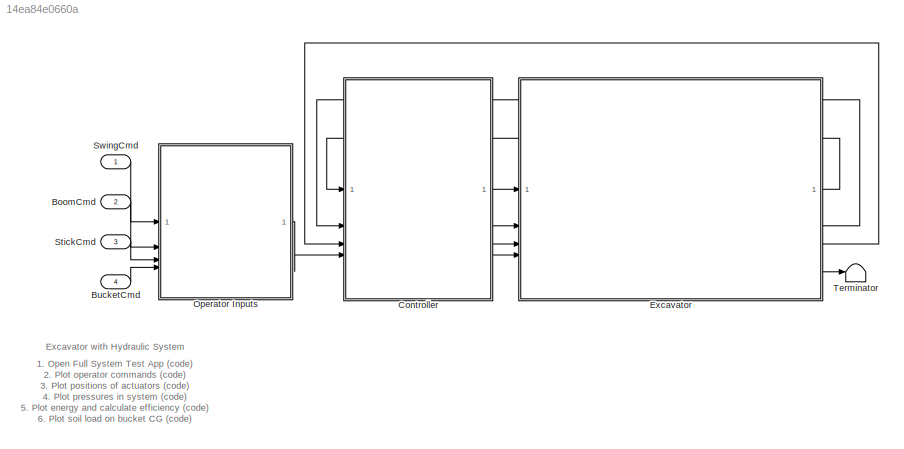
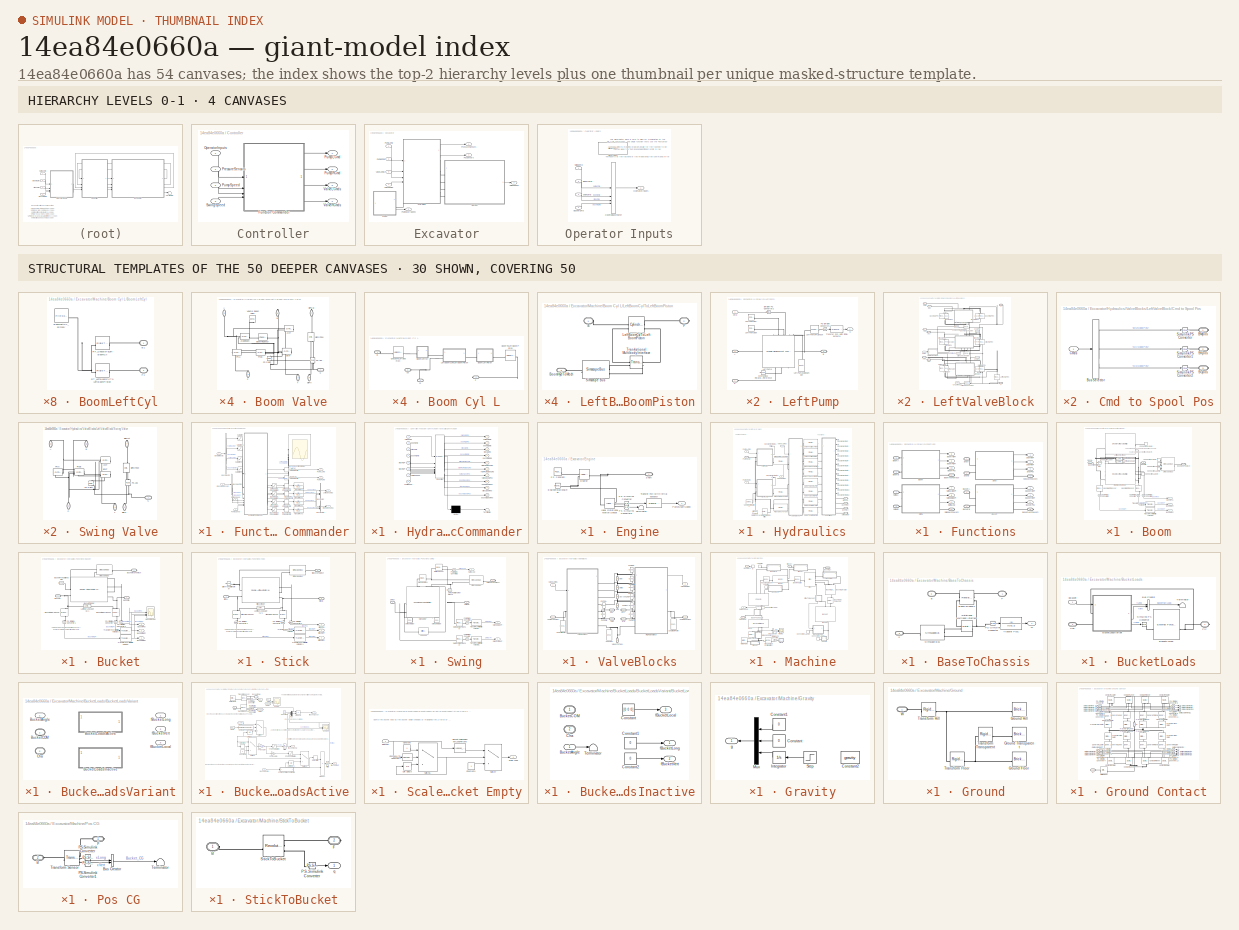
[diagram: thumbnail index - top-2 hierarchy levels (4 canvases) + 30 structural-template representatives of the remaining 50 canvases]
MODEL slx_14ea84e0660a
KIND model
CONFIG AbsTol = 1e-3
CONFIG MaxStep = Ts
CONFIG PostLoadFcn = set_param(bdroot,'IgnoredZcDiagnostic','none');\nExcavator_Test_Scenario_Select('loadedBucketDigCycle');
CONFIG SolverName = ode23t
CONFIG StopTime = stopTime
WORKSPACE source: external: MAT-File  (data not in archive)
BLOCK [Inport] BoomCmd
  Port = 2
BLOCK [Inport] BucketCmd
  Port = 4
BLOCK [SubSystem] Controller
BLOCK [SubSystem] Controller/Function Commander
BLOCK [RateLimiter] Controller/Function Commander/BoomValve CmdRateLimit
  FallingSlewLimit = valveCmdNegRateLimit
  RisingSlewLimit = valveCmdPosRateLimit
  SampleTimeMode = inherited
BLOCK [Saturate] Controller/Function Commander/BoomValve CmdSaturation
  LowerLimit = -5
  UpperLimit = 5
  ZeroCross = off
BLOCK [RateLimiter] Controller/Function Commander/BucketValve CmdRateLimit
  FallingSlewLimit = valveCmdNegRateLimit
  RisingSlewLimit = valveCmdPosRateLimit
  SampleTimeMode = inherited
BLOCK [Saturate] Controller/Function Commander/BucketValve CmdSaturation
  LowerLimit = -5
  UpperLimit = 5
  ZeroCross = off
BLOCK [BusCreator] Controller/Function Commander/Bus Creator
  DisplayOption = bar
  InheritFromInputs = on
  Inputs = 3
BLOCK [BusCreator] Controller/Function Commander/Bus Creator1
  DisplayOption = bar
  InheritFromInputs = on
  Inputs = 3
BLOCK [BusSelector] Controller/Function Commander/Bus Selector
  OutputSignals = swingCmd,boomCmd,stickCmd,bucketCmd
BLOCK [BusSelector] Controller/Function Commander/Bus Selector1
  OutputSignals = StickHEPr,StickREPr
BLOCK [Scope] Controller/Function Commander/FunctionQDmds
  ActiveDisplayYMaximum = 787.5
  ActiveDisplayYMinimum = -87.5
  DataLoggingVariableName = ScopeData1
  Floating = off
  GraphicalSettings = {"GraphicalSettings":{"LegacySettings":true,"Style":{"AxesScalingProperties":{"ScaleAxesLimitsAtStop":false},"Cursors":{"CursorChannels":"[1 1]","Enabled":"true","Horizontal":"false","LinkToWaveform":"true","LockSpacing":"false","SnapToData":"false","XLocation":"[2.495 4.51942013129104]","YLocation":"[NaN NaN]"},"Style":{"AxesColor":"[0 0 0]","ChannelNames":[""],"ColorOrder":"[1 0.909803921568627 ...<+922ch>
  MultipleDisplayCache = [{"MaxYLimMag":787.5,"MaxYLimReal":787.5,"MinYLimMag":0,"MinYLimReal":-87.5,"PlotAsMagnitudePhase":false,"ShowGrid":true,"ShowLegend":true,"Title":"%<SignalLabel>","YLabel":""}]
  NumInputPorts = 4
  ShowLegend = on
  WasSavedAsWebScope = on
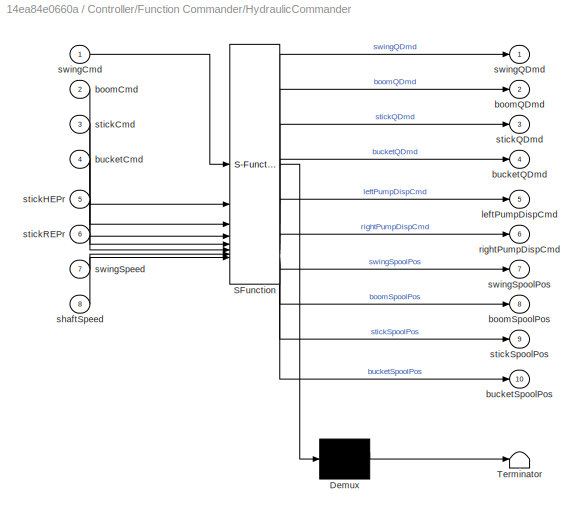
BLOCK [SubSystem] Controller/Function Commander/HydraulicCommander
  ErrorFcn = Stateflow.Translate.translate
  PermitHierarchicalResolution = ExplicitOnly
  SFBlockType = MATLAB Function
  TreatAsAtomicUnit = on
BLOCK [Demux] Controller/Function Commander/HydraulicCommander/ Demux 
  Outputs = 1
BLOCK [S-Function] Controller/Function Commander/HydraulicCommander/ SFunction 
  EnableBusSupport = off
  FunctionName = sf_sfun
  Parameters = boomUpMaxQ,bucketCloseMaxQ,bucketOpenMaxQ,maxPumpDisp,minPumpDisp,nominalShaftSpeed,stickInMaxQ,stickOutMaxQ,swingHighSpeedThreshold,swingMaxQ,swingSpeedQGain
  PortCounts = [8 11]
  SFcnIsStateOwnerBlock = off
  SFunctionDeploymentMode = off
  Tag = Stateflow S-Function 3
BLOCK [Terminator] Controller/Function Commander/HydraulicCommander/ Terminator 
BLOCK [Inport] Controller/Function Commander/HydraulicCommander/boomCmd
  Port = 2
BLOCK [Outport] Controller/Function Commander/HydraulicCommander/boomQDmd
  Port = 2
BLOCK [Outport] Controller/Function Commander/HydraulicCommander/boomSpoolPos
  Port = 8
BLOCK [Inport] Controller/Function Commander/HydraulicCommander/bucketCmd
  Port = 4
BLOCK [Outport] Controller/Function Commander/HydraulicCommander/bucketQDmd
  Port = 4
BLOCK [Outport] Controller/Function Commander/HydraulicCommander/bucketSpoolPos
  Port = 10
BLOCK [Outport] Controller/Function Commander/HydraulicCommander/leftPumpDispCmd
  Port = 5
BLOCK [Outport] Controller/Function Commander/HydraulicCommander/rightPumpDispCmd
  Port = 6
BLOCK [Inport] Controller/Function Commander/HydraulicCommander/shaftSpeed
  Port = 8
BLOCK [Inport] Controller/Function Commander/HydraulicCommander/stickCmd
  Port = 3
BLOCK [Inport] Controller/Function Commander/HydraulicCommander/stickHEPr
  Port = 5
BLOCK [Outport] Controller/Function Commander/HydraulicCommander/stickQDmd
  Port = 3
BLOCK [Inport] Controller/Function Commander/HydraulicCommander/stickREPr
  Port = 6
BLOCK [Outport] Controller/Function Commander/HydraulicCommander/stickSpoolPos
  Port = 9
BLOCK [Inport] Controller/Function Commander/HydraulicCommander/swingCmd
BLOCK [Outport] Controller/Function Commander/HydraulicCommander/swingQDmd
BLOCK [Inport] Controller/Function Commander/HydraulicCommander/swingSpeed
  Port = 7
BLOCK [Outport] Controller/Function Commander/HydraulicCommander/swingSpoolPos
  Port = 7
BLOCK [RateLimiter] Controller/Function Commander/LeftPump CmdRateLimit
  FallingSlewLimit = pumpCmdNegRateLimit
  RisingSlewLimit = pumpCmdPosRateLimit
  SampleTimeMode = inherited
BLOCK [Outport] Controller/Function Commander/LeftValveCmds
  Port = 3
BLOCK [Inport] Controller/Function Commander/OperatorInputs
BLOCK [Inport] Controller/Function Commander/PressureSensors
  Port = 2
BLOCK [Outport] Controller/Function Commander/PumpLCmd
BLOCK [Outport] Controller/Function Commander/PumpRCmd
  Port = 2
BLOCK [Inport] Controller/Function Commander/PumpSpeed
  Port = 3
BLOCK [RateLimiter] Controller/Function Commander/RightPump CmdRateLimit
  FallingSlewLimit = pumpCmdNegRateLimit
  RisingSlewLimit = pumpCmdPosRateLimit
  SampleTimeMode = inherited
BLOCK [Outport] Controller/Function Commander/RightValveCmds
  Port = 4
BLOCK [Saturate] Controller/Function Commander/Saturation
  LowerLimit = -1
  UpperLimit = 1
  ZeroCross = off
BLOCK [Saturate] Controller/Function Commander/Saturation1
  LowerLimit = -1
  UpperLimit = 1
  ZeroCross = off
BLOCK [Saturate] Controller/Function Commander/Saturation2
  LowerLimit = -1
  UpperLimit = 1
  ZeroCross = off
BLOCK [Saturate] Controller/Function Commander/Saturation3
  LowerLimit = -1
  UpperLimit = 1
  ZeroCross = off
BLOCK [RateLimiter] Controller/Function Commander/StickValve CmdRateLimit
  FallingSlewLimit = valveCmdNegRateLimit
  RisingSlewLimit = valveCmdPosRateLimit
  SampleTimeMode = inherited
BLOCK [Saturate] Controller/Function Commander/StickValve CmdSaturation
  LowerLimit = -5
  UpperLimit = 5
  ZeroCross = off
BLOCK [Inport] Controller/Function Commander/SwingSpeed
  Port = 4
BLOCK [RateLimiter] Controller/Function Commander/SwingValve CmdRateLimit
  FallingSlewLimit = valveCmdNegRateLimit
  RisingSlewLimit = valveCmdPosRateLimit
  SampleTimeMode = inherited
BLOCK [Saturate] Controller/Function Commander/SwingValve CmdSaturation
  LowerLimit = -5
  UpperLimit = 5
  ZeroCross = off
BLOCK [TransferFcn] Controller/Function Commander/Transfer Fcn
  Denominator = [0.1 1]
BLOCK [TransferFcn] Controller/Function Commander/Transfer Fcn1
  Denominator = [0.1 1]
BLOCK [TransferFcn] Controller/Function Commander/Transfer Fcn2
  Denominator = [0.1 1]
BLOCK [TransferFcn] Controller/Function Commander/Transfer Fcn3
  Denominator = [0.1 1]
BLOCK [Inport] Controller/OperatorInputs
  Port = 4
BLOCK [Inport] Controller/PressureSensors
BLOCK [Outport] Controller/PumpLCmd
BLOCK [Outport] Controller/PumpRCmd
  Port = 2
BLOCK [Inport] Controller/PumpSpeed
  Port = 2
BLOCK [Inport] Controller/SwingSpeed
  Port = 3
BLOCK [Outport] Controller/ValveLCmds
  Port = 3
BLOCK [Outport] Controller/ValveRCmds
  Port = 4
BLOCK [SubSystem] Excavator
BLOCK [SubSystem] Excavator/Engine
  PortSchema = {"entries":[{"content":{"sides":[{"content":{"connectorIds":[]},"type":"ConnectorPlacement.EquallySpacedRectSide","uuid":"32d181a9-9647-459e-8a6e-f34844cbb584"},{"content":{"connectorIds":["RConn1","Out1"],"side":"RIGHT"},"type":"ConnectorPlacement.EquallySpacedRectSide","uuid":"3f25e2ea-f411-44b7-ab9d-c86c977187b2"},{"content":{"connectorIds":[],"side":"TOP"},"type":"ConnectorPlacement.EquallySpa...<+244ch>
BLOCK [Reference] Excavator/Engine/Engine  REF=fl_lib/Mechanical/Mechanical Sources/Ideal Angular
Velocity Source
  SourceBlock = fl_lib/Mechanical/Mechanical Sources/Ideal Angular\nVelocity Source
  SourceType = Ideal Angular\nVelocity Source
BLOCK [Reference] Excavator/Engine/EngineRotationalRef  REF=fl_lib/Mechanical/Rotational Elements/Mechanical
Rotational Reference
  NameLocation = left
  SourceBlock = fl_lib/Mechanical/Rotational Elements/Mechanical\nRotational Reference
  SourceType = Mechanical\nRotational Reference
BLOCK [Reference] Excavator/Engine/Ideal Rotational Motion Sensor  REF=fl_lib/Mechanical/Mechanical Sensors/Ideal Rotational
Motion Sensor
  SourceBlock = fl_lib/Mechanical/Mechanical Sensors/Ideal Rotational\nMotion Sensor
  SourceType = Ideal Rotational\nMotion Sensor
BLOCK [Reference] Excavator/Engine/PS Constant  REF=fl_lib/Physical Signals/Sources/PS Constant
  SourceBlock = fl_lib/Physical Signals/Sources/PS Constant
  SourceType = PS Constant
BLOCK [Reference] Excavator/Engine/PS-Simulink Converter  REF=nesl_utility/PS-Simulink
Converter
  SourceBlock = nesl_utility/PS-Simulink\nConverter
  SourceType = PS-Simulink\nConverter
BLOCK [Reference] Excavator/Engine/PS-Simulink Converter3  REF=nesl_utility/PS-Simulink
Converter
  SourceBlock = nesl_utility/PS-Simulink\nConverter
  SourceType = PS-Simulink\nConverter
BLOCK [Outport] Excavator/Engine/PumpShaftSpeed
BLOCK [PMIOPort] Excavator/Engine/Shaft
  Side = Right
BLOCK [Terminator] Excavator/Engine/Terminator
BLOCK [Reference] Excavator/Engine/Transfer Fcn (with initial outputs)  REF=simulink_extras/Additional
Linear/Transfer Fcn
(with initial outputs)
  SourceBlock = simulink_extras/Additional\nLinear/Transfer Fcn\n(with initial outputs)
  SourceType = Transfer Function with Initial Outputs
BLOCK [SubSystem] Excavator/Hydraulics
BLOCK [PMIOPort] Excavator/Hydraulics/BoomCyl
  Port = 3
  Side = Right
BLOCK [PMIOPort] Excavator/Hydraulics/BucketCyl
  Port = 2
  Side = Right
BLOCK [Outport] Excavator/Hydraulics/Bus Element Out
BLOCK [Outport] Excavator/Hydraulics/Bus Element Out1
BLOCK [Outport] Excavator/Hydraulics/Bus Element Out10
  Port = 2
BLOCK [Outport] Excavator/Hydraulics/Bus Element Out11
BLOCK [Outport] Excavator/Hydraulics/Bus Element Out12
  Port = 2
BLOCK [Outport] Excavator/Hydraulics/Bus Element Out13
BLOCK [Outport] Excavator/Hydraulics/Bus Element Out2
BLOCK [Outport] Excavator/Hydraulics/Bus Element Out3
BLOCK [Outport] Excavator/Hydraulics/Bus Element Out4
BLOCK [Outport] Excavator/Hydraulics/Bus Element Out5
BLOCK [Outport] Excavator/Hydraulics/Bus Element Out6
BLOCK [Outport] Excavator/Hydraulics/Bus Element Out7
BLOCK [Outport] Excavator/Hydraulics/Bus Element Out8
  Port = 2
BLOCK [Outport] Excavator/Hydraulics/Bus Element Out9
  Port = 2
BLOCK [SubSystem] Excavator/Hydraulics/Functions
BLOCK [SubSystem] Excavator/Hydraulics/Functions/Boom
BLOCK [PMIOPort] Excavator/Hydraulics/Functions/Boom/BoomA
  Side = Left
BLOCK [PMIOPort] Excavator/Hydraulics/Functions/Boom/BoomB
  Port = 2
  Side = Left
BLOCK [Outport] Excavator/Hydraulics/Functions/Boom/BoomHEPr
BLOCK [Reference] Excavator/Hydraulics/Functions/Boom/BoomHEPrSensor  REF=fl_lib/Isothermal Liquid/Sensors/Pressure Sensor (IL)
  NameLocation = right
  SourceBlock = fl_lib/Isothermal Liquid/Sensors/Pressure Sensor (IL)
  SourceType = Pressure Sensor (IL)
BLOCK [PMIOPort] Excavator/Hydraulics/Functions/Boom/BoomHydToMech
  Port = 3
  Side = Right
BLOCK [Outport] Excavator/Hydraulics/Functions/Boom/BoomPos
  Port = 3
BLOCK [Outport] Excavator/Hydraulics/Functions/Boom/BoomREPr
  Port = 2
BLOCK [Reference] Excavator/Hydraulics/Functions/Boom/BoomREPrSensor  REF=fl_lib/Isothermal Liquid/Sensors/Pressure Sensor (IL)
  NameLocation = left
  SourceBlock = fl_lib/Isothermal Liquid/Sensors/Pressure Sensor (IL)
  SourceType = Pressure Sensor (IL)
BLOCK [Reference] Excavator/Hydraulics/Functions/Boom/BoomTranslationalRef  REF=fl_lib/Mechanical/Translational
Elements/Mechanical
Translational
Reference
  SourceBlock = fl_lib/Mechanical/Translational\nElements/Mechanical\nTranslational\nReference
  SourceType = Mechanical\nTranslational\nReference
BLOCK [ConnectionLabel] Excavator/Hydraulics/Functions/Boom/Connection Label
  Label = C
  NameLocation = top
BLOCK [ConnectionLabel] Excavator/Hydraulics/Functions/Boom/Connection Label1
  Label = C
  NameLocation = top
BLOCK [ConnectionLabel] Excavator/Hydraulics/Functions/Boom/Connection Label2
  Label = RLeft
BLOCK [ConnectionLabel] Excavator/Hydraulics/Functions/Boom/Connection Label3
  Label = RLeft
BLOCK [ConnectionLabel] Excavator/Hydraulics/Functions/Boom/Connection Label4
  Label = RRight
BLOCK [ConnectionLabel] Excavator/Hydraulics/Functions/Boom/Connection Label5
  Label = RRight
BLOCK [Reference] Excavator/Hydraulics/Functions/Boom/Laminar Leakage (IL)  REF=fl_lib/Isothermal Liquid/Elements/Laminar Leakage (IL)
  Commented = on
  SourceBlock = fl_lib/Isothermal Liquid/Elements/Laminar Leakage (IL)
  SourceType = Laminar Leakage (IL)
BLOCK [Reference] Excavator/Hydraulics/Functions/Boom/Laminar Leakage (IL)1  REF=fl_lib/Isothermal Liquid/Elements/Laminar Leakage (IL)
  Commented = on
  SourceBlock = fl_lib/Isothermal Liquid/Elements/Laminar Leakage (IL)
  SourceType = Laminar Leakage (IL)
BLOCK [Reference] Excavator/Hydraulics/Functions/Boom/LeftBoomCylinder  REF=SimscapeFluids_lib/Isothermal Liquid/Actuators/Double-Acting
Actuator (IL)
  SourceBlock = SimscapeFluids_lib/Isothermal Liquid/Actuators/Double-Acting\nActuator (IL)
  SourceType = Double-Acting\nActuator (IL)
BLOCK [Reference] Excavator/Hydraulics/Functions/Boom/PS-Simulink Converter  REF=nesl_utility/PS-Simulink
Converter
  NameLocation = left
  SourceBlock = nesl_utility/PS-Simulink\nConverter
  SourceType = PS-Simulink\nConverter
BLOCK [Reference] Excavator/Hydraulics/Functions/Boom/PS-Simulink Converter1  REF=nesl_utility/PS-Simulink
Converter
  NameLocation = left
  SourceBlock = nesl_utility/PS-Simulink\nConverter
  SourceType = PS-Simulink\nConverter
BLOCK [Reference] Excavator/Hydraulics/Functions/Boom/PS-Simulink Converter2  REF=nesl_utility/PS-Simulink
Converter
  NameLocation = left
  SourceBlock = nesl_utility/PS-Simulink\nConverter
  SourceType = PS-Simulink\nConverter
BLOCK [Reference] Excavator/Hydraulics/Functions/Boom/RightBoomCylinder  REF=SimscapeFluids_lib/Isothermal Liquid/Actuators/Double-Acting
Actuator (IL)
  SourceBlock = SimscapeFluids_lib/Isothermal Liquid/Actuators/Double-Acting\nActuator (IL)
  SourceType = Double-Acting\nActuator (IL)
BLOCK [SimscapeBus] Excavator/Hydraulics/Functions/Boom/Simscape Bus
  HierarchyStrings = BoomC;LeftBoomR;RightBoomR
BLOCK [Reference] Excavator/Hydraulics/Functions/Boom/Transfer Fcn (with initial outputs)  REF=simulink_extras/Additional
Linear/Transfer Fcn
(with initial outputs)
  SourceBlock = simulink_extras/Additional\nLinear/Transfer Fcn\n(with initial outputs)
  SourceType = Transfer Function with Initial Outputs
BLOCK [Reference] Excavator/Hydraulics/Functions/Boom/Transfer Fcn (with initial outputs)1  REF=simulink_extras/Additional
Linear/Transfer Fcn
(with initial outputs)
  SourceBlock = simulink_extras/Additional\nLinear/Transfer Fcn\n(with initial outputs)
  SourceType = Transfer Function with Initial Outputs
BLOCK [PMIOPort] Excavator/Hydraulics/Functions/BoomA
  Port = 5
  Side = Left
BLOCK [PMIOPort] Excavator/Hydraulics/Functions/BoomB
  Port = 6
  Side = Left
BLOCK [Outport] Excavator/Hydraulics/Functions/BoomHEPr
  Port = 5
BLOCK [PMIOPort] Excavator/Hydraulics/Functions/BoomHydToMech
  Port = 11
  Side = Right
BLOCK [Outport] Excavator/Hydraulics/Functions/BoomPos
  Port = 10
BLOCK [Outport] Excavator/Hydraulics/Functions/BoomREPr
  Port = 6
BLOCK [SubSystem] Excavator/Hydraulics/Functions/Bucket
BLOCK [PMIOPort] Excavator/Hydraulics/Functions/Bucket/BucketA
  Side = Left
BLOCK [PMIOPort] Excavator/Hydraulics/Functions/Bucket/BucketB
  Port = 2
  Side = Left
BLOCK [Reference] Excavator/Hydraulics/Functions/Bucket/BucketCylinder  REF=SimscapeFluids_lib/Isothermal Liquid/Actuators/Double-Acting
Actuator (IL)
  SourceBlock = SimscapeFluids_lib/Isothermal Liquid/Actuators/Double-Acting\nActuator (IL)
  SourceType = Double-Acting\nActuator (IL)
BLOCK [Outport] Excavator/Hydraulics/Functions/Bucket/BucketHEPr
BLOCK [Reference] Excavator/Hydraulics/Functions/Bucket/BucketHEPrSensor  REF=fl_lib/Isothermal Liquid/Sensors/Pressure Sensor (IL)
  NameLocation = right
  SourceBlock = fl_lib/Isothermal Liquid/Sensors/Pressure Sensor (IL)
  SourceType = Pressure Sensor (IL)
BLOCK [PMIOPort] Excavator/Hydraulics/Functions/Bucket/BucketHydToMech
  NameLocation = top
  Port = 3
  Side = Right
BLOCK [Outport] Excavator/Hydraulics/Functions/Bucket/BucketPos
  Port = 3
BLOCK [Outport] Excavator/Hydraulics/Functions/Bucket/BucketREPr
  Port = 2
BLOCK [Reference] Excavator/Hydraulics/Functions/Bucket/BucketREPrSensor  REF=fl_lib/Isothermal Liquid/Sensors/Pressure Sensor (IL)
  NameLocation = left
  SourceBlock = fl_lib/Isothermal Liquid/Sensors/Pressure Sensor (IL)
  SourceType = Pressure Sensor (IL)
BLOCK [Scope] Excavator/Hydraulics/Functions/Bucket/BucketScope
  ActiveDisplayYMaximum = 1124.28313
  ActiveDisplayYMinimum = -87.77863
  DataLoggingVariableName = ScopeData2
  Floating = off
  GraphicalSettings = {"AxesScalingProperties":{"AlignXAxis":"Center","AlignYAxis":"Center","AutoScaleXAxisLimits":false,"AxesScaling":"Manual","AxesScalingNumUpdates":10,"ExpandOnly":true,"ScaleAxesLimitsAtStop":false,"XAxisDataRange":100,"YAxisDataRange":80},"DisplayProperties":{"ColorOrder":["auto","auto","auto","auto","auto","auto","auto","auto","auto","auto","auto","auto","auto","auto","auto","auto","auto","auto",...<+2475ch>
  LayoutDimensionsString = [2 1]
  MultipleDisplayCache = [{"MaxYLimMag":1124.28313,"MaxYLimReal":1124.28313,"MinYLimMag":0,"MinYLimReal":-87.77863,"PlotAsMagnitudePhase":false,"ShowGrid":true,"ShowLegend":true,"Title":"%<SignalLabel>","YLabel":""},{"MaxYLimMag":10,"MaxYLimReal":224.69711,"MinYLimMag":0,"MinYLimReal":-26.02158,"PlotAsMagnitudePhase":false,"ShowGrid":true,"ShowLegend":true,"Title":"%<SignalLabel>","YLabel":""}]
  NumInputPorts = 3
  ScopeFrameLocation = window
  ShowLegend = on
  WasSavedAsWebScope = on
  WindowPosition = [680.000000,330.000000,560.000000,420.000000,]
BLOCK [Reference] Excavator/Hydraulics/Functions/Bucket/BucketTranslationalRef  REF=fl_lib/Mechanical/Translational
Elements/Mechanical
Translational
Reference
  SourceBlock = fl_lib/Mechanical/Translational\nElements/Mechanical\nTranslational\nReference
  SourceType = Mechanical\nTranslational\nReference
BLOCK [Reference] Excavator/Hydraulics/Functions/Bucket/Laminar Leakage (IL)1  REF=fl_lib/Isothermal Liquid/Elements/Laminar Leakage (IL)
  Commented = on
  SourceBlock = fl_lib/Isothermal Liquid/Elements/Laminar Leakage (IL)
  SourceType = Laminar Leakage (IL)
BLOCK [Reference] Excavator/Hydraulics/Functions/Bucket/PS-Simulink Converter  REF=nesl_utility/PS-Simulink
Converter
  NameLocation = left
  SourceBlock = nesl_utility/PS-Simulink\nConverter
  SourceType = PS-Simulink\nConverter
BLOCK [Reference] Excavator/Hydraulics/Functions/Bucket/PS-Simulink Converter1  REF=nesl_utility/PS-Simulink
Converter
  NameLocation = left
  SourceBlock = nesl_utility/PS-Simulink\nConverter
  SourceType = PS-Simulink\nConverter
BLOCK [Reference] Excavator/Hydraulics/Functions/Bucket/PS-Simulink Converter2  REF=nesl_utility/PS-Simulink
Converter
  NameLocation = left
  SourceBlock = nesl_utility/PS-Simulink\nConverter
  SourceType = PS-Simulink\nConverter
BLOCK [SimscapeBus] Excavator/Hydraulics/Functions/Bucket/Simscape Bus
  HierarchyStrings = BucketC;BucketR
BLOCK [Reference] Excavator/Hydraulics/Functions/Bucket/Transfer Fcn (with initial outputs)  REF=simulink_extras/Additional
Linear/Transfer Fcn
(with initial outputs)
  SourceBlock = simulink_extras/Additional\nLinear/Transfer Fcn\n(with initial outputs)
  SourceType = Transfer Function with Initial Outputs
BLOCK [Reference] Excavator/Hydraulics/Functions/Bucket/Transfer Fcn (with initial outputs)1  REF=simulink_extras/Additional
Linear/Transfer Fcn
(with initial outputs)
  SourceBlock = simulink_extras/Additional\nLinear/Transfer Fcn\n(with initial outputs)
  SourceType = Transfer Function with Initial Outputs
BLOCK [PMIOPort] Excavator/Hydraulics/Functions/BucketA
  Port = 3
  Side = Left
BLOCK [PMIOPort] Excavator/Hydraulics/Functions/BucketB
  Port = 4
  Side = Left
BLOCK [Outport] Excavator/Hydraulics/Functions/BucketHEPr
  Port = 3
BLOCK [PMIOPort] Excavator/Hydraulics/Functions/BucketHydToMech
  Port = 10
  Side = Right
BLOCK [Outport] Excavator/Hydraulics/Functions/BucketPos
  Port = 11
BLOCK [Outport] Excavator/Hydraulics/Functions/BucketREPr
  Port = 4
BLOCK [SubSystem] Excavator/Hydraulics/Functions/Stick
BLOCK [Reference] Excavator/Hydraulics/Functions/Stick/Laminar Leakage (IL)1  REF=fl_lib/Isothermal Liquid/Elements/Laminar Leakage (IL)
  Commented = on
  SourceBlock = fl_lib/Isothermal Liquid/Elements/Laminar Leakage (IL)
  SourceType = Laminar Leakage (IL)
BLOCK [Reference] Excavator/Hydraulics/Functions/Stick/PS-Simulink Converter  REF=nesl_utility/PS-Simulink
Converter
  NameLocation = left
  SourceBlock = nesl_utility/PS-Simulink\nConverter
  SourceType = PS-Simulink\nConverter
BLOCK [Reference] Excavator/Hydraulics/Functions/Stick/PS-Simulink Converter1  REF=nesl_utility/PS-Simulink
Converter
  NameLocation = left
  SourceBlock = nesl_utility/PS-Simulink\nConverter
  SourceType = PS-Simulink\nConverter
BLOCK [Reference] Excavator/Hydraulics/Functions/Stick/PS-Simulink Converter2  REF=nesl_utility/PS-Simulink
Converter
  NameLocation = left
  SourceBlock = nesl_utility/PS-Simulink\nConverter
  SourceType = PS-Simulink\nConverter
BLOCK [SimscapeBus] Excavator/Hydraulics/Functions/Stick/Simscape Bus
  HierarchyStrings = StickC;StickR
BLOCK [PMIOPort] Excavator/Hydraulics/Functions/Stick/StickA
  Side = Left
BLOCK [PMIOPort] Excavator/Hydraulics/Functions/Stick/StickB
  Port = 2
  Side = Left
BLOCK [Reference] Excavator/Hydraulics/Functions/Stick/StickCylinder  REF=SimscapeFluids_lib/Isothermal Liquid/Actuators/Double-Acting
Actuator (IL)
  SourceBlock = SimscapeFluids_lib/Isothermal Liquid/Actuators/Double-Acting\nActuator (IL)
  SourceType = Double-Acting\nActuator (IL)
BLOCK [Outport] Excavator/Hydraulics/Functions/Stick/StickHEPr
BLOCK [Reference] Excavator/Hydraulics/Functions/Stick/StickHEPrSensor  REF=fl_lib/Isothermal Liquid/Sensors/Pressure Sensor (IL)
  NameLocation = right
  SourceBlock = fl_lib/Isothermal Liquid/Sensors/Pressure Sensor (IL)
  SourceType = Pressure Sensor (IL)
BLOCK [PMIOPort] Excavator/Hydraulics/Functions/Stick/StickHydToMech
  Port = 3
  Side = Right
BLOCK [Outport] Excavator/Hydraulics/Functions/Stick/StickPos
  Port = 3
BLOCK [Outport] Excavator/Hydraulics/Functions/Stick/StickREPr
  Port = 2
BLOCK [Reference] Excavator/Hydraulics/Functions/Stick/StickREPrSensor  REF=fl_lib/Isothermal Liquid/Sensors/Pressure Sensor (IL)
  NameLocation = left
  SourceBlock = fl_lib/Isothermal Liquid/Sensors/Pressure Sensor (IL)
  SourceType = Pressure Sensor (IL)
BLOCK [Reference] Excavator/Hydraulics/Functions/Stick/StickTranslationalRef  REF=fl_lib/Mechanical/Translational
Elements/Mechanical
Translational
Reference
  SourceBlock = fl_lib/Mechanical/Translational\nElements/Mechanical\nTranslational\nReference
  SourceType = Mechanical\nTranslational\nReference
BLOCK [Reference] Excavator/Hydraulics/Functions/Stick/Transfer Fcn (with initial outputs)  REF=simulink_extras/Additional
Linear/Transfer Fcn
(with initial outputs)
  SourceBlock = simulink_extras/Additional\nLinear/Transfer Fcn\n(with initial outputs)
  SourceType = Transfer Function with Initial Outputs
BLOCK [Reference] Excavator/Hydraulics/Functions/Stick/Transfer Fcn (with initial outputs)1  REF=simulink_extras/Additional
Linear/Transfer Fcn
(with initial outputs)
  SourceBlock = simulink_extras/Additional\nLinear/Transfer Fcn\n(with initial outputs)
  SourceType = Transfer Function with Initial Outputs
BLOCK [PMIOPort] Excavator/Hydraulics/Functions/StickA
  Side = Left
BLOCK [PMIOPort] Excavator/Hydraulics/Functions/StickB
  Port = 2
  Side = Left
BLOCK [Outport] Excavator/Hydraulics/Functions/StickHEPr
BLOCK [PMIOPort] Excavator/Hydraulics/Functions/StickHydToMech
  Port = 9
  Side = Right
BLOCK [Outport] Excavator/Hydraulics/Functions/StickPos
  Port = 9
BLOCK [Outport] Excavator/Hydraulics/Functions/StickREPr
  Port = 2
BLOCK [SubSystem] Excavator/Hydraulics/Functions/Swing
BLOCK [Reference] Excavator/Hydraulics/Functions/Swing/Leakage  REF=SimscapeFluids_lib/Isothermal Liquid/Valves & Orifices/Orifices/Orifice (IL)
  SourceBlock = SimscapeFluids_lib/Isothermal Liquid/Valves & Orifices/Orifices/Orifice (IL)
  SourceType = Orifice (IL)
BLOCK [Reference] Excavator/Hydraulics/Functions/Swing/Motion Sensor  REF=fl_lib/Mechanical/Mechanical Sensors/Ideal Rotational
Motion Sensor
  SourceBlock = fl_lib/Mechanical/Mechanical Sensors/Ideal Rotational\nMotion Sensor
  SourceType = Ideal Rotational\nMotion Sensor
BLOCK [Reference] Excavator/Hydraulics/Functions/Swing/PS-Simulink Converter  REF=nesl_utility/PS-Simulink
Converter
  SourceBlock = nesl_utility/PS-Simulink\nConverter
  SourceType = PS-Simulink\nConverter
BLOCK [Reference] Excavator/Hydraulics/Functions/Swing/PS-Simulink Converter1  REF=nesl_utility/PS-Simulink
Converter
  SourceBlock = nesl_utility/PS-Simulink\nConverter
  SourceType = PS-Simulink\nConverter
BLOCK [Reference] Excavator/Hydraulics/Functions/Swing/PS-Simulink Converter2  REF=nesl_utility/PS-Simulink
Converter
  SourceBlock = nesl_utility/PS-Simulink\nConverter
  SourceType = PS-Simulink\nConverter
BLOCK [SimscapeBus] Excavator/Hydraulics/Functions/Swing/Simscape Bus
  HierarchyStrings = SwingR;SwingC
BLOCK [PMIOPort] Excavator/Hydraulics/Functions/Swing/SwingA
  Side = Left
BLOCK [Outport] Excavator/Hydraulics/Functions/Swing/SwingASidePr
BLOCK [Reference] Excavator/Hydraulics/Functions/Swing/SwingASidePrSensor  REF=fl_lib/Isothermal Liquid/Sensors/Pressure Sensor (IL)
  SourceBlock = fl_lib/Isothermal Liquid/Sensors/Pressure Sensor (IL)
  SourceType = Pressure Sensor (IL)
BLOCK [Outport] Excavator/Hydraulics/Functions/Swing/SwingAng
  Port = 3
BLOCK [PMIOPort] Excavator/Hydraulics/Functions/Swing/SwingB
  NameLocation = top
  Port = 2
  Side = Left
BLOCK [Outport] Excavator/Hydraulics/Functions/Swing/SwingBSidePr
  Port = 2
BLOCK [Reference] Excavator/Hydraulics/Functions/Swing/SwingBSidePrSensor  REF=fl_lib/Isothermal Liquid/Sensors/Pressure Sensor (IL)
  SourceBlock = fl_lib/Isothermal Liquid/Sensors/Pressure Sensor (IL)
  SourceType = Pressure Sensor (IL)
BLOCK [Reference] Excavator/Hydraulics/Functions/Swing/SwingGearBox  REF=fl_lib/Mechanical/Mechanisms/Gear Box
  SourceBlock = fl_lib/Mechanical/Mechanisms/Gear Box
  SourceType = Gear Box
BLOCK [PMIOPort] Excavator/Hydraulics/Functions/Swing/SwingHydToMech
  Port = 3
  Side = Right
BLOCK [Reference] Excavator/Hydraulics/Functions/Swing/SwingMotor  REF=SimscapeFluids_lib/Isothermal Liquid/Pumps & Motors/Fixed-Displacement
Motor (IL)
  SourceBlock = SimscapeFluids_lib/Isothermal Liquid/Pumps & Motors/Fixed-Displacement\nMotor (IL)
  SourceType = Fixed-Displacement\nMotor (IL)
BLOCK [Reference] Excavator/Hydraulics/Functions/Swing/SwingMotorEM  REF=fl_lib/Physical Signals/Sources/PS Constant
  SourceBlock = fl_lib/Physical Signals/Sources/PS Constant
  SourceType = PS Constant
BLOCK [Reference] Excavator/Hydraulics/Functions/Swing/SwingMotorEV  REF=fl_lib/Physical Signals/Sources/PS Constant
  SourceBlock = fl_lib/Physical Signals/Sources/PS Constant
  SourceType = PS Constant
BLOCK [Reference] Excavator/Hydraulics/Functions/Swing/SwingRotationalReference  REF=fl_lib/Mechanical/Rotational Elements/Mechanical
Rotational Reference
  NameLocation = right
  SourceBlock = fl_lib/Mechanical/Rotational Elements/Mechanical\nRotational Reference
  SourceType = Mechanical\nRotational Reference
BLOCK [Reference] Excavator/Hydraulics/Functions/Swing/Transfer Fcn (with initial outputs)  REF=simulink_extras/Additional
Linear/Transfer Fcn
(with initial outputs)
  SourceBlock = simulink_extras/Additional\nLinear/Transfer Fcn\n(with initial outputs)
  SourceType = Transfer Function with Initial Outputs
BLOCK [Reference] Excavator/Hydraulics/Functions/Swing/Transfer Fcn (with initial outputs)1  REF=simulink_extras/Additional
Linear/Transfer Fcn
(with initial outputs)
  SourceBlock = simulink_extras/Additional\nLinear/Transfer Fcn\n(with initial outputs)
  SourceType = Transfer Function with Initial Outputs
BLOCK [PMIOPort] Excavator/Hydraulics/Functions/SwingA
  Port = 7
  Side = Left
BLOCK [Outport] Excavator/Hydraulics/Functions/SwingASidePr
  Port = 7
BLOCK [Outport] Excavator/Hydraulics/Functions/SwingAng
  Port = 12
BLOCK [PMIOPort] Excavator/Hydraulics/Functions/SwingB
  Port = 8
  Side = Left
BLOCK [Outport] Excavator/Hydraulics/Functions/SwingBSidePr
  Port = 8
BLOCK [PMIOPort] Excavator/Hydraulics/Functions/SwingHydToMech
  Port = 12
  Side = Right
BLOCK [Reference] Excavator/Hydraulics/Hydraulic Reference  REF=fl_lib/Isothermal Liquid/Elements/Reservoir (IL)
  NameLocation = left
  SourceBlock = fl_lib/Isothermal Liquid/Elements/Reservoir (IL)
  SourceType = Reservoir (IL)
BLOCK [Reference] Excavator/Hydraulics/HydraulicFluidProperties  REF=fl_lib/Isothermal Liquid/Utilities/Isothermal Liquid
Properties (IL)
  SourceBlock = fl_lib/Isothermal Liquid/Utilities/Isothermal Liquid\nProperties (IL)
  SourceType = Isothermal Liquid\nProperties (IL)
BLOCK [SubSystem] Excavator/Hydraulics/LeftPump
BLOCK [PMIOPort] Excavator/Hydraulics/LeftPump/A
  Port = 2
  Side = Left
BLOCK [PMIOPort] Excavator/Hydraulics/LeftPump/B
  Port = 3
  Side = Right
BLOCK [Inport] Excavator/Hydraulics/LeftPump/Cmd
BLOCK [Reference] Excavator/Hydraulics/LeftPump/LeftPump  REF=SimscapeFluids_lib/Isothermal Liquid/Pumps & Motors/Variable-Displacement
Pump (IL)
  SourceBlock = SimscapeFluids_lib/Isothermal Liquid/Pumps & Motors/Variable-Displacement\nPump (IL)
  SourceType = Variable-Displacement\nPump (IL)
BLOCK [Reference] Excavator/Hydraulics/LeftPump/LeftPumpEM  REF=fl_lib/Physical Signals/Sources/PS Constant
  SourceBlock = fl_lib/Physical Signals/Sources/PS Constant
  SourceType = PS Constant
BLOCK [Reference] Excavator/Hydraulics/LeftPump/LeftPumpEV  REF=fl_lib/Physical Signals/Sources/PS Constant
  SourceBlock = fl_lib/Physical Signals/Sources/PS Constant
  SourceType = PS Constant
BLOCK [Reference] Excavator/Hydraulics/LeftPump/LeftPumpPrSensor  REF=fl_lib/Isothermal Liquid/Sensors/Pressure Sensor (IL)
  SourceBlock = fl_lib/Isothermal Liquid/Sensors/Pressure Sensor (IL)
  SourceType = Pressure Sensor (IL)
BLOCK [Reference] Excavator/Hydraulics/LeftPump/LeftPumpVolChamber  REF=fl_lib/Isothermal Liquid/Elements/Constant Volume
Chamber (IL)
  NameLocation = right
  SourceBlock = fl_lib/Isothermal Liquid/Elements/Constant Volume\nChamber (IL)
  SourceType = Constant Volume\nChamber (IL)
BLOCK [Reference] Excavator/Hydraulics/LeftPump/Mechanical Rotational Reference  REF=fl_lib/Mechanical/Rotational Elements/Mechanical
Rotational Reference
  SourceBlock = fl_lib/Mechanical/Rotational Elements/Mechanical\nRotational Reference
  SourceType = Mechanical\nRotational Reference
BLOCK [Reference] Excavator/Hydraulics/LeftPump/PS-Simulink Converter1  REF=nesl_utility/PS-Simulink
Converter
  SourceBlock = nesl_utility/PS-Simulink\nConverter
  SourceType = PS-Simulink\nConverter
BLOCK [PMIOPort] Excavator/Hydraulics/LeftPump/R
  Side = Left
BLOCK [Reference] Excavator/Hydraulics/LeftPump/Simulink-PS Converter2  REF=nesl_utility/Simulink-PS
Converter
  SourceBlock = nesl_utility/Simulink-PS\nConverter
  SourceType = Simulink-PS\nConverter
BLOCK [Reference] Excavator/Hydraulics/LeftPump/Transfer Fcn (with initial outputs)  REF=simulink_extras/Additional
Linear/Transfer Fcn
(with initial outputs)
  SourceBlock = simulink_extras/Additional\nLinear/Transfer Fcn\n(with initial outputs)
  SourceType = Transfer Function with Initial Outputs
BLOCK [Outport] Excavator/Hydraulics/LeftPump/p
BLOCK [Reference] Excavator/Hydraulics/PipePumpLToValve  REF=fl_lib/Isothermal Liquid/Elements/Pipe (IL)
  NameLocation = top
  SourceBlock = fl_lib/Isothermal Liquid/Elements/Pipe (IL)
  SourceType = Pipe (IL)
BLOCK [Reference] Excavator/Hydraulics/PipePumpRToValve  REF=fl_lib/Isothermal Liquid/Elements/Pipe (IL)
  SourceBlock = fl_lib/Isothermal Liquid/Elements/Pipe (IL)
  SourceType = Pipe (IL)
BLOCK [Reference] Excavator/Hydraulics/PipeValvesToTank  REF=fl_lib/Isothermal Liquid/Elements/Pipe (IL)
  SourceBlock = fl_lib/Isothermal Liquid/Elements/Pipe (IL)
  SourceType = Pipe (IL)
BLOCK [Inport] Excavator/Hydraulics/PumpLCmd
BLOCK [Inport] Excavator/Hydraulics/PumpRCmd
  Port = 2
BLOCK [PMIOPort] Excavator/Hydraulics/PumpShaft
  Port = 5
  Side = Left
BLOCK [SubSystem] Excavator/Hydraulics/RightPump
BLOCK [PMIOPort] Excavator/Hydraulics/RightPump/A
  Port = 2
  Side = Left
BLOCK [PMIOPort] Excavator/Hydraulics/RightPump/B
  Port = 3
  Side = Right
BLOCK [Inport] Excavator/Hydraulics/RightPump/Cmd
BLOCK [Reference] Excavator/Hydraulics/RightPump/Mechanical Rotational Reference  REF=fl_lib/Mechanical/Rotational Elements/Mechanical
Rotational Reference
  SourceBlock = fl_lib/Mechanical/Rotational Elements/Mechanical\nRotational Reference
  SourceType = Mechanical\nRotational Reference
BLOCK [Reference] Excavator/Hydraulics/RightPump/PS-Simulink Converter2  REF=nesl_utility/PS-Simulink
Converter
  SourceBlock = nesl_utility/PS-Simulink\nConverter
  SourceType = PS-Simulink\nConverter
BLOCK [PMIOPort] Excavator/Hydraulics/RightPump/R
  Side = Left
BLOCK [Reference] Excavator/Hydraulics/RightPump/RightPump  REF=SimscapeFluids_lib/Isothermal Liquid/Pumps & Motors/Variable-Displacement
Pump (IL)
  SourceBlock = SimscapeFluids_lib/Isothermal Liquid/Pumps & Motors/Variable-Displacement\nPump (IL)
  SourceType = Variable-Displacement\nPump (IL)
BLOCK [Reference] Excavator/Hydraulics/RightPump/RightPumpEM  REF=fl_lib/Physical Signals/Sources/PS Constant
  SourceBlock = fl_lib/Physical Signals/Sources/PS Constant
  SourceType = PS Constant
BLOCK [Reference] Excavator/Hydraulics/RightPump/RightPumpEV  REF=fl_lib/Physical Signals/Sources/PS Constant
  SourceBlock = fl_lib/Physical Signals/Sources/PS Constant
  SourceType = PS Constant
BLOCK [Reference] Excavator/Hydraulics/RightPump/RightPumpPrSensor  REF=fl_lib/Isothermal Liquid/Sensors/Pressure Sensor (IL)
  SourceBlock = fl_lib/Isothermal Liquid/Sensors/Pressure Sensor (IL)
  SourceType = Pressure Sensor (IL)
BLOCK [Reference] Excavator/Hydraulics/RightPump/RightPumpVolChamber  REF=fl_lib/Isothermal Liquid/Elements/Constant Volume
Chamber (IL)
  NameLocation = right
  SourceBlock = fl_lib/Isothermal Liquid/Elements/Constant Volume\nChamber (IL)
  SourceType = Constant Volume\nChamber (IL)
BLOCK [Reference] Excavator/Hydraulics/RightPump/Simulink-PS Converter1  REF=nesl_utility/Simulink-PS
Converter
  SourceBlock = nesl_utility/Simulink-PS\nConverter
  SourceType = Simulink-PS\nConverter
BLOCK [Reference] Excavator/Hydraulics/RightPump/Transfer Fcn (with initial outputs)  REF=simulink_extras/Additional
Linear/Transfer Fcn
(with initial outputs)
  SourceBlock = simulink_extras/Additional\nLinear/Transfer Fcn\n(with initial outputs)
  SourceType = Transfer Function with Initial Outputs
BLOCK [Outport] Excavator/Hydraulics/RightPump/p
BLOCK [Reference] Excavator/Hydraulics/Solver Configuration  REF=nesl_utility/Solver
Configuration
  SourceBlock = nesl_utility/Solver\nConfiguration
  SourceType = Solver\nConfiguration
BLOCK [PMIOPort] Excavator/Hydraulics/StickCal
  Side = Right
BLOCK [PMIOPort] Excavator/Hydraulics/SwingMotor
  Port = 4
  Side = Right
BLOCK [SubSystem] Excavator/Hydraulics/ValveBlocks
  PortSchema = {"entries":[{"content":{"sides":[{"content":{"connectorIds":["In1","LConn1","In2","LConn2","LConn3"]},"type":"ConnectorPlacement.EquallySpacedRectSide","uuid":"b3bc2bda-0212-4e11-9874-ac6e4fe9b6a3"},{"content":{"connectorIds":["RConn1","RConn2","RConn3","RConn4","RConn5","RConn6","RConn7","RConn8"],"side":"RIGHT"},"type":"ConnectorPlacement.EquallySpacedRectSide","uuid":"c9983e91-7586-4f39-92a2-b2...<+338ch>
BLOCK [PMIOPort] Excavator/Hydraulics/ValveBlocks/BMA
  NameLocation = right
  Port = 8
  Side = Right
BLOCK [PMIOPort] Excavator/Hydraulics/ValveBlocks/BMB
  NameLocation = right
  Port = 9
  Side = Right
BLOCK [PMIOPort] Excavator/Hydraulics/ValveBlocks/BTA
  Port = 6
  Side = Right
BLOCK [PMIOPort] Excavator/Hydraulics/ValveBlocks/BTB
  Port = 7
  Side = Right
BLOCK [Reference] Excavator/Hydraulics/ValveBlocks/CVC BMA  REF=fl_lib/Isothermal Liquid/Elements/Constant Volume
Chamber (IL)
  NameLocation = right
  SourceBlock = fl_lib/Isothermal Liquid/Elements/Constant Volume\nChamber (IL)
  SourceType = Constant Volume\nChamber (IL)
BLOCK [Reference] Excavator/Hydraulics/ValveBlocks/CVC BMB  REF=fl_lib/Isothermal Liquid/Elements/Constant Volume
Chamber (IL)
  NameLocation = right
  SourceBlock = fl_lib/Isothermal Liquid/Elements/Constant Volume\nChamber (IL)
  SourceType = Constant Volume\nChamber (IL)
BLOCK [Reference] Excavator/Hydraulics/ValveBlocks/CVC BTA  REF=fl_lib/Isothermal Liquid/Elements/Constant Volume
Chamber (IL)
  NameLocation = right
  SourceBlock = fl_lib/Isothermal Liquid/Elements/Constant Volume\nChamber (IL)
  SourceType = Constant Volume\nChamber (IL)
BLOCK [Reference] Excavator/Hydraulics/ValveBlocks/CVC BTB  REF=fl_lib/Isothermal Liquid/Elements/Constant Volume
Chamber (IL)
  NameLocation = right
  SourceBlock = fl_lib/Isothermal Liquid/Elements/Constant Volume\nChamber (IL)
  SourceType = Constant Volume\nChamber (IL)
BLOCK [Reference] Excavator/Hydraulics/ValveBlocks/CVC Left Pump  REF=fl_lib/Isothermal Liquid/Elements/Constant Volume
Chamber (IL)
  NameLocation = right
  SourceBlock = fl_lib/Isothermal Liquid/Elements/Constant Volume\nChamber (IL)
  SourceType = Constant Volume\nChamber (IL)
BLOCK [Reference] Excavator/Hydraulics/ValveBlocks/CVC Right Pump  REF=fl_lib/Isothermal Liquid/Elements/Constant Volume
Chamber (IL)
  NameLocation = right
  SourceBlock = fl_lib/Isothermal Liquid/Elements/Constant Volume\nChamber (IL)
  SourceType = Constant Volume\nChamber (IL)
BLOCK [Reference] Excavator/Hydraulics/ValveBlocks/CVC SGA  REF=fl_lib/Isothermal Liquid/Elements/Constant Volume
Chamber (IL)
  NameLocation = right
  SourceBlock = fl_lib/Isothermal Liquid/Elements/Constant Volume\nChamber (IL)
  SourceType = Constant Volume\nChamber (IL)
BLOCK [Reference] Excavator/Hydraulics/ValveBlocks/CVC SGB  REF=fl_lib/Isothermal Liquid/Elements/Constant Volume
Chamber (IL)
  NameLocation = right
  SourceBlock = fl_lib/Isothermal Liquid/Elements/Constant Volume\nChamber (IL)
  SourceType = Constant Volume\nChamber (IL)
BLOCK [Reference] Excavator/Hydraulics/ValveBlocks/CVC SKA  REF=fl_lib/Isothermal Liquid/Elements/Constant Volume
Chamber (IL)
  NameLocation = right
  SourceBlock = fl_lib/Isothermal Liquid/Elements/Constant Volume\nChamber (IL)
  SourceType = Constant Volume\nChamber (IL)
BLOCK [Reference] Excavator/Hydraulics/ValveBlocks/CVC SKB  REF=fl_lib/Isothermal Liquid/Elements/Constant Volume
Chamber (IL)
  NameLocation = right
  SourceBlock = fl_lib/Isothermal Liquid/Elements/Constant Volume\nChamber (IL)
  SourceType = Constant Volume\nChamber (IL)
BLOCK [Reference] Excavator/Hydraulics/ValveBlocks/CVC Tank  REF=fl_lib/Isothermal Liquid/Elements/Constant Volume
Chamber (IL)
  NameLocation = left
  SourceBlock = fl_lib/Isothermal Liquid/Elements/Constant Volume\nChamber (IL)
  SourceType = Constant Volume\nChamber (IL)
BLOCK [SubSystem] Excavator/Hydraulics/ValveBlocks/LeftValveBlock
BLOCK [PMIOPort] Excavator/Hydraulics/ValveBlocks/LeftValveBlock/BMA
  Port = 2
  Side = Right
BLOCK [PMIOPort] Excavator/Hydraulics/ValveBlocks/LeftValveBlock/BMB
  Port = 3
  Side = Right
BLOCK [Reference] Excavator/Hydraulics/ValveBlocks/LeftValveBlock/Boom Check Valve  REF=SimscapeFluids_lib/Isothermal Liquid/Valves & Orifices/Directional Control
Valves/Check Valve (IL)
  SourceBlock = SimscapeFluids_lib/Isothermal Liquid/Valves & Orifices/Directional Control\nValves/Check Valve (IL)
  SourceType = Check Valve (IL)
BLOCK [SubSystem] Excavator/Hydraulics/ValveBlocks/LeftValveBlock/Boom Valve
  NameLocation = left
BLOCK [PMIOPort] Excavator/Hydraulics/ValveBlocks/LeftValveBlock/Boom Valve/A
  NameLocation = right
  Port = 5
  Side = Right
BLOCK [Reference] Excavator/Hydraulics/ValveBlocks/LeftValveBlock/Boom Valve/AtoBRegen  REF=SimscapeFluids_lib/Isothermal Liquid/Valves & Orifices/Orifices/Orifice (IL)
  NameLocation = top
  SourceBlock = SimscapeFluids_lib/Isothermal Liquid/Valves & Orifices/Orifices/Orifice (IL)
  SourceType = Orifice (IL)
BLOCK [Reference] Excavator/Hydraulics/ValveBlocks/LeftValveBlock/Boom Valve/AtoT  REF=SimscapeFluids_lib/Isothermal Liquid/Valves & Orifices/Orifices/Orifice (IL)
  NameLocation = top
  SourceBlock = SimscapeFluids_lib/Isothermal Liquid/Valves & Orifices/Orifices/Orifice (IL)
  SourceType = Orifice (IL)
BLOCK [PMIOPort] Excavator/Hydraulics/ValveBlocks/LeftValveBlock/Boom Valve/B
  NameLocation = right
  Port = 6
  Side = Right
BLOCK [PMIOPort] Excavator/Hydraulics/ValveBlocks/LeftValveBlock/Boom Valve/BiPIn
  NameLocation = right
  Port = 4
  Side = Left
BLOCK [Reference] Excavator/Hydraulics/ValveBlocks/LeftValveBlock/Boom Valve/BiPOrifice  REF=SimscapeFluids_lib/Isothermal Liquid/Valves & Orifices/Orifices/Orifice (IL)
  NameLocation = right
  SourceBlock = SimscapeFluids_lib/Isothermal Liquid/Valves & Orifices/Orifices/Orifice (IL)
  SourceType = Orifice (IL)
BLOCK [PMIOPort] Excavator/Hydraulics/ValveBlocks/LeftValveBlock/Boom Valve/BiPOut
  NameLocation = right
  Port = 7
  Side = Right
BLOCK [Reference] Excavator/Hydraulics/ValveBlocks/LeftValveBlock/Boom Valve/BoomRegenCV  REF=SimscapeFluids_lib/Isothermal Liquid/Valves & Orifices/Directional Control
Valves/Check Valve (IL)
  NameLocation = top
  SourceBlock = SimscapeFluids_lib/Isothermal Liquid/Valves & Orifices/Directional Control\nValves/Check Valve (IL)
  SourceType = Check Valve (IL)
BLOCK [Reference] Excavator/Hydraulics/ValveBlocks/LeftValveBlock/Boom Valve/BtoT  REF=SimscapeFluids_lib/Isothermal Liquid/Valves & Orifices/Orifices/Orifice (IL)
  SourceBlock = SimscapeFluids_lib/Isothermal Liquid/Valves & Orifices/Orifices/Orifice (IL)
  SourceType = Orifice (IL)
BLOCK [PMIOPort] Excavator/Hydraulics/ValveBlocks/LeftValveBlock/Boom Valve/P
  NameLocation = right
  Port = 2
  Side = Left
BLOCK [Reference] Excavator/Hydraulics/ValveBlocks/LeftValveBlock/Boom Valve/PS Abs  REF=fl_lib/Physical Signals/Nonlinear Operators/PS Abs
  NameLocation = right
  SourceBlock = fl_lib/Physical Signals/Nonlinear Operators/PS Abs
  SourceType = PS Abs
BLOCK [Reference] Excavator/Hydraulics/ValveBlocks/LeftValveBlock/Boom Valve/PS Gain1  REF=fl_lib/Physical Signals/Functions/PS Gain
  NameLocation = right
  SourceBlock = fl_lib/Physical Signals/Functions/PS Gain
  SourceType = PS Gain
BLOCK [Reference] Excavator/Hydraulics/ValveBlocks/LeftValveBlock/Boom Valve/PtoA  REF=SimscapeFluids_lib/Isothermal Liquid/Valves & Orifices/Orifices/Orifice (IL)
  SourceBlock = SimscapeFluids_lib/Isothermal Liquid/Valves & Orifices/Orifices/Orifice (IL)
  SourceType = Orifice (IL)
BLOCK [Reference] Excavator/Hydraulics/ValveBlocks/LeftValveBlock/Boom Valve/PtoB  REF=SimscapeFluids_lib/Isothermal Liquid/Valves & Orifices/Orifices/Orifice (IL)
  SourceBlock = SimscapeFluids_lib/Isothermal Liquid/Valves & Orifices/Orifices/Orifice (IL)
  SourceType = Orifice (IL)
BLOCK [PMIOPort] Excavator/Hydraulics/ValveBlocks/LeftValveBlock/Boom Valve/S
  NameLocation = top
  Side = Left
BLOCK [PMIOPort] Excavator/Hydraulics/ValveBlocks/LeftValveBlock/Boom Valve/T
  NameLocation = left
  Port = 3
  Side = Left
BLOCK [Reference] Excavator/Hydraulics/ValveBlocks/LeftValveBlock/Boom Valve/Volume Regen Valve  REF=fl_lib/Isothermal Liquid/Elements/Constant Volume
Chamber (IL)
  NameLocation = right
  SourceBlock = fl_lib/Isothermal Liquid/Elements/Constant Volume\nChamber (IL)
  SourceType = Constant Volume\nChamber (IL)
BLOCK [Reference] Excavator/Hydraulics/ValveBlocks/LeftValveBlock/BoomHECV  REF=SimscapeFluids_lib/Isothermal Liquid/Valves & Orifices/Directional Control
Valves/Check Valve (IL)
  NameLocation = right
  SourceBlock = SimscapeFluids_lib/Isothermal Liquid/Valves & Orifices/Directional Control\nValves/Check Valve (IL)
  SourceType = Check Valve (IL)
BLOCK [Reference] Excavator/Hydraulics/ValveBlocks/LeftValveBlock/BoomHEPRV  REF=SimscapeFluids_lib/Isothermal Liquid/Valves & Orifices/Pressure Control
Valves/Pressure Relief
Valve (IL)
  NameLocation = left
  SourceBlock = SimscapeFluids_lib/Isothermal Liquid/Valves & Orifices/Pressure Control\nValves/Pressure Relief\nValve (IL)
  SourceType = Pressure Relief\nValve (IL)
BLOCK [Reference] Excavator/Hydraulics/ValveBlocks/LeftValveBlock/BoomRECV  REF=SimscapeFluids_lib/Isothermal Liquid/Valves & Orifices/Directional Control
Valves/Check Valve (IL)
  NameLocation = left
  SourceBlock = SimscapeFluids_lib/Isothermal Liquid/Valves & Orifices/Directional Control\nValves/Check Valve (IL)
  SourceType = Check Valve (IL)
BLOCK [Reference] Excavator/Hydraulics/ValveBlocks/LeftValveBlock/BoomREPRV  REF=SimscapeFluids_lib/Isothermal Liquid/Valves & Orifices/Pressure Control
Valves/Pressure Relief
Valve (IL)
  NameLocation = right
  SourceBlock = SimscapeFluids_lib/Isothermal Liquid/Valves & Orifices/Pressure Control\nValves/Pressure Relief\nValve (IL)
  SourceType = Pressure Relief\nValve (IL)
BLOCK [Reference] Excavator/Hydraulics/ValveBlocks/LeftValveBlock/CVC BP1  REF=fl_lib/Isothermal Liquid/Elements/Constant Volume
Chamber (IL)
  NameLocation = top
  SourceBlock = fl_lib/Isothermal Liquid/Elements/Constant Volume\nChamber (IL)
  SourceType = Constant Volume\nChamber (IL)
BLOCK [Reference] Excavator/Hydraulics/ValveBlocks/LeftValveBlock/CVC BP2  REF=fl_lib/Isothermal Liquid/Elements/Constant Volume
Chamber (IL)
  NameLocation = top
  SourceBlock = fl_lib/Isothermal Liquid/Elements/Constant Volume\nChamber (IL)
  SourceType = Constant Volume\nChamber (IL)
BLOCK [Reference] Excavator/Hydraulics/ValveBlocks/LeftValveBlock/CVC Boom CV  REF=fl_lib/Isothermal Liquid/Elements/Constant Volume
Chamber (IL)
  SourceBlock = fl_lib/Isothermal Liquid/Elements/Constant Volume\nChamber (IL)
  SourceType = Constant Volume\nChamber (IL)
BLOCK [Reference] Excavator/Hydraulics/ValveBlocks/LeftValveBlock/CVC Stick CV  REF=fl_lib/Isothermal Liquid/Elements/Constant Volume
Chamber (IL)
  SourceBlock = fl_lib/Isothermal Liquid/Elements/Constant Volume\nChamber (IL)
  SourceType = Constant Volume\nChamber (IL)
BLOCK [Reference] Excavator/Hydraulics/ValveBlocks/LeftValveBlock/CVC Swing CV  REF=fl_lib/Isothermal Liquid/Elements/Constant Volume
Chamber (IL)
  NameLocation = top
  SourceBlock = fl_lib/Isothermal Liquid/Elements/Constant Volume\nChamber (IL)
  SourceType = Constant Volume\nChamber (IL)
BLOCK [SubSystem] Excavator/Hydraulics/ValveBlocks/LeftValveBlock/Cmd to Spool Pos
  NameLocation = top
BLOCK [PMIOPort] Excavator/Hydraulics/ValveBlocks/LeftValveBlock/Cmd to Spool Pos/BMpos
  Side = Right
BLOCK [BusSelector] Excavator/Hydraulics/ValveBlocks/LeftValveBlock/Cmd to Spool Pos/Bus Selector
  OutputSignals = BMSpoolPos,SKSpoolPos,SGSpoolPos
BLOCK [Inport] Excavator/Hydraulics/ValveBlocks/LeftValveBlock/Cmd to Spool Pos/Cmds
BLOCK [PMIOPort] Excavator/Hydraulics/ValveBlocks/LeftValveBlock/Cmd to Spool Pos/SGpos
  Port = 3
  Side = Right
BLOCK [PMIOPort] Excavator/Hydraulics/ValveBlocks/LeftValveBlock/Cmd to Spool Pos/SKpos
  Port = 2
  Side = Right
BLOCK [Reference] Excavator/Hydraulics/ValveBlocks/LeftValveBlock/Cmd to Spool Pos/Simulink-PS Converter  REF=nesl_utility/Simulink-PS
Converter
  SourceBlock = nesl_utility/Simulink-PS\nConverter
  SourceType = Simulink-PS\nConverter
BLOCK [Reference] Excavator/Hydraulics/ValveBlocks/LeftValveBlock/Cmd to Spool Pos/Simulink-PS Converter1  REF=nesl_utility/Simulink-PS
Converter
  SourceBlock = nesl_utility/Simulink-PS\nConverter
  SourceType = Simulink-PS\nConverter
BLOCK [Reference] Excavator/Hydraulics/ValveBlocks/LeftValveBlock/Cmd to Spool Pos/Simulink-PS Converter2  REF=nesl_utility/Simulink-PS
Converter
  SourceBlock = nesl_utility/Simulink-PS\nConverter
  SourceType = Simulink-PS\nConverter
BLOCK [Inport] Excavator/Hydraulics/ValveBlocks/LeftValveBlock/Cmds
BLOCK [Reference] Excavator/Hydraulics/ValveBlocks/LeftValveBlock/LeftPumpPRV  REF=SimscapeFluids_lib/Isothermal Liquid/Valves & Orifices/Pressure Control
Valves/Pressure Relief
Valve (IL)
  NameLocation = right
  SourceBlock = SimscapeFluids_lib/Isothermal Liquid/Valves & Orifices/Pressure Control\nValves/Pressure Relief\nValve (IL)
  SourceType = Pressure Relief\nValve (IL)
BLOCK [PMIOPort] Excavator/Hydraulics/ValveBlocks/LeftValveBlock/P
  NameLocation = top
  Side = Left
BLOCK [PMIOPort] Excavator/Hydraulics/ValveBlocks/LeftValveBlock/SGA
  Port = 6
  Side = Right
BLOCK [PMIOPort] Excavator/Hydraulics/ValveBlocks/LeftValveBlock/SGB
  Port = 7
  Side = Right
BLOCK [PMIOPort] Excavator/Hydraulics/ValveBlocks/LeftValveBlock/SKA
  Port = 4
  Side = Right
BLOCK [PMIOPort] Excavator/Hydraulics/ValveBlocks/LeftValveBlock/SKB
  Port = 5
  Side = Right
BLOCK [Reference] Excavator/Hydraulics/ValveBlocks/LeftValveBlock/Stick Check Valve  REF=SimscapeFluids_lib/Isothermal Liquid/Valves & Orifices/Directional Control
Valves/Check Valve (IL)
  SourceBlock = SimscapeFluids_lib/Isothermal Liquid/Valves & Orifices/Directional Control\nValves/Check Valve (IL)
  SourceType = Check Valve (IL)
BLOCK [SubSystem] Excavator/Hydraulics/ValveBlocks/LeftValveBlock/Stick Valve
  NameLocation = left
BLOCK [PMIOPort] Excavator/Hydraulics/ValveBlocks/LeftValveBlock/Stick Valve/A
  NameLocation = right
  Port = 5
  Side = Right
BLOCK [Reference] Excavator/Hydraulics/ValveBlocks/LeftValveBlock/Stick Valve/AtoT  REF=SimscapeFluids_lib/Isothermal Liquid/Valves & Orifices/Orifices/Orifice (IL)
  NameLocation = top
  SourceBlock = SimscapeFluids_lib/Isothermal Liquid/Valves & Orifices/Orifices/Orifice (IL)
  SourceType = Orifice (IL)
BLOCK [PMIOPort] Excavator/Hydraulics/ValveBlocks/LeftValveBlock/Stick Valve/B
  NameLocation = right
  Port = 6
  Side = Right
BLOCK [PMIOPort] Excavator/Hydraulics/ValveBlocks/LeftValveBlock/Stick Valve/BiPIn
  NameLocation = right
  Port = 4
  Side = Left
BLOCK [Reference] Excavator/Hydraulics/ValveBlocks/LeftValveBlock/Stick Valve/BiPOrifice  REF=SimscapeFluids_lib/Isothermal Liquid/Valves & Orifices/Orifices/Orifice (IL)
  NameLocation = right
  SourceBlock = SimscapeFluids_lib/Isothermal Liquid/Valves & Orifices/Orifices/Orifice (IL)
  SourceType = Orifice (IL)
BLOCK [PMIOPort] Excavator/Hydraulics/ValveBlocks/LeftValveBlock/Stick Valve/BiPOut
  NameLocation = right
  Port = 7
  Side = Right
BLOCK [Reference] Excavator/Hydraulics/ValveBlocks/LeftValveBlock/Stick Valve/BtoARegen  REF=SimscapeFluids_lib/Isothermal Liquid/Valves & Orifices/Orifices/Orifice (IL)
  SourceBlock = SimscapeFluids_lib/Isothermal Liquid/Valves & Orifices/Orifices/Orifice (IL)
  SourceType = Orifice (IL)
BLOCK [Reference] Excavator/Hydraulics/ValveBlocks/LeftValveBlock/Stick Valve/BtoT  REF=SimscapeFluids_lib/Isothermal Liquid/Valves & Orifices/Orifices/Orifice (IL)
  SourceBlock = SimscapeFluids_lib/Isothermal Liquid/Valves & Orifices/Orifices/Orifice (IL)
  SourceType = Orifice (IL)
BLOCK [PMIOPort] Excavator/Hydraulics/ValveBlocks/LeftValveBlock/Stick Valve/P
  NameLocation = right
  Port = 2
  Side = Left
BLOCK [Reference] Excavator/Hydraulics/ValveBlocks/LeftValveBlock/Stick Valve/PS Abs  REF=fl_lib/Physical Signals/Nonlinear Operators/PS Abs
  NameLocation = right
  SourceBlock = fl_lib/Physical Signals/Nonlinear Operators/PS Abs
  SourceType = PS Abs
BLOCK [Reference] Excavator/Hydraulics/ValveBlocks/LeftValveBlock/Stick Valve/PS Gain2  REF=fl_lib/Physical Signals/Functions/PS Gain
  NameLocation = left
  SourceBlock = fl_lib/Physical Signals/Functions/PS Gain
  SourceType = PS Gain
BLOCK [Reference] Excavator/Hydraulics/ValveBlocks/LeftValveBlock/Stick Valve/PtoA  REF=SimscapeFluids_lib/Isothermal Liquid/Valves & Orifices/Orifices/Orifice (IL)
  SourceBlock = SimscapeFluids_lib/Isothermal Liquid/Valves & Orifices/Orifices/Orifice (IL)
  SourceType = Orifice (IL)
BLOCK [Reference] Excavator/Hydraulics/ValveBlocks/LeftValveBlock/Stick Valve/PtoB  REF=SimscapeFluids_lib/Isothermal Liquid/Valves & Orifices/Orifices/Orifice (IL)
  SourceBlock = SimscapeFluids_lib/Isothermal Liquid/Valves & Orifices/Orifices/Orifice (IL)
  SourceType = Orifice (IL)
BLOCK [PMIOPort] Excavator/Hydraulics/ValveBlocks/LeftValveBlock/Stick Valve/S
  NameLocation = top
  Side = Left
BLOCK [Reference] Excavator/Hydraulics/ValveBlocks/LeftValveBlock/Stick Valve/StickRegenCV  REF=SimscapeFluids_lib/Isothermal Liquid/Valves & Orifices/Directional Control
Valves/Check Valve (IL)
  SourceBlock = SimscapeFluids_lib/Isothermal Liquid/Valves & Orifices/Directional Control\nValves/Check Valve (IL)
  SourceType = Check Valve (IL)
BLOCK [PMIOPort] Excavator/Hydraulics/ValveBlocks/LeftValveBlock/Stick Valve/T
  NameLocation = right
  Port = 3
  Side = Left
BLOCK [Reference] Excavator/Hydraulics/ValveBlocks/LeftValveBlock/Stick Valve/Volume Regen Valve  REF=fl_lib/Isothermal Liquid/Elements/Constant Volume
Chamber (IL)
  NameLocation = right
  SourceBlock = fl_lib/Isothermal Liquid/Elements/Constant Volume\nChamber (IL)
  SourceType = Constant Volume\nChamber (IL)
BLOCK [Reference] Excavator/Hydraulics/ValveBlocks/LeftValveBlock/StickHECV  REF=SimscapeFluids_lib/Isothermal Liquid/Valves & Orifices/Directional Control
Valves/Check Valve (IL)
  NameLocation = right
  SourceBlock = SimscapeFluids_lib/Isothermal Liquid/Valves & Orifices/Directional Control\nValves/Check Valve (IL)
  SourceType = Check Valve (IL)
BLOCK [Reference] Excavator/Hydraulics/ValveBlocks/LeftValveBlock/StickHEPRV  REF=SimscapeFluids_lib/Isothermal Liquid/Valves & Orifices/Pressure Control
Valves/Pressure Relief
Valve (IL)
  NameLocation = left
  SourceBlock = SimscapeFluids_lib/Isothermal Liquid/Valves & Orifices/Pressure Control\nValves/Pressure Relief\nValve (IL)
  SourceType = Pressure Relief\nValve (IL)
BLOCK [Reference] Excavator/Hydraulics/ValveBlocks/LeftValveBlock/StickRECV  REF=SimscapeFluids_lib/Isothermal Liquid/Valves & Orifices/Directional Control
Valves/Check Valve (IL)
  NameLocation = left
  SourceBlock = SimscapeFluids_lib/Isothermal Liquid/Valves & Orifices/Directional Control\nValves/Check Valve (IL)
  SourceType = Check Valve (IL)
BLOCK [Reference] Excavator/Hydraulics/ValveBlocks/LeftValveBlock/StickREPRV  REF=SimscapeFluids_lib/Isothermal Liquid/Valves & Orifices/Pressure Control
Valves/Pressure Relief
Valve (IL)
  NameLocation = right
  SourceBlock = SimscapeFluids_lib/Isothermal Liquid/Valves & Orifices/Pressure Control\nValves/Pressure Relief\nValve (IL)
  SourceType = Pressure Relief\nValve (IL)
BLOCK [Reference] Excavator/Hydraulics/ValveBlocks/LeftValveBlock/Swing Check Valve  REF=SimscapeFluids_lib/Isothermal Liquid/Valves & Orifices/Directional Control
Valves/Check Valve (IL)
  SourceBlock = SimscapeFluids_lib/Isothermal Liquid/Valves & Orifices/Directional Control\nValves/Check Valve (IL)
  SourceType = Check Valve (IL)
BLOCK [SubSystem] Excavator/Hydraulics/ValveBlocks/LeftValveBlock/Swing Valve
  NameLocation = left
BLOCK [PMIOPort] Excavator/Hydraulics/ValveBlocks/LeftValveBlock/Swing Valve/A
  NameLocation = right
  Port = 5
  Side = Right
BLOCK [Reference] Excavator/Hydraulics/ValveBlocks/LeftValveBlock/Swing Valve/AtoT  REF=SimscapeFluids_lib/Isothermal Liquid/Valves & Orifices/Orifices/Orifice (IL)
  NameLocation = top
  SourceBlock = SimscapeFluids_lib/Isothermal Liquid/Valves & Orifices/Orifices/Orifice (IL)
  SourceType = Orifice (IL)
BLOCK [PMIOPort] Excavator/Hydraulics/ValveBlocks/LeftValveBlock/Swing Valve/B
  NameLocation = right
  Port = 6
  Side = Right
BLOCK [PMIOPort] Excavator/Hydraulics/ValveBlocks/LeftValveBlock/Swing Valve/BiPIn
  NameLocation = right
  Port = 4
  Side = Left
BLOCK [Reference] Excavator/Hydraulics/ValveBlocks/LeftValveBlock/Swing Valve/BiPOrifice  REF=SimscapeFluids_lib/Isothermal Liquid/Valves & Orifices/Orifices/Orifice (IL)
  NameLocation = right
  SourceBlock = SimscapeFluids_lib/Isothermal Liquid/Valves & Orifices/Orifices/Orifice (IL)
  SourceType = Orifice (IL)
BLOCK [PMIOPort] Excavator/Hydraulics/ValveBlocks/LeftValveBlock/Swing Valve/BiPOut
  NameLocation = right
  Port = 7
  Side = Right
BLOCK [Reference] Excavator/Hydraulics/ValveBlocks/LeftValveBlock/Swing Valve/BtoT  REF=SimscapeFluids_lib/Isothermal Liquid/Valves & Orifices/Orifices/Orifice (IL)
  SourceBlock = SimscapeFluids_lib/Isothermal Liquid/Valves & Orifices/Orifices/Orifice (IL)
  SourceType = Orifice (IL)
BLOCK [PMIOPort] Excavator/Hydraulics/ValveBlocks/LeftValveBlock/Swing Valve/P
  NameLocation = right
  Port = 2
  Side = Left
BLOCK [Reference] Excavator/Hydraulics/ValveBlocks/LeftValveBlock/Swing Valve/PS Abs  REF=fl_lib/Physical Signals/Nonlinear Operators/PS Abs
  NameLocation = right
  SourceBlock = fl_lib/Physical Signals/Nonlinear Operators/PS Abs
  SourceType = PS Abs
BLOCK [Reference] Excavator/Hydraulics/ValveBlocks/LeftValveBlock/Swing Valve/PS Gain1  REF=fl_lib/Physical Signals/Functions/PS Gain
  NameLocation = right
  SourceBlock = fl_lib/Physical Signals/Functions/PS Gain
  SourceType = PS Gain
BLOCK [Reference] Excavator/Hydraulics/ValveBlocks/LeftValveBlock/Swing Valve/PtoA  REF=SimscapeFluids_lib/Isothermal Liquid/Valves & Orifices/Orifices/Orifice (IL)
  SourceBlock = SimscapeFluids_lib/Isothermal Liquid/Valves & Orifices/Orifices/Orifice (IL)
  SourceType = Orifice (IL)
BLOCK [Reference] Excavator/Hydraulics/ValveBlocks/LeftValveBlock/Swing Valve/PtoB  REF=SimscapeFluids_lib/Isothermal Liquid/Valves & Orifices/Orifices/Orifice (IL)
  SourceBlock = SimscapeFluids_lib/Isothermal Liquid/Valves & Orifices/Orifices/Orifice (IL)
  SourceType = Orifice (IL)
BLOCK [PMIOPort] Excavator/Hydraulics/ValveBlocks/LeftValveBlock/Swing Valve/S
  NameLocation = top
  Side = Left
BLOCK [PMIOPort] Excavator/Hydraulics/ValveBlocks/LeftValveBlock/Swing Valve/T
  NameLocation = right
  Port = 3
  Side = Left
BLOCK [Reference] Excavator/Hydraulics/ValveBlocks/LeftValveBlock/SwingACV  REF=SimscapeFluids_lib/Isothermal Liquid/Valves & Orifices/Directional Control
Valves/Check Valve (IL)
  NameLocation = right
  SourceBlock = SimscapeFluids_lib/Isothermal Liquid/Valves & Orifices/Directional Control\nValves/Check Valve (IL)
  SourceType = Check Valve (IL)
BLOCK [Reference] Excavator/Hydraulics/ValveBlocks/LeftValveBlock/SwingAPRV  REF=SimscapeFluids_lib/Isothermal Liquid/Valves & Orifices/Pressure Control
Valves/Pressure Relief
Valve (IL)
  NameLocation = left
  SourceBlock = SimscapeFluids_lib/Isothermal Liquid/Valves & Orifices/Pressure Control\nValves/Pressure Relief\nValve (IL)
  SourceType = Pressure Relief\nValve (IL)
BLOCK [Reference] Excavator/Hydraulics/ValveBlocks/LeftValveBlock/SwingBCV  REF=SimscapeFluids_lib/Isothermal Liquid/Valves & Orifices/Directional Control
Valves/Check Valve (IL)
  NameLocation = left
  SourceBlock = SimscapeFluids_lib/Isothermal Liquid/Valves & Orifices/Directional Control\nValves/Check Valve (IL)
  SourceType = Check Valve (IL)
BLOCK [Reference] Excavator/Hydraulics/ValveBlocks/LeftValveBlock/SwingBPRV  REF=SimscapeFluids_lib/Isothermal Liquid/Valves & Orifices/Pressure Control
Valves/Pressure Relief
Valve (IL)
  NameLocation = right
  SourceBlock = SimscapeFluids_lib/Isothermal Liquid/Valves & Orifices/Pressure Control\nValves/Pressure Relief\nValve (IL)
  SourceType = Pressure Relief\nValve (IL)
BLOCK [PMIOPort] Excavator/Hydraulics/ValveBlocks/LeftValveBlock/T
  Port = 8
  Side = Right
BLOCK [PMIOPort] Excavator/Hydraulics/ValveBlocks/PumpLToValve
  Side = Left
BLOCK [PMIOPort] Excavator/Hydraulics/ValveBlocks/PumpRToValve
  Port = 2
  Side = Left
BLOCK [SubSystem] Excavator/Hydraulics/ValveBlocks/RightValveBlock
  PortSchema = {"entries":[{"content":{"sides":[{"content":{"connectorIds":["LConn1","LConn2","LConn3","LConn4","LConn5","LConn6","LConn7"]},"type":"ConnectorPlacement.EquallySpacedRectSide","uuid":"fd7eba1c-1e3a-4ec4-8a30-0aa9917de4dc"},{"content":{"connectorIds":["In1","RConn1"],"side":"RIGHT"},"type":"ConnectorPlacement.EquallySpacedRectSide","uuid":"9d3cd55f-fb3f-4660-b4d9-215545d0bbbc"},{"content":{"connect...<+305ch>
BLOCK [PMIOPort] Excavator/Hydraulics/ValveBlocks/RightValveBlock/BMA
  Side = Left
BLOCK [PMIOPort] Excavator/Hydraulics/ValveBlocks/RightValveBlock/BMB
  Port = 2
  Side = Left
BLOCK [PMIOPort] Excavator/Hydraulics/ValveBlocks/RightValveBlock/BTA
  Port = 5
  Side = Left
BLOCK [PMIOPort] Excavator/Hydraulics/ValveBlocks/RightValveBlock/BTB
  Port = 6
  Side = Left
BLOCK [Reference] Excavator/Hydraulics/ValveBlocks/RightValveBlock/Boom Check Valve  REF=SimscapeFluids_lib/Isothermal Liquid/Valves & Orifices/Directional Control
Valves/Check Valve (IL)
  SourceBlock = SimscapeFluids_lib/Isothermal Liquid/Valves & Orifices/Directional Control\nValves/Check Valve (IL)
  SourceType = Check Valve (IL)
BLOCK [SubSystem] Excavator/Hydraulics/ValveBlocks/RightValveBlock/Boom Valve
  NameLocation = left
BLOCK [PMIOPort] Excavator/Hydraulics/ValveBlocks/RightValveBlock/Boom Valve/A
  NameLocation = right
  Port = 5
  Side = Right
BLOCK [Reference] Excavator/Hydraulics/ValveBlocks/RightValveBlock/Boom Valve/AtoBRegen  REF=SimscapeFluids_lib/Isothermal Liquid/Valves & Orifices/Orifices/Orifice (IL)
  NameLocation = top
  SourceBlock = SimscapeFluids_lib/Isothermal Liquid/Valves & Orifices/Orifices/Orifice (IL)
  SourceType = Orifice (IL)
BLOCK [Reference] Excavator/Hydraulics/ValveBlocks/RightValveBlock/Boom Valve/AtoT  REF=SimscapeFluids_lib/Isothermal Liquid/Valves & Orifices/Orifices/Orifice (IL)
  NameLocation = top
  SourceBlock = SimscapeFluids_lib/Isothermal Liquid/Valves & Orifices/Orifices/Orifice (IL)
  SourceType = Orifice (IL)
BLOCK [PMIOPort] Excavator/Hydraulics/ValveBlocks/RightValveBlock/Boom Valve/B
  NameLocation = right
  Port = 6
  Side = Right
BLOCK [PMIOPort] Excavator/Hydraulics/ValveBlocks/RightValveBlock/Boom Valve/BiPIn
  NameLocation = right
  Port = 4
  Side = Left
BLOCK [Reference] Excavator/Hydraulics/ValveBlocks/RightValveBlock/Boom Valve/BiPOrifice  REF=SimscapeFluids_lib/Isothermal Liquid/Valves & Orifices/Orifices/Orifice (IL)
  NameLocation = right
  SourceBlock = SimscapeFluids_lib/Isothermal Liquid/Valves & Orifices/Orifices/Orifice (IL)
  SourceType = Orifice (IL)
BLOCK [PMIOPort] Excavator/Hydraulics/ValveBlocks/RightValveBlock/Boom Valve/BiPOut
  NameLocation = right
  Port = 7
  Side = Right
BLOCK [Reference] Excavator/Hydraulics/ValveBlocks/RightValveBlock/Boom Valve/BoomRegenCV  REF=SimscapeFluids_lib/Isothermal Liquid/Valves & Orifices/Directional Control
Valves/Check Valve (IL)
  NameLocation = top
  SourceBlock = SimscapeFluids_lib/Isothermal Liquid/Valves & Orifices/Directional Control\nValves/Check Valve (IL)
  SourceType = Check Valve (IL)
BLOCK [Reference] Excavator/Hydraulics/ValveBlocks/RightValveBlock/Boom Valve/BtoT  REF=SimscapeFluids_lib/Isothermal Liquid/Valves & Orifices/Orifices/Orifice (IL)
  SourceBlock = SimscapeFluids_lib/Isothermal Liquid/Valves & Orifices/Orifices/Orifice (IL)
  SourceType = Orifice (IL)
BLOCK [PMIOPort] Excavator/Hydraulics/ValveBlocks/RightValveBlock/Boom Valve/P
  NameLocation = right
  Port = 2
  Side = Left
BLOCK [Reference] Excavator/Hydraulics/ValveBlocks/RightValveBlock/Boom Valve/PS Abs  REF=fl_lib/Physical Signals/Nonlinear Operators/PS Abs
  NameLocation = right
  SourceBlock = fl_lib/Physical Signals/Nonlinear Operators/PS Abs
  SourceType = PS Abs
BLOCK [Reference] Excavator/Hydraulics/ValveBlocks/RightValveBlock/Boom Valve/PS Gain1  REF=fl_lib/Physical Signals/Functions/PS Gain
  NameLocation = right
  SourceBlock = fl_lib/Physical Signals/Functions/PS Gain
  SourceType = PS Gain
BLOCK [Reference] Excavator/Hydraulics/ValveBlocks/RightValveBlock/Boom Valve/PtoA  REF=SimscapeFluids_lib/Isothermal Liquid/Valves & Orifices/Orifices/Orifice (IL)
  SourceBlock = SimscapeFluids_lib/Isothermal Liquid/Valves & Orifices/Orifices/Orifice (IL)
  SourceType = Orifice (IL)
BLOCK [Reference] Excavator/Hydraulics/ValveBlocks/RightValveBlock/Boom Valve/PtoB  REF=SimscapeFluids_lib/Isothermal Liquid/Valves & Orifices/Orifices/Orifice (IL)
  SourceBlock = SimscapeFluids_lib/Isothermal Liquid/Valves & Orifices/Orifices/Orifice (IL)
  SourceType = Orifice (IL)
BLOCK [PMIOPort] Excavator/Hydraulics/ValveBlocks/RightValveBlock/Boom Valve/S
  NameLocation = top
  Side = Left
BLOCK [PMIOPort] Excavator/Hydraulics/ValveBlocks/RightValveBlock/Boom Valve/T
  NameLocation = right
  Port = 3
  Side = Left
BLOCK [Reference] Excavator/Hydraulics/ValveBlocks/RightValveBlock/Boom Valve/Volume Regen Valve  REF=fl_lib/Isothermal Liquid/Elements/Constant Volume
Chamber (IL)
  NameLocation = right
  SourceBlock = fl_lib/Isothermal Liquid/Elements/Constant Volume\nChamber (IL)
  SourceType = Constant Volume\nChamber (IL)
BLOCK [Reference] Excavator/Hydraulics/ValveBlocks/RightValveBlock/BoomHECV  REF=SimscapeFluids_lib/Isothermal Liquid/Valves & Orifices/Directional Control
Valves/Check Valve (IL)
  NameLocation = right
  SourceBlock = SimscapeFluids_lib/Isothermal Liquid/Valves & Orifices/Directional Control\nValves/Check Valve (IL)
  SourceType = Check Valve (IL)
BLOCK [Reference] Excavator/Hydraulics/ValveBlocks/RightValveBlock/BoomHEPRV  REF=SimscapeFluids_lib/Isothermal Liquid/Valves & Orifices/Pressure Control
Valves/Pressure Relief
Valve (IL)
  NameLocation = left
  SourceBlock = SimscapeFluids_lib/Isothermal Liquid/Valves & Orifices/Pressure Control\nValves/Pressure Relief\nValve (IL)
  SourceType = Pressure Relief\nValve (IL)
BLOCK [Reference] Excavator/Hydraulics/ValveBlocks/RightValveBlock/BoomRECV  REF=SimscapeFluids_lib/Isothermal Liquid/Valves & Orifices/Directional Control
Valves/Check Valve (IL)
  NameLocation = left
  SourceBlock = SimscapeFluids_lib/Isothermal Liquid/Valves & Orifices/Directional Control\nValves/Check Valve (IL)
  SourceType = Check Valve (IL)
BLOCK [Reference] Excavator/Hydraulics/ValveBlocks/RightValveBlock/BoomREPRV  REF=SimscapeFluids_lib/Isothermal Liquid/Valves & Orifices/Pressure Control
Valves/Pressure Relief
Valve (IL)
  NameLocation = right
  SourceBlock = SimscapeFluids_lib/Isothermal Liquid/Valves & Orifices/Pressure Control\nValves/Pressure Relief\nValve (IL)
  SourceType = Pressure Relief\nValve (IL)
BLOCK [Reference] Excavator/Hydraulics/ValveBlocks/RightValveBlock/Bucket Check Valve  REF=SimscapeFluids_lib/Isothermal Liquid/Valves & Orifices/Directional Control
Valves/Check Valve (IL)
  SourceBlock = SimscapeFluids_lib/Isothermal Liquid/Valves & Orifices/Directional Control\nValves/Check Valve (IL)
  SourceType = Check Valve (IL)
BLOCK [SubSystem] Excavator/Hydraulics/ValveBlocks/RightValveBlock/Bucket Valve
  NameLocation = left
BLOCK [PMIOPort] Excavator/Hydraulics/ValveBlocks/RightValveBlock/Bucket Valve/A
  NameLocation = right
  Port = 5
  Side = Right
BLOCK [Reference] Excavator/Hydraulics/ValveBlocks/RightValveBlock/Bucket Valve/AtoT  REF=SimscapeFluids_lib/Isothermal Liquid/Valves & Orifices/Orifices/Orifice (IL)
  NameLocation = top
  SourceBlock = SimscapeFluids_lib/Isothermal Liquid/Valves & Orifices/Orifices/Orifice (IL)
  SourceType = Orifice (IL)
BLOCK [PMIOPort] Excavator/Hydraulics/ValveBlocks/RightValveBlock/Bucket Valve/B
  NameLocation = right
  Port = 6
  Side = Right
BLOCK [PMIOPort] Excavator/Hydraulics/ValveBlocks/RightValveBlock/Bucket Valve/BiPIn
  NameLocation = right
  Port = 4
  Side = Left
BLOCK [Reference] Excavator/Hydraulics/ValveBlocks/RightValveBlock/Bucket Valve/BiPOrifice  REF=SimscapeFluids_lib/Isothermal Liquid/Valves & Orifices/Orifices/Orifice (IL)
  NameLocation = right
  SourceBlock = SimscapeFluids_lib/Isothermal Liquid/Valves & Orifices/Orifices/Orifice (IL)
  SourceType = Orifice (IL)
BLOCK [PMIOPort] Excavator/Hydraulics/ValveBlocks/RightValveBlock/Bucket Valve/BiPOut
  NameLocation = right
  Port = 7
  Side = Right
BLOCK [Reference] Excavator/Hydraulics/ValveBlocks/RightValveBlock/Bucket Valve/BtoT  REF=SimscapeFluids_lib/Isothermal Liquid/Valves & Orifices/Orifices/Orifice (IL)
  SourceBlock = SimscapeFluids_lib/Isothermal Liquid/Valves & Orifices/Orifices/Orifice (IL)
  SourceType = Orifice (IL)
BLOCK [PMIOPort] Excavator/Hydraulics/ValveBlocks/RightValveBlock/Bucket Valve/P
  NameLocation = right
  Port = 2
  Side = Left
BLOCK [Reference] Excavator/Hydraulics/ValveBlocks/RightValveBlock/Bucket Valve/PS Abs  REF=fl_lib/Physical Signals/Nonlinear Operators/PS Abs
  NameLocation = right
  SourceBlock = fl_lib/Physical Signals/Nonlinear Operators/PS Abs
  SourceType = PS Abs
BLOCK [Reference] Excavator/Hydraulics/ValveBlocks/RightValveBlock/Bucket Valve/PS Gain1  REF=fl_lib/Physical Signals/Functions/PS Gain
  NameLocation = right
  SourceBlock = fl_lib/Physical Signals/Functions/PS Gain
  SourceType = PS Gain
BLOCK [Reference] Excavator/Hydraulics/ValveBlocks/RightValveBlock/Bucket Valve/PtoA  REF=SimscapeFluids_lib/Isothermal Liquid/Valves & Orifices/Orifices/Orifice (IL)
  SourceBlock = SimscapeFluids_lib/Isothermal Liquid/Valves & Orifices/Orifices/Orifice (IL)
  SourceType = Orifice (IL)
BLOCK [Reference] Excavator/Hydraulics/ValveBlocks/RightValveBlock/Bucket Valve/PtoB  REF=SimscapeFluids_lib/Isothermal Liquid/Valves & Orifices/Orifices/Orifice (IL)
  SourceBlock = SimscapeFluids_lib/Isothermal Liquid/Valves & Orifices/Orifices/Orifice (IL)
  SourceType = Orifice (IL)
BLOCK [PMIOPort] Excavator/Hydraulics/ValveBlocks/RightValveBlock/Bucket Valve/S
  NameLocation = top
  Side = Left
BLOCK [PMIOPort] Excavator/Hydraulics/ValveBlocks/RightValveBlock/Bucket Valve/T
  NameLocation = left
  Port = 3
  Side = Left
BLOCK [Reference] Excavator/Hydraulics/ValveBlocks/RightValveBlock/BucketHECV  REF=SimscapeFluids_lib/Isothermal Liquid/Valves & Orifices/Directional Control
Valves/Check Valve (IL)
  NameLocation = right
  SourceBlock = SimscapeFluids_lib/Isothermal Liquid/Valves & Orifices/Directional Control\nValves/Check Valve (IL)
  SourceType = Check Valve (IL)
BLOCK [Reference] Excavator/Hydraulics/ValveBlocks/RightValveBlock/BucketHEPRV  REF=SimscapeFluids_lib/Isothermal Liquid/Valves & Orifices/Pressure Control
Valves/Pressure Relief
Valve (IL)
  NameLocation = left
  SourceBlock = SimscapeFluids_lib/Isothermal Liquid/Valves & Orifices/Pressure Control\nValves/Pressure Relief\nValve (IL)
  SourceType = Pressure Relief\nValve (IL)
BLOCK [Reference] Excavator/Hydraulics/ValveBlocks/RightValveBlock/BucketRECV  REF=SimscapeFluids_lib/Isothermal Liquid/Valves & Orifices/Directional Control
Valves/Check Valve (IL)
  NameLocation = left
  SourceBlock = SimscapeFluids_lib/Isothermal Liquid/Valves & Orifices/Directional Control\nValves/Check Valve (IL)
  SourceType = Check Valve (IL)
BLOCK [Reference] Excavator/Hydraulics/ValveBlocks/RightValveBlock/BucketREPRV  REF=SimscapeFluids_lib/Isothermal Liquid/Valves & Orifices/Pressure Control
Valves/Pressure Relief
Valve (IL)
  NameLocation = right
  SourceBlock = SimscapeFluids_lib/Isothermal Liquid/Valves & Orifices/Pressure Control\nValves/Pressure Relief\nValve (IL)
  SourceType = Pressure Relief\nValve (IL)
BLOCK [Reference] Excavator/Hydraulics/ValveBlocks/RightValveBlock/CVC BP1  REF=fl_lib/Isothermal Liquid/Elements/Constant Volume
Chamber (IL)
  NameLocation = top
  SourceBlock = fl_lib/Isothermal Liquid/Elements/Constant Volume\nChamber (IL)
  SourceType = Constant Volume\nChamber (IL)
BLOCK [Reference] Excavator/Hydraulics/ValveBlocks/RightValveBlock/CVC BP2  REF=fl_lib/Isothermal Liquid/Elements/Constant Volume
Chamber (IL)
  NameLocation = top
  SourceBlock = fl_lib/Isothermal Liquid/Elements/Constant Volume\nChamber (IL)
  SourceType = Constant Volume\nChamber (IL)
BLOCK [Reference] Excavator/Hydraulics/ValveBlocks/RightValveBlock/CVC Boom CV  REF=fl_lib/Isothermal Liquid/Elements/Constant Volume
Chamber (IL)
  SourceBlock = fl_lib/Isothermal Liquid/Elements/Constant Volume\nChamber (IL)
  SourceType = Constant Volume\nChamber (IL)
BLOCK [Reference] Excavator/Hydraulics/ValveBlocks/RightValveBlock/CVC Bucket CV  REF=fl_lib/Isothermal Liquid/Elements/Constant Volume
Chamber (IL)
  NameLocation = top
  SourceBlock = fl_lib/Isothermal Liquid/Elements/Constant Volume\nChamber (IL)
  SourceType = Constant Volume\nChamber (IL)
BLOCK [Reference] Excavator/Hydraulics/ValveBlocks/RightValveBlock/CVC Stick CV  REF=fl_lib/Isothermal Liquid/Elements/Constant Volume
Chamber (IL)
  SourceBlock = fl_lib/Isothermal Liquid/Elements/Constant Volume\nChamber (IL)
  SourceType = Constant Volume\nChamber (IL)
BLOCK [SubSystem] Excavator/Hydraulics/ValveBlocks/RightValveBlock/Cmd to Spool Pos
  NameLocation = top
BLOCK [PMIOPort] Excavator/Hydraulics/ValveBlocks/RightValveBlock/Cmd to Spool Pos/BMPos
  Side = Right
BLOCK [PMIOPort] Excavator/Hydraulics/ValveBlocks/RightValveBlock/Cmd to Spool Pos/BTPos
  Port = 3
  Side = Right
BLOCK [BusSelector] Excavator/Hydraulics/ValveBlocks/RightValveBlock/Cmd to Spool Pos/Bus Selector
  OutputSignals = BMSpoolPos,SKSpoolPos,BTSpoolPos
BLOCK [Inport] Excavator/Hydraulics/ValveBlocks/RightValveBlock/Cmd to Spool Pos/Cmds
BLOCK [PMIOPort] Excavator/Hydraulics/ValveBlocks/RightValveBlock/Cmd to Spool Pos/SKPos
  Port = 2
  Side = Right
BLOCK [Reference] Excavator/Hydraulics/ValveBlocks/RightValveBlock/Cmd to Spool Pos/Simulink-PS Converter  REF=nesl_utility/Simulink-PS
Converter
  SourceBlock = nesl_utility/Simulink-PS\nConverter
  SourceType = Simulink-PS\nConverter
BLOCK [Reference] Excavator/Hydraulics/ValveBlocks/RightValveBlock/Cmd to Spool Pos/Simulink-PS Converter1  REF=nesl_utility/Simulink-PS
Converter
  SourceBlock = nesl_utility/Simulink-PS\nConverter
  SourceType = Simulink-PS\nConverter
BLOCK [Reference] Excavator/Hydraulics/ValveBlocks/RightValveBlock/Cmd to Spool Pos/Simulink-PS Converter2  REF=nesl_utility/Simulink-PS
Converter
  SourceBlock = nesl_utility/Simulink-PS\nConverter
  SourceType = Simulink-PS\nConverter
BLOCK [Inport] Excavator/Hydraulics/ValveBlocks/RightValveBlock/Cmds
BLOCK [PMIOPort] Excavator/Hydraulics/ValveBlocks/RightValveBlock/P
  NameLocation = top
  Port = 8
  Side = Right
BLOCK [Reference] Excavator/Hydraulics/ValveBlocks/RightValveBlock/RightPumpPRV  REF=SimscapeFluids_lib/Isothermal Liquid/Valves & Orifices/Pressure Control
Valves/Pressure Relief
Valve (IL)
  NameLocation = right
  SourceBlock = SimscapeFluids_lib/Isothermal Liquid/Valves & Orifices/Pressure Control\nValves/Pressure Relief\nValve (IL)
  SourceType = Pressure Relief\nValve (IL)
BLOCK [PMIOPort] Excavator/Hydraulics/ValveBlocks/RightValveBlock/SKA
  Port = 3
  Side = Left
BLOCK [PMIOPort] Excavator/Hydraulics/ValveBlocks/RightValveBlock/SKB
  Port = 4
  Side = Left
BLOCK [Reference] Excavator/Hydraulics/ValveBlocks/RightValveBlock/Stick Check Valve  REF=SimscapeFluids_lib/Isothermal Liquid/Valves & Orifices/Directional Control
Valves/Check Valve (IL)
  SourceBlock = SimscapeFluids_lib/Isothermal Liquid/Valves & Orifices/Directional Control\nValves/Check Valve (IL)
  SourceType = Check Valve (IL)
BLOCK [SubSystem] Excavator/Hydraulics/ValveBlocks/RightValveBlock/Stick Valve
  NameLocation = left
BLOCK [PMIOPort] Excavator/Hydraulics/ValveBlocks/RightValveBlock/Stick Valve/A
  NameLocation = right
  Port = 5
  Side = Right
BLOCK [Reference] Excavator/Hydraulics/ValveBlocks/RightValveBlock/Stick Valve/AtoT  REF=SimscapeFluids_lib/Isothermal Liquid/Valves & Orifices/Orifices/Orifice (IL)
  NameLocation = top
  SourceBlock = SimscapeFluids_lib/Isothermal Liquid/Valves & Orifices/Orifices/Orifice (IL)
  SourceType = Orifice (IL)
BLOCK [PMIOPort] Excavator/Hydraulics/ValveBlocks/RightValveBlock/Stick Valve/B
  NameLocation = right
  Port = 6
  Side = Right
BLOCK [PMIOPort] Excavator/Hydraulics/ValveBlocks/RightValveBlock/Stick Valve/BiPIn
  NameLocation = right
  Port = 4
  Side = Left
BLOCK [Reference] Excavator/Hydraulics/ValveBlocks/RightValveBlock/Stick Valve/BiPOrifice  REF=SimscapeFluids_lib/Isothermal Liquid/Valves & Orifices/Orifices/Orifice (IL)
  NameLocation = right
  SourceBlock = SimscapeFluids_lib/Isothermal Liquid/Valves & Orifices/Orifices/Orifice (IL)
  SourceType = Orifice (IL)
BLOCK [PMIOPort] Excavator/Hydraulics/ValveBlocks/RightValveBlock/Stick Valve/BiPOut
  NameLocation = right
  Port = 7
  Side = Right
BLOCK [Reference] Excavator/Hydraulics/ValveBlocks/RightValveBlock/Stick Valve/BtoARegen  REF=SimscapeFluids_lib/Isothermal Liquid/Valves & Orifices/Orifices/Orifice (IL)
  SourceBlock = SimscapeFluids_lib/Isothermal Liquid/Valves & Orifices/Orifices/Orifice (IL)
  SourceType = Orifice (IL)
BLOCK [Reference] Excavator/Hydraulics/ValveBlocks/RightValveBlock/Stick Valve/BtoT  REF=SimscapeFluids_lib/Isothermal Liquid/Valves & Orifices/Orifices/Orifice (IL)
  SourceBlock = SimscapeFluids_lib/Isothermal Liquid/Valves & Orifices/Orifices/Orifice (IL)
  SourceType = Orifice (IL)
BLOCK [PMIOPort] Excavator/Hydraulics/ValveBlocks/RightValveBlock/Stick Valve/P
  NameLocation = right
  Port = 2
  Side = Left
BLOCK [Reference] Excavator/Hydraulics/ValveBlocks/RightValveBlock/Stick Valve/PS Abs  REF=fl_lib/Physical Signals/Nonlinear Operators/PS Abs
  NameLocation = right
  SourceBlock = fl_lib/Physical Signals/Nonlinear Operators/PS Abs
  SourceType = PS Abs
BLOCK [Reference] Excavator/Hydraulics/ValveBlocks/RightValveBlock/Stick Valve/PS Gain1  REF=fl_lib/Physical Signals/Functions/PS Gain
  NameLocation = right
  SourceBlock = fl_lib/Physical Signals/Functions/PS Gain
  SourceType = PS Gain
BLOCK [Reference] Excavator/Hydraulics/ValveBlocks/RightValveBlock/Stick Valve/PtoA  REF=SimscapeFluids_lib/Isothermal Liquid/Valves & Orifices/Orifices/Orifice (IL)
  SourceBlock = SimscapeFluids_lib/Isothermal Liquid/Valves & Orifices/Orifices/Orifice (IL)
  SourceType = Orifice (IL)
BLOCK [Reference] Excavator/Hydraulics/ValveBlocks/RightValveBlock/Stick Valve/PtoB  REF=SimscapeFluids_lib/Isothermal Liquid/Valves & Orifices/Orifices/Orifice (IL)
  SourceBlock = SimscapeFluids_lib/Isothermal Liquid/Valves & Orifices/Orifices/Orifice (IL)
  SourceType = Orifice (IL)
BLOCK [PMIOPort] Excavator/Hydraulics/ValveBlocks/RightValveBlock/Stick Valve/S
  NameLocation = top
  Side = Left
BLOCK [Reference] Excavator/Hydraulics/ValveBlocks/RightValveBlock/Stick Valve/StickRegenCV  REF=SimscapeFluids_lib/Isothermal Liquid/Valves & Orifices/Directional Control
Valves/Check Valve (IL)
  SourceBlock = SimscapeFluids_lib/Isothermal Liquid/Valves & Orifices/Directional Control\nValves/Check Valve (IL)
  SourceType = Check Valve (IL)
BLOCK [PMIOPort] Excavator/Hydraulics/ValveBlocks/RightValveBlock/Stick Valve/T
  NameLocation = right
  Port = 3
  Side = Left
BLOCK [Reference] Excavator/Hydraulics/ValveBlocks/RightValveBlock/Stick Valve/Volume Regen Valve  REF=fl_lib/Isothermal Liquid/Elements/Constant Volume
Chamber (IL)
  NameLocation = right
  SourceBlock = fl_lib/Isothermal Liquid/Elements/Constant Volume\nChamber (IL)
  SourceType = Constant Volume\nChamber (IL)
BLOCK [Reference] Excavator/Hydraulics/ValveBlocks/RightValveBlock/StickHECV  REF=SimscapeFluids_lib/Isothermal Liquid/Valves & Orifices/Directional Control
Valves/Check Valve (IL)
  NameLocation = right
  SourceBlock = SimscapeFluids_lib/Isothermal Liquid/Valves & Orifices/Directional Control\nValves/Check Valve (IL)
  SourceType = Check Valve (IL)
BLOCK [Reference] Excavator/Hydraulics/ValveBlocks/RightValveBlock/StickHEPRV  REF=SimscapeFluids_lib/Isothermal Liquid/Valves & Orifices/Pressure Control
Valves/Pressure Relief
Valve (IL)
  NameLocation = left
  SourceBlock = SimscapeFluids_lib/Isothermal Liquid/Valves & Orifices/Pressure Control\nValves/Pressure Relief\nValve (IL)
  SourceType = Pressure Relief\nValve (IL)
BLOCK [Reference] Excavator/Hydraulics/ValveBlocks/RightValveBlock/StickRECV  REF=SimscapeFluids_lib/Isothermal Liquid/Valves & Orifices/Directional Control
Valves/Check Valve (IL)
  NameLocation = left
  SourceBlock = SimscapeFluids_lib/Isothermal Liquid/Valves & Orifices/Directional Control\nValves/Check Valve (IL)
  SourceType = Check Valve (IL)
BLOCK [Reference] Excavator/Hydraulics/ValveBlocks/RightValveBlock/StickREPRV  REF=SimscapeFluids_lib/Isothermal Liquid/Valves & Orifices/Pressure Control
Valves/Pressure Relief
Valve (IL)
  NameLocation = right
  SourceBlock = SimscapeFluids_lib/Isothermal Liquid/Valves & Orifices/Pressure Control\nValves/Pressure Relief\nValve (IL)
  SourceType = Pressure Relief\nValve (IL)
BLOCK [PMIOPort] Excavator/Hydraulics/ValveBlocks/RightValveBlock/T
  Port = 7
  Side = Left
BLOCK [PMIOPort] Excavator/Hydraulics/ValveBlocks/SGA
  Port = 10
  Side = Right
BLOCK [PMIOPort] Excavator/Hydraulics/ValveBlocks/SGB
  Port = 11
  Side = Right
BLOCK [PMIOPort] Excavator/Hydraulics/ValveBlocks/SKA
  NameLocation = right
  Port = 4
  Side = Right
BLOCK [PMIOPort] Excavator/Hydraulics/ValveBlocks/SKB
  NameLocation = right
  Port = 5
  Side = Right
BLOCK [Inport] Excavator/Hydraulics/ValveBlocks/ValveLCmds
BLOCK [Inport] Excavator/Hydraulics/ValveBlocks/ValveRCmds
  Port = 2
BLOCK [PMIOPort] Excavator/Hydraulics/ValveBlocks/ValvesToTank
  NameLocation = right
  Port = 3
  Side = Left
BLOCK [Inport] Excavator/Hydraulics/ValveLCmds
  NameLocation = top
  Port = 3
BLOCK [Inport] Excavator/Hydraulics/ValveRCmds
  NameLocation = top
  Port = 4
BLOCK [Reference] Excavator/Hydraulics/ValveToBoomAPipe  REF=fl_lib/Isothermal Liquid/Elements/Pipe (IL)
  SourceBlock = fl_lib/Isothermal Liquid/Elements/Pipe (IL)
  SourceType = Pipe (IL)
BLOCK [Reference] Excavator/Hydraulics/ValveToBoomBPipe  REF=fl_lib/Isothermal Liquid/Elements/Pipe (IL)
  SourceBlock = fl_lib/Isothermal Liquid/Elements/Pipe (IL)
  SourceType = Pipe (IL)
BLOCK [Reference] Excavator/Hydraulics/ValveToBucketAPipe  REF=fl_lib/Isothermal Liquid/Elements/Pipe (IL)
  SourceBlock = fl_lib/Isothermal Liquid/Elements/Pipe (IL)
  SourceType = Pipe (IL)
BLOCK [Reference] Excavator/Hydraulics/ValveToBucketBPipe  REF=fl_lib/Isothermal Liquid/Elements/Pipe (IL)
  SourceBlock = fl_lib/Isothermal Liquid/Elements/Pipe (IL)
  SourceType = Pipe (IL)
BLOCK [Reference] Excavator/Hydraulics/ValveToStickAPipe  REF=fl_lib/Isothermal Liquid/Elements/Pipe (IL)
  SourceBlock = fl_lib/Isothermal Liquid/Elements/Pipe (IL)
  SourceType = Pipe (IL)
BLOCK [Reference] Excavator/Hydraulics/ValveToStickBPipe  REF=fl_lib/Isothermal Liquid/Elements/Pipe (IL)
  SourceBlock = fl_lib/Isothermal Liquid/Elements/Pipe (IL)
  SourceType = Pipe (IL)
BLOCK [Reference] Excavator/Hydraulics/ValveToSwingAPipe  REF=fl_lib/Isothermal Liquid/Elements/Pipe (IL)
  SourceBlock = fl_lib/Isothermal Liquid/Elements/Pipe (IL)
  SourceType = Pipe (IL)
BLOCK [Reference] Excavator/Hydraulics/ValveToSwingBPipe  REF=fl_lib/Isothermal Liquid/Elements/Pipe (IL)
  SourceBlock = fl_lib/Isothermal Liquid/Elements/Pipe (IL)
  SourceType = Pipe (IL)
BLOCK [SubSystem] Excavator/Machine
BLOCK [Reference] Excavator/Machine/6-DOF Joint  REF=sm_lib/Joints/6-DOF Joint
  NameLocation = left
  SourceBlock = sm_lib/Joints/6-DOF Joint
  SourceType = 6-DOF Joint
BLOCK [ConnectionLabel] Excavator/Machine/B
  Label = B
BLOCK [Reference] Excavator/Machine/Base  REF=Excavator_Parts_Lib/Excavator
Base
  NameLocation = right
  SourceBlock = Excavator_Parts_Lib/Excavator\nBase
  Tag = AAA55596-1DB0-4345-9724-6685E48489E2
BLOCK [SubSystem] Excavator/Machine/BaseToChassis
  NameLocation = right
  Tag = 1fdcb50d-bed1-4557-9df5-71c57fded59e
BLOCK [PMIOPort] Excavator/Machine/BaseToChassis/B
  Port = 3
  Side = Left
BLOCK [Reference] Excavator/Machine/BaseToChassis/BaseToChassis  REF=sm_lib/Joints/Revolute Joint
  SourceBlock = sm_lib/Joints/Revolute Joint
  SourceType = Revolute Joint
BLOCK [PMIOPort] Excavator/Machine/BaseToChassis/F
  Side = Right
BLOCK [Reference] Excavator/Machine/BaseToChassis/PS-Simulink Converter  REF=nesl_utility/PS-Simulink
Converter
  SourceBlock = nesl_utility/PS-Simulink\nConverter
  SourceType = PS-Simulink\nConverter
BLOCK [Reference] Excavator/Machine/BaseToChassis/Rotational Multibody Interface  REF=fl_lib/Mechanical/Multibody Interfaces/Rotational Multibody
Interface
  SourceBlock = fl_lib/Mechanical/Multibody Interfaces/Rotational Multibody\nInterface
  SourceType = Rotational Multibody\nInterface
BLOCK [PMIOPort] Excavator/Machine/BaseToChassis/S
  Port = 2
  Side = Left
BLOCK [SimscapeBus] Excavator/Machine/BaseToChassis/Simscape Bus
  HierarchyStrings = SwingC;SwingR
  NameLocation = top
BLOCK [TransferFcn] Excavator/Machine/BaseToChassis/Transfer Fcn1
  Denominator = [0.01 1]
BLOCK [Outport] Excavator/Machine/BaseToChassis/m
BLOCK [Reference] Excavator/Machine/Boom  REF=Excavator_Parts_Lib/Boom
  SourceBlock = Excavator_Parts_Lib/Boom
  Tag = FF941BC7-23B6-8A4E-AE2C-D7583C913694
BLOCK [SubSystem] Excavator/Machine/Boom Cyl L
BLOCK [PMIOPort] Excavator/Machine/Boom Cyl L/Act
  Port = 2
  Side = Left
BLOCK [PMIOPort] Excavator/Machine/Boom Cyl L/B
  Port = 3
  Side = Left
BLOCK [SubSystem] Excavator/Machine/Boom Cyl L/BoomLeftCyl
  Tag = 4F70B330-6F24-E84C-8BE5-4F108E58AE93
BLOCK [PMIOPort] Excavator/Machine/Boom Cyl L/BoomLeftCyl/B1
  Side = Left
BLOCK [Reference] Excavator/Machine/Boom Cyl L/BoomLeftCyl/BoomLeftCyl_primary  REF=sm_lib/Body Elements/File Solid
  SourceBlock = sm_lib/Body Elements/File Solid
  SourceType = File Solid
BLOCK [PMIOPort] Excavator/Machine/Boom Cyl L/BoomLeftCyl/F1
  Port = 2
  Side = Right
BLOCK [Reference] Excavator/Machine/Boom Cyl L/BoomLeftCyl/RT_ChassisToLeftBoomCyl  REF=sm_lib/Frames and
Transforms/Rigid
Transform
  SourceBlock = sm_lib/Frames and\nTransforms/Rigid\nTransform
  SourceType = Rigid\nTransform
BLOCK [Reference] Excavator/Machine/Boom Cyl L/BoomLeftCyl/RT_LeftBoomCylToLeftBoomPiston  REF=sm_lib/Frames and
Transforms/Rigid
Transform
  SourceBlock = sm_lib/Frames and\nTransforms/Rigid\nTransform
  SourceType = Rigid\nTransform
BLOCK [SubSystem] Excavator/Machine/Boom Cyl L/BoomLeftPiston
  Tag = 45215E48-B489-9D47-85FC-0A495393BD12
BLOCK [PMIOPort] Excavator/Machine/Boom Cyl L/BoomLeftPiston/B1
  Port = 2
  Side = Right
BLOCK [PMIOPort] Excavator/Machine/Boom Cyl L/BoomLeftPiston/B2
  Side = Left
BLOCK [Reference] Excavator/Machine/Boom Cyl L/BoomLeftPiston/BoomLeftPiston_primary  REF=sm_lib/Body Elements/File Solid
  SourceBlock = sm_lib/Body Elements/File Solid
  SourceType = File Solid
BLOCK [Reference] Excavator/Machine/Boom Cyl L/BoomLeftPiston/RT_BoomToLeftBoomPiston  REF=sm_lib/Frames and
Transforms/Rigid
Transform
  SourceBlock = sm_lib/Frames and\nTransforms/Rigid\nTransform
  SourceType = Rigid\nTransform
BLOCK [Reference] Excavator/Machine/Boom Cyl L/BoomLeftPiston/RT_LeftBoomCylToLeftBoomPiston  REF=sm_lib/Frames and
Transforms/Rigid
Transform
  SourceBlock = sm_lib/Frames and\nTransforms/Rigid\nTransform
  SourceType = Rigid\nTransform
BLOCK [Reference] Excavator/Machine/Boom Cyl L/BoomToLeftBoomPiston  REF=sm_lib/Joints/Universal
Joint
  NameLocation = top
  SourceBlock = sm_lib/Joints/Universal\nJoint
  SourceType = Universal\nJoint
BLOCK [Reference] Excavator/Machine/Boom Cyl L/ChassisToLeftBoomCyl  REF=sm_lib/Joints/Universal
Joint
  SourceBlock = sm_lib/Joints/Universal\nJoint
  SourceType = Universal\nJoint
BLOCK [PMIOPort] Excavator/Machine/Boom Cyl L/F
  Port = 4
  Side = Right
BLOCK [SubSystem] Excavator/Machine/Boom Cyl L/LeftBoomCylToLeftBoomPiston
  Tag = 020d177e-0dad-473d-ac20-6fcc1e17d1fc
BLOCK [PMIOPort] Excavator/Machine/Boom Cyl L/LeftBoomCylToLeftBoomPiston/B
  Side = Left
BLOCK [PMIOPort] Excavator/Machine/Boom Cyl L/LeftBoomCylToLeftBoomPiston/BoomHydToMech
  Port = 3
  Side = Left
BLOCK [PMIOPort] Excavator/Machine/Boom Cyl L/LeftBoomCylToLeftBoomPiston/F
  Port = 2
  Side = Right
BLOCK [Reference] Excavator/Machine/Boom Cyl L/LeftBoomCylToLeftBoomPiston/LeftBoomCylToLeftBoomPiston  REF=sm_lib/Joints/Cylindrical
Joint
  SourceBlock = sm_lib/Joints/Cylindrical\nJoint
  SourceType = Cylindrical\nJoint
BLOCK [SimscapeBus] Excavator/Machine/Boom Cyl L/LeftBoomCylToLeftBoomPiston/Simscape Bus
  HierarchyStrings = BoomC;LeftBoomR
  NameLocation = top
BLOCK [Reference] Excavator/Machine/Boom Cyl L/LeftBoomCylToLeftBoomPiston/Translational Multibody Interface  REF=fl_lib/Mechanical/Multibody Interfaces/Translational
Multibody Interface
  SourceBlock = fl_lib/Mechanical/Multibody Interfaces/Translational\nMultibody Interface
  SourceType = Translational\nMultibody Interface
BLOCK [PMIOPort] Excavator/Machine/Boom Cyl L/m
  Side = Right
BLOCK [SubSystem] Excavator/Machine/Boom Cyl R
BLOCK [PMIOPort] Excavator/Machine/Boom Cyl R/Act
  Port = 3
  Side = Left
BLOCK [PMIOPort] Excavator/Machine/Boom Cyl R/B
  Port = 4
  Side = Left
BLOCK [SubSystem] Excavator/Machine/Boom Cyl R/BoomRightCyl
  Tag = 807666EC-A6D7-8B4A-99F9-B3248F920B99
BLOCK [PMIOPort] Excavator/Machine/Boom Cyl R/BoomRightCyl/B1
  Side = Left
BLOCK [Reference] Excavator/Machine/Boom Cyl R/BoomRightCyl/BoomRightCyl_primary  REF=sm_lib/Body Elements/File Solid
  SourceBlock = sm_lib/Body Elements/File Solid
  SourceType = File Solid
BLOCK [PMIOPort] Excavator/Machine/Boom Cyl R/BoomRightCyl/F1
  Port = 2
  Side = Right
BLOCK [Reference] Excavator/Machine/Boom Cyl R/BoomRightCyl/RT_ChassisToRightBoomCyl  REF=sm_lib/Frames and
Transforms/Rigid
Transform
  SourceBlock = sm_lib/Frames and\nTransforms/Rigid\nTransform
  SourceType = Rigid\nTransform
BLOCK [Reference] Excavator/Machine/Boom Cyl R/BoomRightCyl/RT_RightBoomCylToRightBoomPiston  REF=sm_lib/Frames and
Transforms/Rigid
Transform
  SourceBlock = sm_lib/Frames and\nTransforms/Rigid\nTransform
  SourceType = Rigid\nTransform
BLOCK [SubSystem] Excavator/Machine/Boom Cyl R/BoomRightPiston
  Tag = 00EE293A-0F1A-9247-9056-19EF67FE5161
BLOCK [PMIOPort] Excavator/Machine/Boom Cyl R/BoomRightPiston/B1
  Side = Right
BLOCK [PMIOPort] Excavator/Machine/Boom Cyl R/BoomRightPiston/B2
  Port = 2
  Side = Left
BLOCK [Reference] Excavator/Machine/Boom Cyl R/BoomRightPiston/BoomRightPiston_primary  REF=sm_lib/Body Elements/File Solid
  SourceBlock = sm_lib/Body Elements/File Solid
  SourceType = File Solid
BLOCK [Reference] Excavator/Machine/Boom Cyl R/BoomRightPiston/RT_BoomToRightBoomPiston  REF=sm_lib/Frames and
Transforms/Rigid
Transform
  SourceBlock = sm_lib/Frames and\nTransforms/Rigid\nTransform
  SourceType = Rigid\nTransform
BLOCK [Reference] Excavator/Machine/Boom Cyl R/BoomRightPiston/RT_RightBoomCylToRightBoomPiston  REF=sm_lib/Frames and
Transforms/Rigid
Transform
  SourceBlock = sm_lib/Frames and\nTransforms/Rigid\nTransform
  SourceType = Rigid\nTransform
BLOCK [Reference] Excavator/Machine/Boom Cyl R/BoomToRightBoomPiston  REF=sm_lib/Joints/Universal
Joint
  SourceBlock = sm_lib/Joints/Universal\nJoint
  SourceType = Universal\nJoint
BLOCK [Reference] Excavator/Machine/Boom Cyl R/ChassisToRightBoomCyl  REF=sm_lib/Joints/Universal
Joint
  SourceBlock = sm_lib/Joints/Universal\nJoint
  SourceType = Universal\nJoint
BLOCK [PMIOPort] Excavator/Machine/Boom Cyl R/F
  NameLocation = top
  Port = 2
  Side = Right
BLOCK [SubSystem] Excavator/Machine/Boom Cyl R/RightBoomCylToRightBoomPiston
  Tag = f4b02144-fc21-4459-875a-429d4adb33c6
BLOCK [PMIOPort] Excavator/Machine/Boom Cyl R/RightBoomCylToRightBoomPiston/B
  Port = 2
  Side = Left
BLOCK [PMIOPort] Excavator/Machine/Boom Cyl R/RightBoomCylToRightBoomPiston/BoomHydToMech
  Side = Left
BLOCK [PMIOPort] Excavator/Machine/Boom Cyl R/RightBoomCylToRightBoomPiston/F
  Port = 3
  Side = Right
BLOCK [Reference] Excavator/Machine/Boom Cyl R/RightBoomCylToRightBoomPiston/RightBoomCylToRightBoomPiston  REF=sm_lib/Joints/Cylindrical
Joint
  SourceBlock = sm_lib/Joints/Cylindrical\nJoint
  SourceType = Cylindrical\nJoint
BLOCK [SimscapeBus] Excavator/Machine/Boom Cyl R/RightBoomCylToRightBoomPiston/Simscape Bus
  HierarchyStrings = BoomC;RightBoomR
  NameLocation = top
BLOCK [Reference] Excavator/Machine/Boom Cyl R/RightBoomCylToRightBoomPiston/Translational Multibody Interface  REF=fl_lib/Mechanical/Multibody Interfaces/Translational
Multibody Interface
  SourceBlock = fl_lib/Mechanical/Multibody Interfaces/Translational\nMultibody Interface
  SourceType = Translational\nMultibody Interface
BLOCK [PMIOPort] Excavator/Machine/Boom Cyl R/m
  NameLocation = top
  Side = Right
BLOCK [Reference] Excavator/Machine/Boom ToStick  REF=sm_lib/Joints/Revolute Joint
  SourceBlock = sm_lib/Joints/Revolute Joint
  SourceType = Revolute Joint
BLOCK [PMIOPort] Excavator/Machine/BoomHyd
  NameLocation = top
  Port = 3
  Side = Left
BLOCK [Reference] Excavator/Machine/Bucket  REF=Excavator_Parts_Lib/Bucket
  NameLocation = right
  SourceBlock = Excavator_Parts_Lib/Bucket
  Tag = FF47B028-216B-7042-A7FD-934F60E6CEA6
BLOCK [SubSystem] Excavator/Machine/Bucket Cyl
  NameLocation = top
BLOCK [PMIOPort] Excavator/Machine/Bucket Cyl/Act
  Port = 2
  Side = Left
BLOCK [PMIOPort] Excavator/Machine/Bucket Cyl/B
  Port = 3
  Side = Left
BLOCK [SubSystem] Excavator/Machine/Bucket Cyl/BucketCyl
  Tag = 9FAF18D5-1596-3A48-9F24-977D2E18A318
BLOCK [PMIOPort] Excavator/Machine/Bucket Cyl/BucketCyl/B1
  Side = Left
BLOCK [Reference] Excavator/Machine/Bucket Cyl/BucketCyl/BucketCyl_primary  REF=sm_lib/Body Elements/File Solid
  SourceBlock = sm_lib/Body Elements/File Solid
  SourceType = File Solid
BLOCK [PMIOPort] Excavator/Machine/Bucket Cyl/BucketCyl/F1
  Port = 2
  Side = Right
BLOCK [Reference] Excavator/Machine/Bucket Cyl/BucketCyl/RT_BucketCylToBucketPiston  REF=sm_lib/Frames and
Transforms/Rigid
Transform
  SourceBlock = sm_lib/Frames and\nTransforms/Rigid\nTransform
  SourceType = Rigid\nTransform
BLOCK [Reference] Excavator/Machine/Bucket Cyl/BucketCyl/RT_StickToBucketCyl  REF=sm_lib/Frames and
Transforms/Rigid
Transform
  SourceBlock = sm_lib/Frames and\nTransforms/Rigid\nTransform
  SourceType = Rigid\nTransform
BLOCK [SubSystem] Excavator/Machine/Bucket Cyl/BucketCylToBucketPiston
  Tag = 47fb7853-569f-437e-8d3d-7cddda445dda
BLOCK [PMIOPort] Excavator/Machine/Bucket Cyl/BucketCylToBucketPiston/B
  Side = Left
BLOCK [Reference] Excavator/Machine/Bucket Cyl/BucketCylToBucketPiston/BucketCylToBucketPiston  REF=sm_lib/Joints/Cylindrical
Joint
  SourceBlock = sm_lib/Joints/Cylindrical\nJoint
  SourceType = Cylindrical\nJoint
BLOCK [PMIOPort] Excavator/Machine/Bucket Cyl/BucketCylToBucketPiston/BucketHydToMech
  Port = 3
  Side = Left
BLOCK [PMIOPort] Excavator/Machine/Bucket Cyl/BucketCylToBucketPiston/F
  Port = 2
  Side = Right
BLOCK [SimscapeBus] Excavator/Machine/Bucket Cyl/BucketCylToBucketPiston/Simscape Bus
  HierarchyStrings = BucketC;BucketR
  NameLocation = top
BLOCK [Reference] Excavator/Machine/Bucket Cyl/BucketCylToBucketPiston/Translational Multibody Interface  REF=fl_lib/Mechanical/Multibody Interfaces/Translational
Multibody Interface
  SourceBlock = fl_lib/Mechanical/Multibody Interfaces/Translational\nMultibody Interface
  SourceType = Translational\nMultibody Interface
BLOCK [SubSystem] Excavator/Machine/Bucket Cyl/BucketPiston
  Tag = EF45ED1F-ED8A-8D4B-830B-367867E4E96A
BLOCK [PMIOPort] Excavator/Machine/Bucket Cyl/BucketPiston/B1
  Side = Left
BLOCK [Reference] Excavator/Machine/Bucket Cyl/BucketPiston/BucketPiston_primary  REF=sm_lib/Body Elements/File Solid
  SourceBlock = sm_lib/Body Elements/File Solid
  SourceType = File Solid
BLOCK [PMIOPort] Excavator/Machine/Bucket Cyl/BucketPiston/F1
  Port = 2
  Side = Right
BLOCK [Reference] Excavator/Machine/Bucket Cyl/BucketPiston/RT_BucketCylToBucketPiston  REF=sm_lib/Frames and
Transforms/Rigid
Transform
  SourceBlock = sm_lib/Frames and\nTransforms/Rigid\nTransform
  SourceType = Rigid\nTransform
BLOCK [Reference] Excavator/Machine/Bucket Cyl/BucketPiston/RT_BucketPistonToBucketLink  REF=sm_lib/Frames and
Transforms/Rigid
Transform
  SourceBlock = sm_lib/Frames and\nTransforms/Rigid\nTransform
  SourceType = Rigid\nTransform
BLOCK [Reference] Excavator/Machine/Bucket Cyl/BucketPistonToBucketLink  REF=sm_lib/Joints/Universal
Joint
  SourceBlock = sm_lib/Joints/Universal\nJoint
  SourceType = Universal\nJoint
BLOCK [PMIOPort] Excavator/Machine/Bucket Cyl/F
  Port = 4
  Side = Right
BLOCK [Reference] Excavator/Machine/Bucket Cyl/StickToBucketCyl  REF=sm_lib/Joints/Universal
Joint
  SourceBlock = sm_lib/Joints/Universal\nJoint
  SourceType = Universal\nJoint
BLOCK [PMIOPort] Excavator/Machine/Bucket Cyl/m
  Side = Right
BLOCK [Reference] Excavator/Machine/Bucket Linkage  REF=Excavator_Parts_Lib/Bucket
Linkage
  NameLocation = right
  SourceBlock = Excavator_Parts_Lib/Bucket\nLinkage
BLOCK [PMIOPort] Excavator/Machine/BucketCyl
  NameLocation = top
  Port = 2
  Side = Left
BLOCK [Reference] Excavator/Machine/BucketLink ToBucket  REF=sm_lib/Joints/Universal
Joint
  NameLocation = right
  SourceBlock = sm_lib/Joints/Universal\nJoint
  SourceType = Universal\nJoint
BLOCK [SubSystem] Excavator/Machine/BucketLoads
BLOCK [Reference] Excavator/Machine/BucketLoads/BucketForces  REF=sm_lib/Forces and
Torques/External Force
and Torque
  SourceBlock = sm_lib/Forces and\nTorques/External Force\nand Torque
  SourceType = External Force\nand Torque
BLOCK [SubSystem] Excavator/Machine/BucketLoads/BucketLoadsVariant
  Variant = on
BLOCK [Inport] Excavator/Machine/BucketLoads/BucketLoadsVariant/BucketAngle
BLOCK [PMIOPort] Excavator/Machine/BucketLoads/BucketLoadsVariant/BucketCOM
  Side = Left
BLOCK [SubSystem] Excavator/Machine/BucketLoads/BucketLoadsVariant/BucketLoadsActive
  VariantControl = bucketLoadsActive==true
BLOCK [Inport] Excavator/Machine/BucketLoads/BucketLoadsVariant/BucketLoadsActive/BucketAngle
BLOCK [PMIOPort] Excavator/Machine/BucketLoads/BucketLoadsVariant/BucketLoadsActive/BucketCOM
  NameLocation = top
  Side = Left
BLOCK [PMIOPort] Excavator/Machine/BucketLoads/BucketLoadsVariant/BucketLoadsActive/Cha
  Port = 2
  Side = Left
BLOCK [Reference] Excavator/Machine/BucketLoads/BucketLoadsVariant/BucketLoadsActive/Compare To Constant  REF=simulink/Logic and Bit
Operations/Compare
To Constant
  SourceBlock = simulink/Logic and Bit\nOperations/Compare\nTo Constant
  SourceType = Compare To Constant
BLOCK [Constant] Excavator/Machine/BucketLoads/BucketLoadsVariant/BucketLoadsActive/Constant1
  Value = 0
BLOCK [Constant] Excavator/Machine/BucketLoads/BucketLoadsVariant/BucketLoadsActive/Constant2
  Value = 0
BLOCK [Derivative] Excavator/Machine/BucketLoads/BucketLoadsVariant/BucketLoadsActive/Derivative
BLOCK [TransferFcn] Excavator/Machine/BucketLoads/BucketLoadsVariant/BucketLoadsActive/Filter fy
  Denominator = [0.1 1]
BLOCK [TransferFcn] Excavator/Machine/BucketLoads/BucketLoadsVariant/BucketLoadsActive/Filter fz
  Denominator = [0.1 1]
BLOCK [From] Excavator/Machine/BucketLoads/BucketLoadsVariant/BucketLoadsActive/From
  GotoTag = pz
BLOCK [From] Excavator/Machine/BucketLoads/BucketLoadsVariant/BucketLoadsActive/From1
  GotoTag = pz
BLOCK [From] Excavator/Machine/BucketLoads/BucketLoadsVariant/BucketLoadsActive/From2
  GotoTag = vLong
BLOCK [From] Excavator/Machine/BucketLoads/BucketLoadsVariant/BucketLoadsActive/From4
  GotoTag = vLong
BLOCK [Goto] Excavator/Machine/BucketLoads/BucketLoadsVariant/BucketLoadsActive/Goto
  GotoTag = pz
BLOCK [Goto] Excavator/Machine/BucketLoads/BucketLoadsVariant/BucketLoadsActive/Goto1
  GotoTag = vLong
BLOCK [Mux] Excavator/Machine/BucketLoads/BucketLoadsVariant/BucketLoadsActive/Mux
  DisplayOption = bar
  Inputs = 3
BLOCK [Reference] Excavator/Machine/BucketLoads/BucketLoadsVariant/BucketLoadsActive/PS-Simulink Converter  REF=nesl_utility/PS-Simulink
Converter
  SourceBlock = nesl_utility/PS-Simulink\nConverter
  SourceType = PS-Simulink\nConverter
BLOCK [Reference] Excavator/Machine/BucketLoads/BucketLoadsVariant/BucketLoadsActive/PS-Simulink Converter1  REF=nesl_utility/PS-Simulink
Converter
  SourceBlock = nesl_utility/PS-Simulink\nConverter
  SourceType = PS-Simulink\nConverter
BLOCK [Reference] Excavator/Machine/BucketLoads/BucketLoadsVariant/BucketLoadsActive/PS-Simulink Converter2  REF=nesl_utility/PS-Simulink
Converter
  SourceBlock = nesl_utility/PS-Simulink\nConverter
  SourceType = PS-Simulink\nConverter
BLOCK [Product] Excavator/Machine/BucketLoads/BucketLoadsVariant/BucketLoadsActive/Product
BLOCK [Product] Excavator/Machine/BucketLoads/BucketLoadsVariant/BucketLoadsActive/Product1
  Inputs = /*
  Multiplication = Matrix(*)
BLOCK [RateLimiter] Excavator/Machine/BucketLoads/BucketLoadsVariant/BucketLoadsActive/Rate Limiter
  FallingSlewLimit = -80
  RisingSlewLimit = 750
  SampleTimeMode = inherited
BLOCK [SubSystem] Excavator/Machine/BucketLoads/BucketLoadsVariant/BucketLoadsActive/Scale Factor Bucket Empty
BLOCK [Lookup_n-D] Excavator/Machine/BucketLoads/BucketLoadsVariant/BucketLoadsActive/Scale Factor Bucket Empty/BucketAngleToBucketLoadPercent
  BreakpointsForDimension1 = [-100 -20]
  ExtrapMethod = Clip
  InputPortMap = u0
  InternalRulePriority = Speed
  NumberOfTableDimensions = 1
  RndMeth = Simplest
  Table = [1 0]
  UseLastTableValue = on
BLOCK [Reference] Excavator/Machine/BucketLoads/BucketLoadsVariant/BucketLoadsActive/Scale Factor Bucket Empty/Compare To Constant4  REF=simulink/Logic and Bit
Operations/Compare
To Constant
  SourceBlock = simulink/Logic and Bit\nOperations/Compare\nTo Constant
  SourceType = Compare To Constant
BLOCK [Constant] Excavator/Machine/BucketLoads/BucketLoadsVariant/BucketLoadsActive/Scale Factor Bucket Empty/Constant
BLOCK [Constant] Excavator/Machine/BucketLoads/BucketLoadsVariant/BucketLoadsActive/Scale Factor Bucket Empty/Constant5
BLOCK [Outport] Excavator/Machine/BucketLoads/BucketLoadsVariant/BucketLoadsActive/Scale Factor Bucket Empty/Scale Load
BLOCK [Switch] Excavator/Machine/BucketLoads/BucketLoadsVariant/BucketLoadsActive/Scale Factor Bucket Empty/Switch6
  Criteria = u2 > Threshold
  InputSameDT = off
  SaturateOnIntegerOverflow = off
BLOCK [Switch] Excavator/Machine/BucketLoads/BucketLoadsVariant/BucketLoadsActive/Scale Factor Bucket Empty/Switch7
  Criteria = u2 > Threshold
  InputSameDT = off
  SaturateOnIntegerOverflow = off
BLOCK [UnitDelay] Excavator/Machine/BucketLoads/BucketLoadsVariant/BucketLoadsActive/Scale Factor Bucket Empty/Unit Delay3
  SampleTime = -1
BLOCK [Inport] Excavator/Machine/BucketLoads/BucketLoadsVariant/BucketLoadsActive/Scale Factor Bucket Empty/qBucket
BLOCK [Scope] Excavator/Machine/BucketLoads/BucketLoadsVariant/BucketLoadsActive/Scope
  ActiveDisplayYMaximum = 4889.74505
  ActiveDisplayYMinimum = -4867.9057
  DataLoggingVariableName = ScopeData1
  Floating = off
  GraphicalSettings = {"GraphicalSettings":{"LegacySettings":true,"Style":{"AxesScalingProperties":{"ScaleAxesLimitsAtStop":false},"Style":{"AxesColor":"[0 0 0]","ChannelNames":["",""],"ColorOrder":"[1 0.909803921568627 0.392156862745098;0.149019607843137 0.549019607843137 0.866666666666667;0.96078431372549 0.466666666666667 0.16078431372549;0.286274509803922 0.858823529411765 0.250980392156863;0.752941176470588 0.3607...<+588ch>
  LayoutDimensionsString = [2 1]
  MultipleDisplayCache = [{"MaxYLimMag":4889.74505,"MaxYLimReal":4889.74505,"MinYLimMag":0,"MinYLimReal":-4867.9057,"PlotAsMagnitudePhase":false,"ShowGrid":true,"ShowLegend":false,"Title":"%<SignalLabel>","YLabel":""},{"MaxYLimMag":10,"MaxYLimReal":1152.66813,"MinYLimMag":0,"MinYLimReal":-2802.38862,"PlotAsMagnitudePhase":false,"ShowGrid":true,"ShowLegend":false,"Title":"%<SignalLabel>","YLabel":""}]
  NumInputPorts = 2
  WasSavedAsWebScope = on
BLOCK [Scope] Excavator/Machine/BucketLoads/BucketLoadsVariant/BucketLoadsActive/Scope2
  ActiveDisplayYMaximum = 248.19229
  ActiveDisplayYMinimum = -174.28167
  DataLoggingVariableName = ScopeData3
  Floating = off
  GraphicalSettings = {"Style":{"BackgroundColor":[0.12941176470588237,0.12941176470588237,0.12941176470588237],"AxesColor":[0.07058823529411765,0.07058823529411765,0.07058823529411765],"LabelsColor":[0.8509803921568627,0.8509803921568627,0.8509803921568627],"PreserveColors":false,"Visible":[true,true],"LineStyle":["-","-"],"LineWidth":[1.5,1.5],"BarWidth":[0.9,0.9],"LineColor":["auto","auto"],"LineFaceAlpha":[1,1],"Li...<+2056ch>
  MultipleDisplayCache = [{"MaxYLimMag":248.19229,"MaxYLimReal":248.19229,"MinYLimMag":0,"MinYLimReal":-174.28167,"PlotAsMagnitudePhase":false,"ShowGrid":true,"ShowLegend":true,"Title":"%<SignalLabel>","YLabel":""}]
  NumInputPorts = 2
  ScopeFrameLocation = window
  ShowLegend = on
  WasSavedAsWebScope = on
  WindowPosition = [949.000000,322.000000,552.000000,456.000000,]
BLOCK [Switch] Excavator/Machine/BucketLoads/BucketLoadsVariant/BucketLoadsActive/Switch
  Criteria = u2 > Threshold
  InputSameDT = off
  SaturateOnIntegerOverflow = off
BLOCK [Switch] Excavator/Machine/BucketLoads/BucketLoadsVariant/BucketLoadsActive/Switch1
  Criteria = u2 ~= 0
  InputSameDT = off
  SaturateOnIntegerOverflow = off
  ZeroCross = off
BLOCK [Switch] Excavator/Machine/BucketLoads/BucketLoadsVariant/BucketLoadsActive/Switch2
  Criteria = u2 ~= 0
  InputSameDT = off
  SaturateOnIntegerOverflow = off
  ZeroCross = off
BLOCK [Reference] Excavator/Machine/BucketLoads/BucketLoadsVariant/BucketLoadsActive/Transform Sensor  REF=sm_lib/Frames and
Transforms/Transform
Sensor
  SourceBlock = sm_lib/Frames and\nTransforms/Transform\nSensor
  SourceType = Transform\nSensor
BLOCK [Reference] Excavator/Machine/BucketLoads/BucketLoadsVariant/BucketLoadsActive/Transform Sensor1  REF=sm_lib/Frames and
Transforms/Transform
Sensor
  SourceBlock = sm_lib/Frames and\nTransforms/Transform\nSensor
  SourceType = Transform\nSensor
BLOCK [UnitDelay] Excavator/Machine/BucketLoads/BucketLoadsVariant/BucketLoadsActive/Unit Delay
  SampleTime = -1
BLOCK [UnitDelay] Excavator/Machine/BucketLoads/BucketLoadsVariant/BucketLoadsActive/Unit Delay1
  SampleTime = -1
BLOCK [Reference] Excavator/Machine/BucketLoads/BucketLoadsVariant/BucketLoadsActive/World Frame  REF=sm_lib/Frames and
Transforms/World Frame
  SourceBlock = sm_lib/Frames and\nTransforms/World Frame
  SourceType = World Frame
BLOCK [Gain] Excavator/Machine/BucketLoads/BucketLoadsVariant/BucketLoadsActive/YForceGain
  Gain = velocityToYForceGain
BLOCK [Saturate] Excavator/Machine/BucketLoads/BucketLoadsVariant/BucketLoadsActive/YForceSaturation
  LowerLimit = 0
  UpperLimit = yForceMax
BLOCK [Gain] Excavator/Machine/BucketLoads/BucketLoadsVariant/BucketLoadsActive/ZForceGain
  Gain = yForceToZForceGain
BLOCK [Saturate] Excavator/Machine/BucketLoads/BucketLoadsVariant/BucketLoadsActive/ZForceSaturation
  LowerLimit = -zForceMax
  UpperLimit = -materialWeight
  ZeroCross = off
BLOCK [Outport] Excavator/Machine/BucketLoads/BucketLoadsVariant/BucketLoadsActive/fBucketLocal
  Port = 3
BLOCK [Outport] Excavator/Machine/BucketLoads/BucketLoadsVariant/BucketLoadsActive/fBucketLong
BLOCK [Outport] Excavator/Machine/BucketLoads/BucketLoadsVariant/BucketLoadsActive/fBucketVert
  Port = 2
BLOCK [SubSystem] Excavator/Machine/BucketLoads/BucketLoadsVariant/BucketLoadsInactive
  VariantControl = bucketLoadsActive==false
BLOCK [Inport] Excavator/Machine/BucketLoads/BucketLoadsVariant/BucketLoadsInactive/BucketAngle
BLOCK [PMIOPort] Excavator/Machine/BucketLoads/BucketLoadsVariant/BucketLoadsInactive/BucketCOM
  Side = Left
BLOCK [PMIOPort] Excavator/Machine/BucketLoads/BucketLoadsVariant/BucketLoadsInactive/Cha
  Port = 2
  Side = Left
BLOCK [Constant] Excavator/Machine/BucketLoads/BucketLoadsVariant/BucketLoadsInactive/Constant
  Value = [0 0 0]
BLOCK [Constant] Excavator/Machine/BucketLoads/BucketLoadsVariant/BucketLoadsInactive/Constant1
  Value = 0
BLOCK [Constant] Excavator/Machine/BucketLoads/BucketLoadsVariant/BucketLoadsInactive/Constant2
  Value = 0
BLOCK [Terminator] Excavator/Machine/BucketLoads/BucketLoadsVariant/BucketLoadsInactive/Terminator
BLOCK [Outport] Excavator/Machine/BucketLoads/BucketLoadsVariant/BucketLoadsInactive/fBucketLocal
  Port = 3
BLOCK [Outport] Excavator/Machine/BucketLoads/BucketLoadsVariant/BucketLoadsInactive/fBucketLong
BLOCK [Outport] Excavator/Machine/BucketLoads/BucketLoadsVariant/BucketLoadsInactive/fBucketVert
  Port = 2
BLOCK [PMIOPort] Excavator/Machine/BucketLoads/BucketLoadsVariant/Cha
  Port = 2
  Side = Left
BLOCK [Outport] Excavator/Machine/BucketLoads/BucketLoadsVariant/fBucketLocal
  Port = 3
BLOCK [Outport] Excavator/Machine/BucketLoads/BucketLoadsVariant/fBucketLong
BLOCK [Outport] Excavator/Machine/BucketLoads/BucketLoadsVariant/fBucketVert
  Port = 2
BLOCK [BusCreator] Excavator/Machine/BucketLoads/Bus Creator
  DisplayOption = bar
  InheritFromInputs = on
  Inputs = 2
BLOCK [PMIOPort] Excavator/Machine/BucketLoads/Cha
  Port = 2
  Side = Left
BLOCK [PMIOPort] Excavator/Machine/BucketLoads/Frc
  Side = Right
BLOCK [Reference] Excavator/Machine/BucketLoads/Simulink-PS Converter  REF=nesl_utility/Simulink-PS
Converter
  SourceBlock = nesl_utility/Simulink-PS\nConverter
  SourceType = Simulink-PS\nConverter
BLOCK [Terminator] Excavator/Machine/BucketLoads/Terminator
BLOCK [Inport] Excavator/Machine/BucketLoads/qBucket
BLOCK [BusSelector] Excavator/Machine/Bus Selector
  OutputSignals = fn,ff
BLOCK [Reference] Excavator/Machine/Chassis  REF=Excavator_Parts_Lib/Chassis
  NameLocation = right
  SourceBlock = Excavator_Parts_Lib/Chassis
  Tag = 19F311DB-9E7A-8F4D-82CB-D8DCD5D4899B
BLOCK [Reference] Excavator/Machine/ChassisToBoom  REF=sm_lib/Joints/Revolute Joint
  SourceBlock = sm_lib/Joints/Revolute Joint
  SourceType = Revolute Joint
BLOCK [ConnectionLabel] Excavator/Machine/Connection Label
  Label = Cha
BLOCK [ConnectionLabel] Excavator/Machine/Connection Label1
  Label = Cha
BLOCK [ConnectionLabel] Excavator/Machine/Connection Label2
  Label = Cha
BLOCK [SubSystem] Excavator/Machine/Gravity
BLOCK [Constant] Excavator/Machine/Gravity/Constant
  Value = 0
BLOCK [Constant] Excavator/Machine/Gravity/Constant1
  Value = 0
BLOCK [Constant] Excavator/Machine/Gravity/Constant2
  Commented = on
  Value = gravity
BLOCK [Integrator] Excavator/Machine/Gravity/Integrator
  LimitOutput = on
  LowerSaturationLimit = gravity
  UpperSaturationLimit = 0
BLOCK [Mux] Excavator/Machine/Gravity/Mux
  DisplayOption = bar
  Inputs = 3
BLOCK [Step] Excavator/Machine/Gravity/Step
  FinalValue = gravity/3
  SampleTime = 0
  Time = 0.25
BLOCK [Outport] Excavator/Machine/Gravity/g
BLOCK [SubSystem] Excavator/Machine/Ground
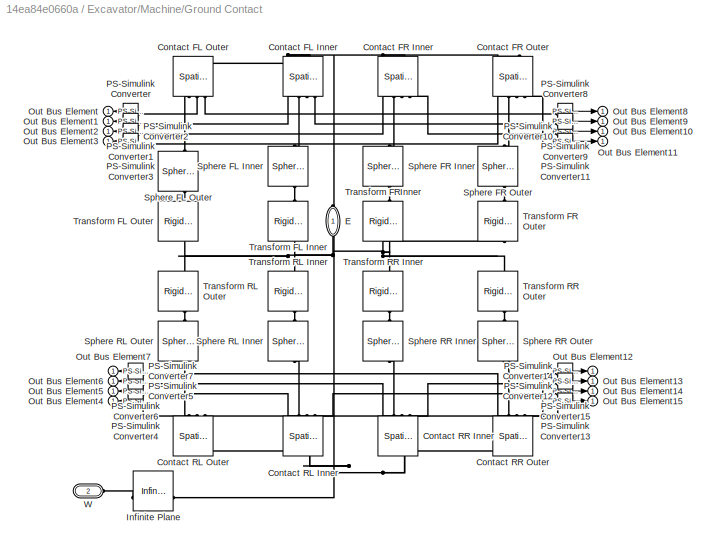
BLOCK [SubSystem] Excavator/Machine/Ground Contact
  NameLocation = right
BLOCK [Reference] Excavator/Machine/Ground Contact/Contact FL Inner  REF=sm_lib/Forces and
Torques/Spatial
Contact Force
  NameLocation = left
  SourceBlock = sm_lib/Forces and\nTorques/Spatial\nContact Force
  SourceType = Spatial\nContact Force
BLOCK [Reference] Excavator/Machine/Ground Contact/Contact FL Outer  REF=sm_lib/Forces and
Torques/Spatial
Contact Force
  NameLocation = left
  SourceBlock = sm_lib/Forces and\nTorques/Spatial\nContact Force
  SourceType = Spatial\nContact Force
BLOCK [Reference] Excavator/Machine/Ground Contact/Contact FR Inner  REF=sm_lib/Forces and
Torques/Spatial
Contact Force
  NameLocation = right
  SourceBlock = sm_lib/Forces and\nTorques/Spatial\nContact Force
  SourceType = Spatial\nContact Force
BLOCK [Reference] Excavator/Machine/Ground Contact/Contact FR Outer  REF=sm_lib/Forces and
Torques/Spatial
Contact Force
  NameLocation = right
  SourceBlock = sm_lib/Forces and\nTorques/Spatial\nContact Force
  SourceType = Spatial\nContact Force
BLOCK [Reference] Excavator/Machine/Ground Contact/Contact RL Inner  REF=sm_lib/Forces and
Torques/Spatial
Contact Force
  NameLocation = left
  SourceBlock = sm_lib/Forces and\nTorques/Spatial\nContact Force
  SourceType = Spatial\nContact Force
BLOCK [Reference] Excavator/Machine/Ground Contact/Contact RL Outer  REF=sm_lib/Forces and
Torques/Spatial
Contact Force
  NameLocation = left
  SourceBlock = sm_lib/Forces and\nTorques/Spatial\nContact Force
  SourceType = Spatial\nContact Force
BLOCK [Reference] Excavator/Machine/Ground Contact/Contact RR Inner  REF=sm_lib/Forces and
Torques/Spatial
Contact Force
  NameLocation = right
  SourceBlock = sm_lib/Forces and\nTorques/Spatial\nContact Force
  SourceType = Spatial\nContact Force
BLOCK [Reference] Excavator/Machine/Ground Contact/Contact RR Outer  REF=sm_lib/Forces and
Torques/Spatial
Contact Force
  NameLocation = right
  SourceBlock = sm_lib/Forces and\nTorques/Spatial\nContact Force
  SourceType = Spatial\nContact Force
BLOCK [PMIOPort] Excavator/Machine/Ground Contact/E
  NameLocation = left
  Side = Right
BLOCK [Reference] Excavator/Machine/Ground Contact/Infinite Plane  REF=sm_lib/Curves and Surfaces/Infinite Plane
  SourceBlock = sm_lib/Curves and Surfaces/Infinite Plane
  SourceType = Infinite Plane
BLOCK [Outport] Excavator/Machine/Ground Contact/Out Bus Element
BLOCK [Outport] Excavator/Machine/Ground Contact/Out Bus Element1
BLOCK [Outport] Excavator/Machine/Ground Contact/Out Bus Element10
BLOCK [Outport] Excavator/Machine/Ground Contact/Out Bus Element11
BLOCK [Outport] Excavator/Machine/Ground Contact/Out Bus Element12
BLOCK [Outport] Excavator/Machine/Ground Contact/Out Bus Element13
BLOCK [Outport] Excavator/Machine/Ground Contact/Out Bus Element14
BLOCK [Outport] Excavator/Machine/Ground Contact/Out Bus Element15
BLOCK [Outport] Excavator/Machine/Ground Contact/Out Bus Element2
BLOCK [Outport] Excavator/Machine/Ground Contact/Out Bus Element3
BLOCK [Outport] Excavator/Machine/Ground Contact/Out Bus Element4
BLOCK [Outport] Excavator/Machine/Ground Contact/Out Bus Element5
BLOCK [Outport] Excavator/Machine/Ground Contact/Out Bus Element6
BLOCK [Outport] Excavator/Machine/Ground Contact/Out Bus Element7
BLOCK [Outport] Excavator/Machine/Ground Contact/Out Bus Element8
BLOCK [Outport] Excavator/Machine/Ground Contact/Out Bus Element9
BLOCK [Reference] Excavator/Machine/Ground Contact/PS-Simulink Converter  REF=nesl_utility/PS-Simulink
Converter
  SourceBlock = nesl_utility/PS-Simulink\nConverter
  SourceType = PS-Simulink\nConverter
BLOCK [Reference] Excavator/Machine/Ground Contact/PS-Simulink Converter1  REF=nesl_utility/PS-Simulink
Converter
  SourceBlock = nesl_utility/PS-Simulink\nConverter
  SourceType = PS-Simulink\nConverter
BLOCK [Reference] Excavator/Machine/Ground Contact/PS-Simulink Converter10  REF=nesl_utility/PS-Simulink
Converter
  SourceBlock = nesl_utility/PS-Simulink\nConverter
  SourceType = PS-Simulink\nConverter
BLOCK [Reference] Excavator/Machine/Ground Contact/PS-Simulink Converter11  REF=nesl_utility/PS-Simulink
Converter
  SourceBlock = nesl_utility/PS-Simulink\nConverter
  SourceType = PS-Simulink\nConverter
BLOCK [Reference] Excavator/Machine/Ground Contact/PS-Simulink Converter12  REF=nesl_utility/PS-Simulink
Converter
  SourceBlock = nesl_utility/PS-Simulink\nConverter
  SourceType = PS-Simulink\nConverter
BLOCK [Reference] Excavator/Machine/Ground Contact/PS-Simulink Converter13  REF=nesl_utility/PS-Simulink
Converter
  SourceBlock = nesl_utility/PS-Simulink\nConverter
  SourceType = PS-Simulink\nConverter
BLOCK [Reference] Excavator/Machine/Ground Contact/PS-Simulink Converter14  REF=nesl_utility/PS-Simulink
Converter
  SourceBlock = nesl_utility/PS-Simulink\nConverter
  SourceType = PS-Simulink\nConverter
BLOCK [Reference] Excavator/Machine/Ground Contact/PS-Simulink Converter15  REF=nesl_utility/PS-Simulink
Converter
  SourceBlock = nesl_utility/PS-Simulink\nConverter
  SourceType = PS-Simulink\nConverter
BLOCK [Reference] Excavator/Machine/Ground Contact/PS-Simulink Converter2  REF=nesl_utility/PS-Simulink
Converter
  SourceBlock = nesl_utility/PS-Simulink\nConverter
  SourceType = PS-Simulink\nConverter
BLOCK [Reference] Excavator/Machine/Ground Contact/PS-Simulink Converter3  REF=nesl_utility/PS-Simulink
Converter
  SourceBlock = nesl_utility/PS-Simulink\nConverter
  SourceType = PS-Simulink\nConverter
BLOCK [Reference] Excavator/Machine/Ground Contact/PS-Simulink Converter4  REF=nesl_utility/PS-Simulink
Converter
  SourceBlock = nesl_utility/PS-Simulink\nConverter
  SourceType = PS-Simulink\nConverter
BLOCK [Reference] Excavator/Machine/Ground Contact/PS-Simulink Converter5  REF=nesl_utility/PS-Simulink
Converter
  SourceBlock = nesl_utility/PS-Simulink\nConverter
  SourceType = PS-Simulink\nConverter
BLOCK [Reference] Excavator/Machine/Ground Contact/PS-Simulink Converter6  REF=nesl_utility/PS-Simulink
Converter
  SourceBlock = nesl_utility/PS-Simulink\nConverter
  SourceType = PS-Simulink\nConverter
BLOCK [Reference] Excavator/Machine/Ground Contact/PS-Simulink Converter7  REF=nesl_utility/PS-Simulink
Converter
  SourceBlock = nesl_utility/PS-Simulink\nConverter
  SourceType = PS-Simulink\nConverter
BLOCK [Reference] Excavator/Machine/Ground Contact/PS-Simulink Converter8  REF=nesl_utility/PS-Simulink
Converter
  SourceBlock = nesl_utility/PS-Simulink\nConverter
  SourceType = PS-Simulink\nConverter
BLOCK [Reference] Excavator/Machine/Ground Contact/PS-Simulink Converter9  REF=nesl_utility/PS-Simulink
Converter
  SourceBlock = nesl_utility/PS-Simulink\nConverter
  SourceType = PS-Simulink\nConverter
BLOCK [Reference] Excavator/Machine/Ground Contact/Sphere FL Inner  REF=sm_lib/Body Elements/Spherical Solid
  NameLocation = left
  SourceBlock = sm_lib/Body Elements/Spherical Solid
  SourceType = Spherical Solid
BLOCK [Reference] Excavator/Machine/Ground Contact/Sphere FL Outer  REF=sm_lib/Body Elements/Spherical Solid
  NameLocation = left
  SourceBlock = sm_lib/Body Elements/Spherical Solid
  SourceType = Spherical Solid
BLOCK [Reference] Excavator/Machine/Ground Contact/Sphere FR Inner  REF=sm_lib/Body Elements/Spherical Solid
  NameLocation = right
  SourceBlock = sm_lib/Body Elements/Spherical Solid
  SourceType = Spherical Solid
BLOCK [Reference] Excavator/Machine/Ground Contact/Sphere FR Outer  REF=sm_lib/Body Elements/Spherical Solid
  NameLocation = right
  SourceBlock = sm_lib/Body Elements/Spherical Solid
  SourceType = Spherical Solid
BLOCK [Reference] Excavator/Machine/Ground Contact/Sphere RL Inner  REF=sm_lib/Body Elements/Spherical Solid
  NameLocation = left
  SourceBlock = sm_lib/Body Elements/Spherical Solid
  SourceType = Spherical Solid
BLOCK [Reference] Excavator/Machine/Ground Contact/Sphere RL Outer  REF=sm_lib/Body Elements/Spherical Solid
  NameLocation = left
  SourceBlock = sm_lib/Body Elements/Spherical Solid
  SourceType = Spherical Solid
BLOCK [Reference] Excavator/Machine/Ground Contact/Sphere RR Inner  REF=sm_lib/Body Elements/Spherical Solid
  NameLocation = right
  SourceBlock = sm_lib/Body Elements/Spherical Solid
  SourceType = Spherical Solid
BLOCK [Reference] Excavator/Machine/Ground Contact/Sphere RR Outer  REF=sm_lib/Body Elements/Spherical Solid
  NameLocation = right
  SourceBlock = sm_lib/Body Elements/Spherical Solid
  SourceType = Spherical Solid
BLOCK [Reference] Excavator/Machine/Ground Contact/Transform FL Inner  REF=sm_lib/Frames and
Transforms/Rigid
Transform
  NameLocation = left
  SourceBlock = sm_lib/Frames and\nTransforms/Rigid\nTransform
  SourceType = Rigid\nTransform
BLOCK [Reference] Excavator/Machine/Ground Contact/Transform FL Outer  REF=sm_lib/Frames and
Transforms/Rigid
Transform
  NameLocation = left
  SourceBlock = sm_lib/Frames and\nTransforms/Rigid\nTransform
  SourceType = Rigid\nTransform
BLOCK [Reference] Excavator/Machine/Ground Contact/Transform FR Outer  REF=sm_lib/Frames and
Transforms/Rigid
Transform
  NameLocation = right
  SourceBlock = sm_lib/Frames and\nTransforms/Rigid\nTransform
  SourceType = Rigid\nTransform
BLOCK [Reference] Excavator/Machine/Ground Contact/Transform FRInner  REF=sm_lib/Frames and
Transforms/Rigid
Transform
  NameLocation = right
  SourceBlock = sm_lib/Frames and\nTransforms/Rigid\nTransform
  SourceType = Rigid\nTransform
BLOCK [Reference] Excavator/Machine/Ground Contact/Transform RL Inner  REF=sm_lib/Frames and
Transforms/Rigid
Transform
  NameLocation = left
  SourceBlock = sm_lib/Frames and\nTransforms/Rigid\nTransform
  SourceType = Rigid\nTransform
BLOCK [Reference] Excavator/Machine/Ground Contact/Transform RL Outer  REF=sm_lib/Frames and
Transforms/Rigid
Transform
  NameLocation = left
  SourceBlock = sm_lib/Frames and\nTransforms/Rigid\nTransform
  SourceType = Rigid\nTransform
BLOCK [Reference] Excavator/Machine/Ground Contact/Transform RR Inner  REF=sm_lib/Frames and
Transforms/Rigid
Transform
  NameLocation = right
  SourceBlock = sm_lib/Frames and\nTransforms/Rigid\nTransform
  SourceType = Rigid\nTransform
BLOCK [Reference] Excavator/Machine/Ground Contact/Transform RR Outer  REF=sm_lib/Frames and
Transforms/Rigid
Transform
  NameLocation = right
  SourceBlock = sm_lib/Frames and\nTransforms/Rigid\nTransform
  SourceType = Rigid\nTransform
BLOCK [PMIOPort] Excavator/Machine/Ground Contact/W
  NameLocation = top
  Port = 2
  Side = Left
BLOCK [Reference] Excavator/Machine/Ground/Ground Floor  REF=sm_lib/Body Elements/Brick Solid
  SourceBlock = sm_lib/Body Elements/Brick Solid
  SourceType = Brick Solid
BLOCK [Reference] Excavator/Machine/Ground/Ground Hill  REF=sm_lib/Body Elements/Brick Solid
  SourceBlock = sm_lib/Body Elements/Brick Solid
  SourceType = Brick Solid
BLOCK [Reference] Excavator/Machine/Ground/Ground Transparent  REF=sm_lib/Body Elements/Brick Solid
  SourceBlock = sm_lib/Body Elements/Brick Solid
  SourceType = Brick Solid
BLOCK [Reference] Excavator/Machine/Ground/Transform Floor  REF=sm_lib/Frames and
Transforms/Rigid
Transform
  SourceBlock = sm_lib/Frames and\nTransforms/Rigid\nTransform
  SourceType = Rigid\nTransform
BLOCK [Reference] Excavator/Machine/Ground/Transform Hill  REF=sm_lib/Frames and
Transforms/Rigid
Transform
  SourceBlock = sm_lib/Frames and\nTransforms/Rigid\nTransform
  SourceType = Rigid\nTransform
BLOCK [Reference] Excavator/Machine/Ground/Transform Transparent  REF=sm_lib/Frames and
Transforms/Rigid
Transform
  SourceBlock = sm_lib/Frames and\nTransforms/Rigid\nTransform
  SourceType = Rigid\nTransform
BLOCK [PMIOPort] Excavator/Machine/Ground/W
  Side = Left
BLOCK [ConnectionLabel] Excavator/Machine/Label B1
  Label = B
  NameLocation = top
BLOCK [ConnectionLabel] Excavator/Machine/Label B2
  Label = B
  NameLocation = top
BLOCK [Reference] Excavator/Machine/Mechanism Configuration  REF=sm_lib/Utilities/Mechanism
Configuration
  SourceBlock = sm_lib/Utilities/Mechanism\nConfiguration
  SourceType = Mechanism\nConfiguration
BLOCK [SubSystem] Excavator/Machine/Pos CG
BLOCK [PMIOPort] Excavator/Machine/Pos CG/B
  Port = 2
  Side = Left
BLOCK [BusCreator] Excavator/Machine/Pos CG/Bus Creator
  DisplayOption = bar
  InheritFromInputs = on
  Inputs = 2
BLOCK [PMIOPort] Excavator/Machine/Pos CG/F
  Side = Right
BLOCK [Reference] Excavator/Machine/Pos CG/PS-Simulink Converter  REF=nesl_utility/PS-Simulink
Converter
  SourceBlock = nesl_utility/PS-Simulink\nConverter
  SourceType = PS-Simulink\nConverter
BLOCK [Reference] Excavator/Machine/Pos CG/PS-Simulink Converter1  REF=nesl_utility/PS-Simulink
Converter
  SourceBlock = nesl_utility/PS-Simulink\nConverter
  SourceType = PS-Simulink\nConverter
BLOCK [Terminator] Excavator/Machine/Pos CG/Terminator
BLOCK [Reference] Excavator/Machine/Pos CG/Transform Sensor  REF=sm_lib/Frames and
Transforms/Transform
Sensor
  SourceBlock = sm_lib/Frames and\nTransforms/Transform\nSensor
  SourceType = Transform\nSensor
BLOCK [Reference] Excavator/Machine/Simulink-PS Converter  REF=nesl_utility/Simulink-PS
Converter
  SourceBlock = nesl_utility/Simulink-PS\nConverter
  SourceType = Simulink-PS\nConverter
BLOCK [Reference] Excavator/Machine/Stick  REF=Excavator_Parts_Lib/Stick
  SourceBlock = Excavator_Parts_Lib/Stick
  Tag = 62A93771-C790-5E4F-BFD2-96C4D317E04B
BLOCK [SubSystem] Excavator/Machine/Stick Cyl
BLOCK [PMIOPort] Excavator/Machine/Stick Cyl/Act
  Port = 2
  Side = Left
BLOCK [Reference] Excavator/Machine/Stick Cyl/BoomToStickCyl  REF=sm_lib/Joints/Universal
Joint
  SourceBlock = sm_lib/Joints/Universal\nJoint
  SourceType = Universal\nJoint
BLOCK [PMIOPort] Excavator/Machine/Stick Cyl/F
  Port = 4
  Side = Right
BLOCK [PMIOPort] Excavator/Machine/Stick Cyl/SCyl
  Port = 3
  Side = Left
BLOCK [SubSystem] Excavator/Machine/Stick Cyl/StickCyl
  Tag = E5732D11-DD70-A644-801C-7B7E9AE6896B
BLOCK [PMIOPort] Excavator/Machine/Stick Cyl/StickCyl/B1
  Side = Left
BLOCK [PMIOPort] Excavator/Machine/Stick Cyl/StickCyl/F1
  Port = 2
  Side = Right
BLOCK [Reference] Excavator/Machine/Stick Cyl/StickCyl/RT_BoomToStickCyl  REF=sm_lib/Frames and
Transforms/Rigid
Transform
  SourceBlock = sm_lib/Frames and\nTransforms/Rigid\nTransform
  SourceType = Rigid\nTransform
BLOCK [Reference] Excavator/Machine/Stick Cyl/StickCyl/RT_StickCylToStickPiston  REF=sm_lib/Frames and
Transforms/Rigid
Transform
  SourceBlock = sm_lib/Frames and\nTransforms/Rigid\nTransform
  SourceType = Rigid\nTransform
BLOCK [Reference] Excavator/Machine/Stick Cyl/StickCyl/StickCyl_primary  REF=sm_lib/Body Elements/File Solid
  SourceBlock = sm_lib/Body Elements/File Solid
  SourceType = File Solid
BLOCK [SubSystem] Excavator/Machine/Stick Cyl/StickCylToStickPiston
  Tag = 1fbd8d61-bcf9-47b8-b033-8feff0dec830
BLOCK [PMIOPort] Excavator/Machine/Stick Cyl/StickCylToStickPiston/B
  Side = Left
BLOCK [PMIOPort] Excavator/Machine/Stick Cyl/StickCylToStickPiston/F
  Port = 2
  Side = Right
BLOCK [SimscapeBus] Excavator/Machine/Stick Cyl/StickCylToStickPiston/Simscape Bus
  HierarchyStrings = StickC;StickR
  NameLocation = top
BLOCK [Reference] Excavator/Machine/Stick Cyl/StickCylToStickPiston/StickCylToStickPiston  REF=sm_lib/Joints/Cylindrical
Joint
  SourceBlock = sm_lib/Joints/Cylindrical\nJoint
  SourceType = Cylindrical\nJoint
BLOCK [PMIOPort] Excavator/Machine/Stick Cyl/StickCylToStickPiston/StickHydToMech
  Port = 3
  Side = Left
BLOCK [Reference] Excavator/Machine/Stick Cyl/StickCylToStickPiston/Translational Multibody Interface  REF=fl_lib/Mechanical/Multibody Interfaces/Translational
Multibody Interface
  SourceBlock = fl_lib/Mechanical/Multibody Interfaces/Translational\nMultibody Interface
  SourceType = Translational\nMultibody Interface
BLOCK [SubSystem] Excavator/Machine/Stick Cyl/StickPiston
  Tag = 75E85B36-DCA3-1E44-A8A0-414DF13F3AEC
BLOCK [PMIOPort] Excavator/Machine/Stick Cyl/StickPiston/B1
  Side = Right
BLOCK [PMIOPort] Excavator/Machine/Stick Cyl/StickPiston/B2
  Port = 2
  Side = Left
BLOCK [Reference] Excavator/Machine/Stick Cyl/StickPiston/RT_StickCylToStickPiston  REF=sm_lib/Frames and
Transforms/Rigid
Transform
  SourceBlock = sm_lib/Frames and\nTransforms/Rigid\nTransform
  SourceType = Rigid\nTransform
BLOCK [Reference] Excavator/Machine/Stick Cyl/StickPiston/RT_StickPistonToStick  REF=sm_lib/Frames and
Transforms/Rigid
Transform
  SourceBlock = sm_lib/Frames and\nTransforms/Rigid\nTransform
  SourceType = Rigid\nTransform
BLOCK [Reference] Excavator/Machine/Stick Cyl/StickPiston/StickPiston_primary  REF=sm_lib/Body Elements/File Solid
  SourceBlock = sm_lib/Body Elements/File Solid
  SourceType = File Solid
BLOCK [Reference] Excavator/Machine/Stick Cyl/StickPistonToStick  REF=sm_lib/Joints/Universal
Joint
  SourceBlock = sm_lib/Joints/Universal\nJoint
  SourceType = Universal\nJoint
BLOCK [PMIOPort] Excavator/Machine/Stick Cyl/m
  Side = Right
BLOCK [PMIOPort] Excavator/Machine/StickCyl
  NameLocation = top
  Side = Left
BLOCK [SubSystem] Excavator/Machine/StickToBucket
  NameLocation = left
  Tag = 07adba86-714b-4e09-8ef8-8682a71cd5e3
BLOCK [PMIOPort] Excavator/Machine/StickToBucket/B
  Side = Left
BLOCK [PMIOPort] Excavator/Machine/StickToBucket/F
  Port = 2
  Side = Right
BLOCK [Reference] Excavator/Machine/StickToBucket/PS-Simulink Converter  REF=nesl_utility/PS-Simulink
Converter
  SourceBlock = nesl_utility/PS-Simulink\nConverter
  SourceType = PS-Simulink\nConverter
BLOCK [Reference] Excavator/Machine/StickToBucket/StickToBucket  REF=sm_lib/Joints/Revolute Joint
  SourceBlock = sm_lib/Joints/Revolute Joint
  SourceType = Revolute Joint
BLOCK [Outport] Excavator/Machine/StickToBucket/q
BLOCK [PMIOPort] Excavator/Machine/SwingMotor
  NameLocation = top
  Port = 4
  Side = Left
BLOCK [Outport] Excavator/Machine/SwingSpeed
BLOCK [Reference] Excavator/Machine/World Frame  REF=sm_lib/Frames and
Transforms/World Frame
  SourceBlock = sm_lib/Frames and\nTransforms/World Frame
  SourceType = World Frame
BLOCK [Scope] Excavator/Machine/fNormal
  ActiveDisplayYMaximum = 443214.28677
  ActiveDisplayYMinimum = -49246.03186
  DataLoggingVariableName = ScopeData4
  Floating = off
  GraphicalSettings = {"GraphicalSettings":{"LegacySettings":true,"Style":{"AxesScalingProperties":{"ScaleAxesLimitsAtStop":false},"Style":{"AxesColor":"[0 0 0]","ChannelNames":["",""],"ColorOrder":"[1 0.909803921568627 0.392156862745098;0.149019607843137 0.549019607843137 0.866666666666667;0.96078431372549 0.466666666666667 0.16078431372549;0.286274509803922 0.858823529411765 0.250980392156863;0.752941176470588 0.3607...<+519ch>
  LayoutDimensionsString = [2 1]
  MultipleDisplayCache = [{"MaxYLimMag":443214.28677,"MaxYLimReal":443214.28677,"MinYLimMag":0,"MinYLimReal":-49246.03186,"PlotAsMagnitudePhase":false,"ShowGrid":true,"ShowLegend":false,"Title":"%<SignalLabel>","YLabel":""},{"MaxYLimMag":694245.34044,"MaxYLimReal":284512.5329,"MinYLimMag":0,"MinYLimReal":-31612.50366,"PlotAsMagnitudePhase":false,"ShowGrid":true,"ShowLegend":false,"Title":"%<SignalLabel>","YLabel":""}]
  NumInputPorts = 2
  WasSavedAsWebScope = on
  WindowPosition = [949 246 515 532]
BLOCK [Outport] Excavator/PosSensors
  Port = 4
BLOCK [Outport] Excavator/PressureSensors
BLOCK [Inport] Excavator/PumpLCmd
BLOCK [Inport] Excavator/PumpRCmd
  Port = 2
BLOCK [Outport] Excavator/PumpShaftSpeed
  Port = 2
BLOCK [Outport] Excavator/SwingSpeed
  Port = 3
BLOCK [Inport] Excavator/ValveLCmds
  Port = 3
BLOCK [Inport] Excavator/ValveRCmds
  Port = 4
BLOCK [SubSystem] Operator Inputs
BLOCK [Inport] Operator Inputs/BoomCmd
  Port = 2
BLOCK [Inport] Operator Inputs/BucketCmd
  Port = 4
BLOCK [BusCreator] Operator Inputs/OpCmdBusCreator
  DisplayOption = bar
  InheritFromInputs = on
  Inputs = 4
BLOCK [Outport] Operator Inputs/OperatorInputs
BLOCK [Reference] Operator Inputs/Signal Editor  REF=SignalEditorBlockLib/Signal Editor
  Commented = on
  SourceBlock = SignalEditorBlockLib/Signal Editor
  SourceType = SignalEditor
  UserDataPersistent = on
BLOCK [Inport] Operator Inputs/StickCmd
  Port = 3
BLOCK [Inport] Operator Inputs/SwingCmd
BLOCK [Inport] StickCmd
  Port = 3
BLOCK [Inport] SwingCmd
BLOCK [Terminator] Terminator
ANNOTATION (root): 1. Open Full System Test App ( code ) 2. Plot operator commands ( code ) 3. Plot positions of actuators ( code ) 4. Plot pressures in system ( code ) 5. Plot energy and calculate efficiency ( code ) 6. Plot soil load on bucket CG ( code ) 7. Set Solver: Variable , Fixed , Fixed Cost ( code ) 8. Explore simulation results using sscexplore 9. Learn more about this example 10. Review full set of test...<+3ch>
ANNOTATION (root): Excavator with Hydraulic System
ANNOTATION Excavator/Hydraulics: Functions
ANNOTATION Excavator/Hydraulics: Pumps & Valves
ANNOTATION Excavator/Hydraulics/Functions/Boom: These leakages can be included if necessary. Scale carefully to avoid drift due to gravity.
ANNOTATION Excavator/Hydraulics/Functions/Bucket: This leakage can be included if necessary. Scale carefully to avoid drift due to gravity.
ANNOTATION Excavator/Hydraulics/Functions/Stick: This leakage can be included if necessary. Scale carefully to avoid drift due to gravity.
ANNOTATION Excavator/Machine/BucketLoads/BucketLoadsVariant/BucketLoadsActive: Once the Z position of the bucket COM gets below the 'startDiggingZPos', start referencing the bucket longitudinal velocity along chassis y-axis
ANNOTATION Excavator/Machine/BucketLoads/BucketLoadsVariant/BucketLoadsActive: Another switch is used for the Z force so that the force can latch on past the dig move
ANNOTATION Excavator/Machine/BucketLoads/BucketLoadsVariant/BucketLoadsActive: Only when the bucket velocity is changing, pass the velocity through to calculate the Y and Z forces.
ANNOTATION Excavator/Machine/BucketLoads/BucketLoadsVariant/BucketLoadsActive: Rate limit the Z force to obtain a ramp up to a load instead of an immediate step based on the velocity
ANNOTATION Excavator/Machine/BucketLoads/BucketLoadsVariant/BucketLoadsActive: The intent of this logic is to provide a high level, time varying, representative external force to the bucket during the digging, swinging back to truck, and dumping portions of the dig cycle.
ANNOTATION Excavator/Machine/BucketLoads/BucketLoadsVariant/BucketLoadsActive: Express force in bucket frame
ANNOTATION Excavator/Machine/BucketLoads/BucketLoadsVariant/BucketLoadsActive/Scale Factor Bucket Empty: Dump the bucket load as the bucket angle changes by multiplying the Z force by a factor. This factor gets calculated by the LUT after the bucket angle has dropped below -100 degrees as a way of ensuring the factor is not used prior to the final bucket open move.
ANNOTATION Operator Inputs: This Signal Editor block is here to allow for manipulation of the dig cycle commands. The single function tests use the 'TestCmds' scenario which is modified programatically for the function to be tested when the 'TestScenarioDefinitions' script is ran. The inports at the top level of the model bring the commands in for the simulation and are put into a bus here.
LINE BoomCmd:1 -> Operator Inputs:2
LINE BucketCmd:1 -> Operator Inputs:4
LINE Controller/Function Commander/BoomValve CmdRateLimit:1 -> Controller/Function Commander/Transfer Fcn1:1
LINE Controller/Function Commander/BoomValve CmdSaturation:1 -> Controller/Function Commander/BoomValve CmdRateLimit:1
LINE Controller/Function Commander/BucketValve CmdRateLimit:1 -> Controller/Function Commander/Transfer Fcn3:1
LINE Controller/Function Commander/BucketValve CmdSaturation:1 -> Controller/Function Commander/BucketValve CmdRateLimit:1
LINE Controller/Function Commander/Bus Creator1:1 -> Controller/Function Commander/RightValveCmds:1
LINE Controller/Function Commander/Bus Creator:1 -> Controller/Function Commander/LeftValveCmds:1
LINE Controller/Function Commander/Bus Selector1:1 -> Controller/Function Commander/HydraulicCommander:5
LINE Controller/Function Commander/Bus Selector1:2 -> Controller/Function Commander/HydraulicCommander:6
LINE Controller/Function Commander/Bus Selector:1 -> Controller/Function Commander/Saturation:1
LINE Controller/Function Commander/Bus Selector:2 -> Controller/Function Commander/Saturation1:1
LINE Controller/Function Commander/Bus Selector:3 -> Controller/Function Commander/Saturation2:1
LINE Controller/Function Commander/Bus Selector:4 -> Controller/Function Commander/Saturation3:1
LINE Controller/Function Commander/HydraulicCommander:1 -> Controller/Function Commander/FunctionQDmds:1
LINE Controller/Function Commander/HydraulicCommander:10 -> Controller/Function Commander/BucketValve CmdSaturation:1
LINE Controller/Function Commander/HydraulicCommander:2 -> Controller/Function Commander/FunctionQDmds:2
LINE Controller/Function Commander/HydraulicCommander:3 -> Controller/Function Commander/FunctionQDmds:3
LINE Controller/Function Commander/HydraulicCommander:4 -> Controller/Function Commander/FunctionQDmds:4
LINE Controller/Function Commander/HydraulicCommander:5 -> Controller/Function Commander/LeftPump CmdRateLimit:1
LINE Controller/Function Commander/HydraulicCommander:6 -> Controller/Function Commander/RightPump CmdRateLimit:1
LINE Controller/Function Commander/HydraulicCommander:7 -> Controller/Function Commander/SwingValve CmdSaturation:1
LINE Controller/Function Commander/HydraulicCommander:8 -> Controller/Function Commander/BoomValve CmdSaturation:1
LINE Controller/Function Commander/HydraulicCommander:9 -> Controller/Function Commander/StickValve CmdSaturation:1
LINE Controller/Function Commander/LeftPump CmdRateLimit:1 -> Controller/Function Commander/PumpLCmd:1
LINE Controller/Function Commander/OperatorInputs:1 -> Controller/Function Commander/Bus Selector:1
LINE Controller/Function Commander/PressureSensors:1 -> Controller/Function Commander/Bus Selector1:1
LINE Controller/Function Commander/PumpSpeed:1 -> Controller/Function Commander/HydraulicCommander:8
LINE Controller/Function Commander/RightPump CmdRateLimit:1 -> Controller/Function Commander/PumpRCmd:1
LINE Controller/Function Commander/Saturation1:1 -> Controller/Function Commander/HydraulicCommander:2
LINE Controller/Function Commander/Saturation2:1 -> Controller/Function Commander/HydraulicCommander:3
LINE Controller/Function Commander/Saturation3:1 -> Controller/Function Commander/HydraulicCommander:4
LINE Controller/Function Commander/Saturation:1 -> Controller/Function Commander/HydraulicCommander:1
LINE Controller/Function Commander/StickValve CmdRateLimit:1 -> Controller/Function Commander/Transfer Fcn2:1
LINE Controller/Function Commander/StickValve CmdSaturation:1 -> Controller/Function Commander/StickValve CmdRateLimit:1
LINE Controller/Function Commander/SwingSpeed:1 -> Controller/Function Commander/HydraulicCommander:7
LINE Controller/Function Commander/SwingValve CmdRateLimit:1 -> Controller/Function Commander/Transfer Fcn:1
LINE Controller/Function Commander/SwingValve CmdSaturation:1 -> Controller/Function Commander/SwingValve CmdRateLimit:1
NET Controller/Function Commander/Transfer Fcn1:1 -> Controller/Function Commander/Bus Creator1:1, Controller/Function Commander/Bus Creator:2
NET Controller/Function Commander/Transfer Fcn2:1 -> Controller/Function Commander/Bus Creator1:2, Controller/Function Commander/Bus Creator:3
LINE Controller/Function Commander/Transfer Fcn3:1 -> Controller/Function Commander/Bus Creator1:3
LINE Controller/Function Commander/Transfer Fcn:1 -> Controller/Function Commander/Bus Creator:1
LINE Controller/Function Commander:1 -> Controller/PumpLCmd:1
LINE Controller/Function Commander:2 -> Controller/PumpRCmd:1
LINE Controller/Function Commander:3 -> Controller/ValveLCmds:1
LINE Controller/Function Commander:4 -> Controller/ValveRCmds:1
LINE Controller/OperatorInputs:1 -> Controller/Function Commander:1
LINE Controller/PressureSensors:1 -> Controller/Function Commander:2
LINE Controller/PumpSpeed:1 -> Controller/Function Commander:3
LINE Controller/SwingSpeed:1 -> Controller/Function Commander:4
LINE Controller:1 -> Excavator:1
LINE Controller:2 -> Excavator:2
LINE Controller:3 -> Excavator:3
LINE Controller:4 -> Excavator:4
LINE Excavator/Engine/PS-Simulink Converter3:1 -> Excavator/Engine/Terminator:1
LINE Excavator/Engine/PS-Simulink Converter:1 -> Excavator/Engine/Transfer Fcn (with initial outputs):1
LINE Excavator/Engine/Transfer Fcn (with initial outputs):1 -> Excavator/Engine/PumpShaftSpeed:1
LINE Excavator/Engine:1 -> Excavator/PumpShaftSpeed:1
LINE Excavator/Hydraulics/Functions/Boom/PS-Simulink Converter1:1 -> Excavator/Hydraulics/Functions/Boom/Transfer Fcn (with initial outputs)1:1
LINE Excavator/Hydraulics/Functions/Boom/PS-Simulink Converter2:1 -> Excavator/Hydraulics/Functions/Boom/BoomPos:1
LINE Excavator/Hydraulics/Functions/Boom/PS-Simulink Converter:1 -> Excavator/Hydraulics/Functions/Boom/Transfer Fcn (with initial outputs):1
LINE Excavator/Hydraulics/Functions/Boom/Transfer Fcn (with initial outputs)1:1 -> Excavator/Hydraulics/Functions/Boom/BoomHEPr:1
LINE Excavator/Hydraulics/Functions/Boom/Transfer Fcn (with initial outputs):1 -> Excavator/Hydraulics/Functions/Boom/BoomREPr:1
LINE Excavator/Hydraulics/Functions/Boom:1 -> Excavator/Hydraulics/Functions/BoomHEPr:1
LINE Excavator/Hydraulics/Functions/Boom:2 -> Excavator/Hydraulics/Functions/BoomREPr:1
LINE Excavator/Hydraulics/Functions/Boom:3 -> Excavator/Hydraulics/Functions/BoomPos:1
LINE Excavator/Hydraulics/Functions/Bucket/PS-Simulink Converter1:1 -> Excavator/Hydraulics/Functions/Bucket/Transfer Fcn (with initial outputs):1
NET Excavator/Hydraulics/Functions/Bucket/PS-Simulink Converter2:1 -> Excavator/Hydraulics/Functions/Bucket/BucketPos:1, Excavator/Hydraulics/Functions/Bucket/BucketScope:1
LINE Excavator/Hydraulics/Functions/Bucket/PS-Simulink Converter:1 -> Excavator/Hydraulics/Functions/Bucket/Transfer Fcn (with initial outputs)1:1
NET Excavator/Hydraulics/Functions/Bucket/Transfer Fcn (with initial outputs)1:1 -> Excavator/Hydraulics/Functions/Bucket/BucketREPr:1, Excavator/Hydraulics/Functions/Bucket/BucketScope:2
NET Excavator/Hydraulics/Functions/Bucket/Transfer Fcn (with initial outputs):1 -> Excavator/Hydraulics/Functions/Bucket/BucketHEPr:1, Excavator/Hydraulics/Functions/Bucket/BucketScope:3
LINE Excavator/Hydraulics/Functions/Bucket:1 -> Excavator/Hydraulics/Functions/BucketHEPr:1
LINE Excavator/Hydraulics/Functions/Bucket:2 -> Excavator/Hydraulics/Functions/BucketREPr:1
LINE Excavator/Hydraulics/Functions/Bucket:3 -> Excavator/Hydraulics/Functions/BucketPos:1
LINE Excavator/Hydraulics/Functions/Stick/PS-Simulink Converter1:1 -> Excavator/Hydraulics/Functions/Stick/Transfer Fcn (with initial outputs)1:1
LINE Excavator/Hydraulics/Functions/Stick/PS-Simulink Converter2:1 -> Excavator/Hydraulics/Functions/Stick/StickPos:1
LINE Excavator/Hydraulics/Functions/Stick/PS-Simulink Converter:1 -> Excavator/Hydraulics/Functions/Stick/Transfer Fcn (with initial outputs):1
LINE Excavator/Hydraulics/Functions/Stick/Transfer Fcn (with initial outputs)1:1 -> Excavator/Hydraulics/Functions/Stick/StickHEPr:1
LINE Excavator/Hydraulics/Functions/Stick/Transfer Fcn (with initial outputs):1 -> Excavator/Hydraulics/Functions/Stick/StickREPr:1
LINE Excavator/Hydraulics/Functions/Stick:1 -> Excavator/Hydraulics/Functions/StickHEPr:1
LINE Excavator/Hydraulics/Functions/Stick:2 -> Excavator/Hydraulics/Functions/StickREPr:1
LINE Excavator/Hydraulics/Functions/Stick:3 -> Excavator/Hydraulics/Functions/StickPos:1
LINE Excavator/Hydraulics/Functions/Swing/PS-Simulink Converter1:1 -> Excavator/Hydraulics/Functions/Swing/Transfer Fcn (with initial outputs):1
LINE Excavator/Hydraulics/Functions/Swing/PS-Simulink Converter2:1 -> Excavator/Hydraulics/Functions/Swing/SwingAng:1
LINE Excavator/Hydraulics/Functions/Swing/PS-Simulink Converter:1 -> Excavator/Hydraulics/Functions/Swing/Transfer Fcn (with initial outputs)1:1
LINE Excavator/Hydraulics/Functions/Swing/Transfer Fcn (with initial outputs)1:1 -> Excavator/Hydraulics/Functions/Swing/SwingASidePr:1
LINE Excavator/Hydraulics/Functions/Swing/Transfer Fcn (with initial outputs):1 -> Excavator/Hydraulics/Functions/Swing/SwingBSidePr:1
LINE Excavator/Hydraulics/Functions/Swing:1 -> Excavator/Hydraulics/Functions/SwingASidePr:1
LINE Excavator/Hydraulics/Functions/Swing:2 -> Excavator/Hydraulics/Functions/SwingBSidePr:1
LINE Excavator/Hydraulics/Functions/Swing:3 -> Excavator/Hydraulics/Functions/SwingAng:1
LINE Excavator/Hydraulics/Functions:1 -> Excavator/Hydraulics/Bus Element Out:1
LINE Excavator/Hydraulics/Functions:10 -> Excavator/Hydraulics/Bus Element Out9:1
LINE Excavator/Hydraulics/Functions:11 -> Excavator/Hydraulics/Bus Element Out10:1
LINE Excavator/Hydraulics/Functions:12 -> Excavator/Hydraulics/Bus Element Out12:1
LINE Excavator/Hydraulics/Functions:2 -> Excavator/Hydraulics/Bus Element Out1:1
LINE Excavator/Hydraulics/Functions:3 -> Excavator/Hydraulics/Bus Element Out2:1
LINE Excavator/Hydraulics/Functions:4 -> Excavator/Hydraulics/Bus Element Out3:1
LINE Excavator/Hydraulics/Functions:5 -> Excavator/Hydraulics/Bus Element Out4:1
LINE Excavator/Hydraulics/Functions:6 -> Excavator/Hydraulics/Bus Element Out5:1
LINE Excavator/Hydraulics/Functions:7 -> Excavator/Hydraulics/Bus Element Out6:1
LINE Excavator/Hydraulics/Functions:8 -> Excavator/Hydraulics/Bus Element Out7:1
LINE Excavator/Hydraulics/Functions:9 -> Excavator/Hydraulics/Bus Element Out8:1
LINE Excavator/Hydraulics/LeftPump/Cmd:1 -> Excavator/Hydraulics/LeftPump/Simulink-PS Converter2:1
LINE Excavator/Hydraulics/LeftPump/PS-Simulink Converter1:1 -> Excavator/Hydraulics/LeftPump/Transfer Fcn (with initial outputs):1
LINE Excavator/Hydraulics/LeftPump/Transfer Fcn (with initial outputs):1 -> Excavator/Hydraulics/LeftPump/p:1
LINE Excavator/Hydraulics/LeftPump:1 -> Excavator/Hydraulics/Bus Element Out11:1
LINE Excavator/Hydraulics/PumpLCmd:1 -> Excavator/Hydraulics/LeftPump:1
LINE Excavator/Hydraulics/PumpRCmd:1 -> Excavator/Hydraulics/RightPump:1
LINE Excavator/Hydraulics/RightPump/Cmd:1 -> Excavator/Hydraulics/RightPump/Simulink-PS Converter1:1
LINE Excavator/Hydraulics/RightPump/PS-Simulink Converter2:1 -> Excavator/Hydraulics/RightPump/Transfer Fcn (with initial outputs):1
LINE Excavator/Hydraulics/RightPump/Transfer Fcn (with initial outputs):1 -> Excavator/Hydraulics/RightPump/p:1
LINE Excavator/Hydraulics/RightPump:1 -> Excavator/Hydraulics/Bus Element Out13:1
LINE Excavator/Hydraulics/ValveBlocks/LeftValveBlock/Cmd to Spool Pos/Bus Selector:1 -> Excavator/Hydraulics/ValveBlocks/LeftValveBlock/Cmd to Spool Pos/Simulink-PS Converter:1
LINE Excavator/Hydraulics/ValveBlocks/LeftValveBlock/Cmd to Spool Pos/Bus Selector:2 -> Excavator/Hydraulics/ValveBlocks/LeftValveBlock/Cmd to Spool Pos/Simulink-PS Converter1:1
LINE Excavator/Hydraulics/ValveBlocks/LeftValveBlock/Cmd to Spool Pos/Bus Selector:3 -> Excavator/Hydraulics/ValveBlocks/LeftValveBlock/Cmd to Spool Pos/Simulink-PS Converter2:1
LINE Excavator/Hydraulics/ValveBlocks/LeftValveBlock/Cmd to Spool Pos/Cmds:1 -> Excavator/Hydraulics/ValveBlocks/LeftValveBlock/Cmd to Spool Pos/Bus Selector:1
LINE Excavator/Hydraulics/ValveBlocks/LeftValveBlock/Cmds:1 -> Excavator/Hydraulics/ValveBlocks/LeftValveBlock/Cmd to Spool Pos:1
LINE Excavator/Hydraulics/ValveBlocks/RightValveBlock/Cmd to Spool Pos/Bus Selector:1 -> Excavator/Hydraulics/ValveBlocks/RightValveBlock/Cmd to Spool Pos/Simulink-PS Converter:1
LINE Excavator/Hydraulics/ValveBlocks/RightValveBlock/Cmd to Spool Pos/Bus Selector:2 -> Excavator/Hydraulics/ValveBlocks/RightValveBlock/Cmd to Spool Pos/Simulink-PS Converter1:1
LINE Excavator/Hydraulics/ValveBlocks/RightValveBlock/Cmd to Spool Pos/Bus Selector:3 -> Excavator/Hydraulics/ValveBlocks/RightValveBlock/Cmd to Spool Pos/Simulink-PS Converter2:1
LINE Excavator/Hydraulics/ValveBlocks/RightValveBlock/Cmd to Spool Pos/Cmds:1 -> Excavator/Hydraulics/ValveBlocks/RightValveBlock/Cmd to Spool Pos/Bus Selector:1
LINE Excavator/Hydraulics/ValveBlocks/RightValveBlock/Cmds:1 -> Excavator/Hydraulics/ValveBlocks/RightValveBlock/Cmd to Spool Pos:1
LINE Excavator/Hydraulics/ValveBlocks/ValveLCmds:1 -> Excavator/Hydraulics/ValveBlocks/LeftValveBlock:1
LINE Excavator/Hydraulics/ValveBlocks/ValveRCmds:1 -> Excavator/Hydraulics/ValveBlocks/RightValveBlock:1
LINE Excavator/Hydraulics/ValveLCmds:1 -> Excavator/Hydraulics/ValveBlocks:1
LINE Excavator/Hydraulics/ValveRCmds:1 -> Excavator/Hydraulics/ValveBlocks:2
LINE Excavator/Hydraulics:1 -> Excavator/PressureSensors:1
LINE Excavator/Hydraulics:2 -> Excavator/PosSensors:1
LINE Excavator/Machine/BaseToChassis/PS-Simulink Converter:1 -> Excavator/Machine/BaseToChassis/Transfer Fcn1:1
LINE Excavator/Machine/BaseToChassis/Transfer Fcn1:1 -> Excavator/Machine/BaseToChassis/m:1
LINE Excavator/Machine/BaseToChassis:1 -> Excavator/Machine/SwingSpeed:1
LINE Excavator/Machine/BucketLoads/BucketLoadsVariant/BucketLoadsActive/BucketAngle:1 -> Excavator/Machine/BucketLoads/BucketLoadsVariant/BucketLoadsActive/Scale Factor Bucket Empty:1
LINE Excavator/Machine/BucketLoads/BucketLoadsVariant/BucketLoadsActive/Compare To Constant:1 -> Excavator/Machine/BucketLoads/BucketLoadsVariant/BucketLoadsActive/Switch:2
LINE Excavator/Machine/BucketLoads/BucketLoadsVariant/BucketLoadsActive/Constant1:1 -> Excavator/Machine/BucketLoads/BucketLoadsVariant/BucketLoadsActive/Mux:1
LINE Excavator/Machine/BucketLoads/BucketLoadsVariant/BucketLoadsActive/Constant2:1 -> Excavator/Machine/BucketLoads/BucketLoadsVariant/BucketLoadsActive/Switch1:3
NET Excavator/Machine/BucketLoads/BucketLoadsVariant/BucketLoadsActive/Derivative:1 -> Excavator/Machine/BucketLoads/BucketLoadsVariant/BucketLoadsActive/Switch1:2, Excavator/Machine/BucketLoads/BucketLoadsVariant/BucketLoadsActive/Switch2:2
NET Excavator/Machine/BucketLoads/BucketLoadsVariant/BucketLoadsActive/Filter fy:1 -> Excavator/Machine/BucketLoads/BucketLoadsVariant/BucketLoadsActive/Mux:2, Excavator/Machine/BucketLoads/BucketLoadsVariant/BucketLoadsActive/Scope2:2, Excavator/Machine/BucketLoads/BucketLoadsVariant/BucketLoadsActive/fBucketLong:1
NET Excavator/Machine/BucketLoads/BucketLoadsVariant/BucketLoadsActive/Filter fz:1 -> Excavator/Machine/BucketLoads/BucketLoadsVariant/BucketLoadsActive/Mux:3, Excavator/Machine/BucketLoads/BucketLoadsVariant/BucketLoadsActive/Scope2:1, Excavator/Machine/BucketLoads/BucketLoadsVariant/BucketLoadsActive/fBucketVert:1
LINE Excavator/Machine/BucketLoads/BucketLoadsVariant/BucketLoadsActive/From1:1 -> Excavator/Machine/BucketLoads/BucketLoadsVariant/BucketLoadsActive/Compare To Constant:1
LINE Excavator/Machine/BucketLoads/BucketLoadsVariant/BucketLoadsActive/From2:1 -> Excavator/Machine/BucketLoads/BucketLoadsVariant/BucketLoadsActive/Scope:2
LINE Excavator/Machine/BucketLoads/BucketLoadsVariant/BucketLoadsActive/From4:1 -> Excavator/Machine/BucketLoads/BucketLoadsVariant/BucketLoadsActive/Switch:1
LINE Excavator/Machine/BucketLoads/BucketLoadsVariant/BucketLoadsActive/From:1 -> Excavator/Machine/BucketLoads/BucketLoadsVariant/BucketLoadsActive/Scope:1
LINE Excavator/Machine/BucketLoads/BucketLoadsVariant/BucketLoadsActive/Mux:1 -> Excavator/Machine/BucketLoads/BucketLoadsVariant/BucketLoadsActive/Product1:2
LINE Excavator/Machine/BucketLoads/BucketLoadsVariant/BucketLoadsActive/PS-Simulink Converter1:1 -> Excavator/Machine/BucketLoads/BucketLoadsVariant/BucketLoadsActive/Goto1:1
LINE Excavator/Machine/BucketLoads/BucketLoadsVariant/BucketLoadsActive/PS-Simulink Converter2:1 -> Excavator/Machine/BucketLoads/BucketLoadsVariant/BucketLoadsActive/Product1:1
LINE Excavator/Machine/BucketLoads/BucketLoadsVariant/BucketLoadsActive/PS-Simulink Converter:1 -> Excavator/Machine/BucketLoads/BucketLoadsVariant/BucketLoadsActive/Goto:1
LINE Excavator/Machine/BucketLoads/BucketLoadsVariant/BucketLoadsActive/Product1:1 -> Excavator/Machine/BucketLoads/BucketLoadsVariant/BucketLoadsActive/fBucketLocal:1
LINE Excavator/Machine/BucketLoads/BucketLoadsVariant/BucketLoadsActive/Product:1 -> Excavator/Machine/BucketLoads/BucketLoadsVariant/BucketLoadsActive/Filter fz:1
LINE Excavator/Machine/BucketLoads/BucketLoadsVariant/BucketLoadsActive/Rate Limiter:1 -> Excavator/Machine/BucketLoads/BucketLoadsVariant/BucketLoadsActive/Product:1
LINE Excavator/Machine/BucketLoads/BucketLoadsVariant/BucketLoadsActive/Scale Factor Bucket Empty/BucketAngleToBucketLoadPercent:1 -> Excavator/Machine/BucketLoads/BucketLoadsVariant/BucketLoadsActive/Scale Factor Bucket Empty/Switch7:1
LINE Excavator/Machine/BucketLoads/BucketLoadsVariant/BucketLoadsActive/Scale Factor Bucket Empty/Compare To Constant4:1 -> Excavator/Machine/BucketLoads/BucketLoadsVariant/BucketLoadsActive/Scale Factor Bucket Empty/Switch6:2
LINE Excavator/Machine/BucketLoads/BucketLoadsVariant/BucketLoadsActive/Scale Factor Bucket Empty/Constant5:1 -> Excavator/Machine/BucketLoads/BucketLoadsVariant/BucketLoadsActive/Scale Factor Bucket Empty/Switch7:3
LINE Excavator/Machine/BucketLoads/BucketLoadsVariant/BucketLoadsActive/Scale Factor Bucket Empty/Constant:1 -> Excavator/Machine/BucketLoads/BucketLoadsVariant/BucketLoadsActive/Scale Factor Bucket Empty/Switch6:1
NET Excavator/Machine/BucketLoads/BucketLoadsVariant/BucketLoadsActive/Scale Factor Bucket Empty/Switch6:1 -> Excavator/Machine/BucketLoads/BucketLoadsVariant/BucketLoadsActive/Scale Factor Bucket Empty/Switch7:2, Excavator/Machine/BucketLoads/BucketLoadsVariant/BucketLoadsActive/Scale Factor Bucket Empty/Unit Delay3:1
LINE Excavator/Machine/BucketLoads/BucketLoadsVariant/BucketLoadsActive/Scale Factor Bucket Empty/Switch7:1 -> Excavator/Machine/BucketLoads/BucketLoadsVariant/BucketLoadsActive/Scale Factor Bucket Empty/Scale Load:1
LINE Excavator/Machine/BucketLoads/BucketLoadsVariant/BucketLoadsActive/Scale Factor Bucket Empty/Unit Delay3:1 -> Excavator/Machine/BucketLoads/BucketLoadsVariant/BucketLoadsActive/Scale Factor Bucket Empty/Switch6:3
NET Excavator/Machine/BucketLoads/BucketLoadsVariant/BucketLoadsActive/Scale Factor Bucket Empty/qBucket:1 -> Excavator/Machine/BucketLoads/BucketLoadsVariant/BucketLoadsActive/Scale Factor Bucket Empty/BucketAngleToBucketLoadPercent:1, Excavator/Machine/BucketLoads/BucketLoadsVariant/BucketLoadsActive/Scale Factor Bucket Empty/Compare To Constant4:1
LINE Excavator/Machine/BucketLoads/BucketLoadsVariant/BucketLoadsActive/Scale Factor Bucket Empty:1 -> Excavator/Machine/BucketLoads/BucketLoadsVariant/BucketLoadsActive/Product:2
LINE Excavator/Machine/BucketLoads/BucketLoadsVariant/BucketLoadsActive/Switch1:1 -> Excavator/Machine/BucketLoads/BucketLoadsVariant/BucketLoadsActive/YForceGain:1
NET Excavator/Machine/BucketLoads/BucketLoadsVariant/BucketLoadsActive/Switch2:1 -> Excavator/Machine/BucketLoads/BucketLoadsVariant/BucketLoadsActive/Rate Limiter:1, Excavator/Machine/BucketLoads/BucketLoadsVariant/BucketLoadsActive/Unit Delay1:1
NET Excavator/Machine/BucketLoads/BucketLoadsVariant/BucketLoadsActive/Switch:1 -> Excavator/Machine/BucketLoads/BucketLoadsVariant/BucketLoadsActive/Derivative:1, Excavator/Machine/BucketLoads/BucketLoadsVariant/BucketLoadsActive/Switch1:1, Excavator/Machine/BucketLoads/BucketLoadsVariant/BucketLoadsActive/Unit Delay:1
LINE Excavator/Machine/BucketLoads/BucketLoadsVariant/BucketLoadsActive/Unit Delay1:1 -> Excavator/Machine/BucketLoads/BucketLoadsVariant/BucketLoadsActive/Switch2:3
LINE Excavator/Machine/BucketLoads/BucketLoadsVariant/BucketLoadsActive/Unit Delay:1 -> Excavator/Machine/BucketLoads/BucketLoadsVariant/BucketLoadsActive/Switch:3
NET Excavator/Machine/BucketLoads/BucketLoadsVariant/BucketLoadsActive/YForceGain:1 -> Excavator/Machine/BucketLoads/BucketLoadsVariant/BucketLoadsActive/YForceSaturation:1, Excavator/Machine/BucketLoads/BucketLoadsVariant/BucketLoadsActive/ZForceGain:1
LINE Excavator/Machine/BucketLoads/BucketLoadsVariant/BucketLoadsActive/YForceSaturation:1 -> Excavator/Machine/BucketLoads/BucketLoadsVariant/BucketLoadsActive/Filter fy:1
LINE Excavator/Machine/BucketLoads/BucketLoadsVariant/BucketLoadsActive/ZForceGain:1 -> Excavator/Machine/BucketLoads/BucketLoadsVariant/BucketLoadsActive/ZForceSaturation:1
LINE Excavator/Machine/BucketLoads/BucketLoadsVariant/BucketLoadsActive/ZForceSaturation:1 -> Excavator/Machine/BucketLoads/BucketLoadsVariant/BucketLoadsActive/Switch2:1
LINE Excavator/Machine/BucketLoads/BucketLoadsVariant/BucketLoadsInactive/BucketAngle:1 -> Excavator/Machine/BucketLoads/BucketLoadsVariant/BucketLoadsInactive/Terminator:1
LINE Excavator/Machine/BucketLoads/BucketLoadsVariant/BucketLoadsInactive/Constant1:1 -> Excavator/Machine/BucketLoads/BucketLoadsVariant/BucketLoadsInactive/fBucketLong:1
LINE Excavator/Machine/BucketLoads/BucketLoadsVariant/BucketLoadsInactive/Constant2:1 -> Excavator/Machine/BucketLoads/BucketLoadsVariant/BucketLoadsInactive/fBucketVert:1
LINE Excavator/Machine/BucketLoads/BucketLoadsVariant/BucketLoadsInactive/Constant:1 -> Excavator/Machine/BucketLoads/BucketLoadsVariant/BucketLoadsInactive/fBucketLocal:1
LINE Excavator/Machine/BucketLoads/BucketLoadsVariant:1 -> Excavator/Machine/BucketLoads/Bus Creator:1
LINE Excavator/Machine/BucketLoads/BucketLoadsVariant:2 -> Excavator/Machine/BucketLoads/Bus Creator:2
LINE Excavator/Machine/BucketLoads/BucketLoadsVariant:3 -> Excavator/Machine/BucketLoads/Simulink-PS Converter:1
LINE Excavator/Machine/BucketLoads/Bus Creator:1 -> Excavator/Machine/BucketLoads/Terminator:1
LINE Excavator/Machine/BucketLoads/qBucket:1 -> Excavator/Machine/BucketLoads/BucketLoadsVariant:1
LINE Excavator/Machine/Bus Selector:1 -> Excavator/Machine/fNormal:1
LINE Excavator/Machine/Bus Selector:2 -> Excavator/Machine/fNormal:2
LINE Excavator/Machine/Gravity/Constant1:1 -> Excavator/Machine/Gravity/Mux:1
LINE Excavator/Machine/Gravity/Constant:1 -> Excavator/Machine/Gravity/Mux:2
LINE Excavator/Machine/Gravity/Integrator:1 -> Excavator/Machine/Gravity/Mux:3
LINE Excavator/Machine/Gravity/Mux:1 -> Excavator/Machine/Gravity/g:1
LINE Excavator/Machine/Gravity/Step:1 -> Excavator/Machine/Gravity/Integrator:1
LINE Excavator/Machine/Gravity:1 -> Excavator/Machine/Simulink-PS Converter:1
LINE Excavator/Machine/Ground Contact/PS-Simulink Converter10:1 -> Excavator/Machine/Ground Contact/Out Bus Element10:1
LINE Excavator/Machine/Ground Contact/PS-Simulink Converter11:1 -> Excavator/Machine/Ground Contact/Out Bus Element11:1
LINE Excavator/Machine/Ground Contact/PS-Simulink Converter12:1 -> Excavator/Machine/Ground Contact/Out Bus Element14:1
LINE Excavator/Machine/Ground Contact/PS-Simulink Converter13:1 -> Excavator/Machine/Ground Contact/Out Bus Element15:1
LINE Excavator/Machine/Ground Contact/PS-Simulink Converter14:1 -> Excavator/Machine/Ground Contact/Out Bus Element12:1
LINE Excavator/Machine/Ground Contact/PS-Simulink Converter15:1 -> Excavator/Machine/Ground Contact/Out Bus Element13:1
LINE Excavator/Machine/Ground Contact/PS-Simulink Converter1:1 -> Excavator/Machine/Ground Contact/Out Bus Element1:1
LINE Excavator/Machine/Ground Contact/PS-Simulink Converter2:1 -> Excavator/Machine/Ground Contact/Out Bus Element2:1
LINE Excavator/Machine/Ground Contact/PS-Simulink Converter3:1 -> Excavator/Machine/Ground Contact/Out Bus Element3:1
LINE Excavator/Machine/Ground Contact/PS-Simulink Converter4:1 -> Excavator/Machine/Ground Contact/Out Bus Element4:1
LINE Excavator/Machine/Ground Contact/PS-Simulink Converter5:1 -> Excavator/Machine/Ground Contact/Out Bus Element5:1
LINE Excavator/Machine/Ground Contact/PS-Simulink Converter6:1 -> Excavator/Machine/Ground Contact/Out Bus Element6:1
LINE Excavator/Machine/Ground Contact/PS-Simulink Converter7:1 -> Excavator/Machine/Ground Contact/Out Bus Element7:1
LINE Excavator/Machine/Ground Contact/PS-Simulink Converter8:1 -> Excavator/Machine/Ground Contact/Out Bus Element8:1
LINE Excavator/Machine/Ground Contact/PS-Simulink Converter9:1 -> Excavator/Machine/Ground Contact/Out Bus Element9:1
LINE Excavator/Machine/Ground Contact/PS-Simulink Converter:1 -> Excavator/Machine/Ground Contact/Out Bus Element:1
LINE Excavator/Machine/Ground Contact:1 -> Excavator/Machine/Bus Selector:1
LINE Excavator/Machine/Pos CG/Bus Creator:1 -> Excavator/Machine/Pos CG/Terminator:1
LINE Excavator/Machine/Pos CG/PS-Simulink Converter1:1 -> Excavator/Machine/Pos CG/Bus Creator:2
LINE Excavator/Machine/Pos CG/PS-Simulink Converter:1 -> Excavator/Machine/Pos CG/Bus Creator:1
LINE Excavator/Machine/StickToBucket/PS-Simulink Converter:1 -> Excavator/Machine/StickToBucket/q:1
LINE Excavator/Machine/StickToBucket:1 -> Excavator/Machine/BucketLoads:1
LINE Excavator/Machine:1 -> Excavator/SwingSpeed:1
LINE Excavator/PumpLCmd:1 -> Excavator/Hydraulics:1
LINE Excavator/PumpRCmd:1 -> Excavator/Hydraulics:2
LINE Excavator/ValveLCmds:1 -> Excavator/Hydraulics:3
LINE Excavator/ValveRCmds:1 -> Excavator/Hydraulics:4
LINE Excavator:1 -> Controller:1
LINE Excavator:2 -> Controller:2
LINE Excavator:3 -> Controller:3
LINE Excavator:4 -> Terminator:1
LINE Operator Inputs/BoomCmd:1 -> Operator Inputs/OpCmdBusCreator:2
LINE Operator Inputs/BucketCmd:1 -> Operator Inputs/OpCmdBusCreator:4
LINE Operator Inputs/OpCmdBusCreator:1 -> Operator Inputs/OperatorInputs:1
LINE Operator Inputs/StickCmd:1 -> Operator Inputs/OpCmdBusCreator:3
LINE Operator Inputs/SwingCmd:1 -> Operator Inputs/OpCmdBusCreator:1
LINE Operator Inputs:1 -> Controller:4
LINE StickCmd:1 -> Operator Inputs:3
LINE SwingCmd:1 -> Operator Inputs:1
PNET net1: Excavator/Engine/Engine:LConn1 -- Excavator/Engine/Ideal Rotational Motion Sensor:LConn1 -- Excavator/Engine/Shaft:RConn1
PLINE Excavator/Engine/Engine:RConn1 -- Excavator/Engine/PS Constant:RConn1
PNET net2: Excavator/Engine/Engine:RConn2 -- Excavator/Engine/EngineRotationalRef:LConn1 -- Excavator/Engine/Ideal Rotational Motion Sensor:RConn1
PLINE Excavator/Engine/Ideal Rotational Motion Sensor:RConn2 -- Excavator/Engine/PS-Simulink Converter:LConn1
PLINE Excavator/Engine/Ideal Rotational Motion Sensor:RConn3 -- Excavator/Engine/PS-Simulink Converter3:LConn1
PLINE Excavator/Engine:RConn1 -- Excavator/Hydraulics:LConn1
PLINE Excavator/Hydraulics/BoomCyl:RConn1 -- Excavator/Hydraulics/Functions:RConn3
PLINE Excavator/Hydraulics/BucketCyl:RConn1 -- Excavator/Hydraulics/Functions:RConn2
PNET net3: Excavator/Hydraulics/Functions/Boom/BoomA:RConn1 -- Excavator/Hydraulics/Functions/Boom/BoomHEPrSensor:LConn1 -- Excavator/Hydraulics/Functions/Boom/Laminar Leakage (IL)1:LConn1 -- Excavator/Hydraulics/Functions/Boom/Laminar Leakage (IL):LConn1 -- Excavator/Hydraulics/Functions/Boom/LeftBoomCylinder:LConn2 -- Excavator/Hydraulics/Functions/Boom/RightBoomCylinder:LConn2
PNET net4: Excavator/Hydraulics/Functions/Boom/BoomB:RConn1 -- Excavator/Hydraulics/Functions/Boom/BoomREPrSensor:LConn1 -- Excavator/Hydraulics/Functions/Boom/Laminar Leakage (IL)1:RConn1 -- Excavator/Hydraulics/Functions/Boom/Laminar Leakage (IL):RConn1 -- Excavator/Hydraulics/Functions/Boom/LeftBoomCylinder:RConn3 -- Excavator/Hydraulics/Functions/Boom/RightBoomCylinder:RConn3
PLINE Excavator/Hydraulics/Functions/Boom/BoomHEPrSensor:RConn1 -- Excavator/Hydraulics/Functions/Boom/PS-Simulink Converter1:LConn1
PLINE Excavator/Hydraulics/Functions/Boom/BoomHydToMech:RConn1 -- Excavator/Hydraulics/Functions/Boom/Simscape Bus:RConn1
PLINE Excavator/Hydraulics/Functions/Boom/BoomREPrSensor:RConn1 -- Excavator/Hydraulics/Functions/Boom/PS-Simulink Converter:LConn1
PNET net5: Excavator/Hydraulics/Functions/Boom/BoomTranslationalRef:LConn1 -- Excavator/Hydraulics/Functions/Boom/Connection Label:LConn1 -- Excavator/Hydraulics/Functions/Boom/LeftBoomCylinder:LConn1 -- Excavator/Hydraulics/Functions/Boom/RightBoomCylinder:LConn1
PLINE Excavator/Hydraulics/Functions/Boom/Connection Label1:LConn1 -- Excavator/Hydraulics/Functions/Boom/Simscape Bus:LConn1
PLINE Excavator/Hydraulics/Functions/Boom/Connection Label2:LConn1 -- Excavator/Hydraulics/Functions/Boom/LeftBoomCylinder:RConn2
PLINE Excavator/Hydraulics/Functions/Boom/Connection Label3:LConn1 -- Excavator/Hydraulics/Functions/Boom/Simscape Bus:LConn2
PLINE Excavator/Hydraulics/Functions/Boom/Connection Label4:LConn1 -- Excavator/Hydraulics/Functions/Boom/RightBoomCylinder:RConn2
PLINE Excavator/Hydraulics/Functions/Boom/Connection Label5:LConn1 -- Excavator/Hydraulics/Functions/Boom/Simscape Bus:LConn3
PLINE Excavator/Hydraulics/Functions/Boom/PS-Simulink Converter2:LConn1 -- Excavator/Hydraulics/Functions/Boom/RightBoomCylinder:RConn1
PLINE Excavator/Hydraulics/Functions/Boom:LConn1 -- Excavator/Hydraulics/Functions/BoomA:RConn1
PLINE Excavator/Hydraulics/Functions/Boom:LConn2 -- Excavator/Hydraulics/Functions/BoomB:RConn1
PLINE Excavator/Hydraulics/Functions/Boom:RConn1 -- Excavator/Hydraulics/Functions/BoomHydToMech:RConn1
PNET net6: Excavator/Hydraulics/Functions/Bucket/BucketA:RConn1 -- Excavator/Hydraulics/Functions/Bucket/BucketCylinder:LConn2 -- Excavator/Hydraulics/Functions/Bucket/BucketHEPrSensor:LConn1 -- Excavator/Hydraulics/Functions/Bucket/Laminar Leakage (IL)1:LConn1
PNET net7: Excavator/Hydraulics/Functions/Bucket/BucketB:RConn1 -- Excavator/Hydraulics/Functions/Bucket/BucketCylinder:RConn3 -- Excavator/Hydraulics/Functions/Bucket/BucketREPrSensor:LConn1 -- Excavator/Hydraulics/Functions/Bucket/Laminar Leakage (IL)1:RConn1
PNET net8: Excavator/Hydraulics/Functions/Bucket/BucketCylinder:LConn1 -- Excavator/Hydraulics/Functions/Bucket/BucketTranslationalRef:LConn1 -- Excavator/Hydraulics/Functions/Bucket/Simscape Bus:LConn1
PLINE Excavator/Hydraulics/Functions/Bucket/BucketCylinder:RConn1 -- Excavator/Hydraulics/Functions/Bucket/PS-Simulink Converter2:LConn1
PLINE Excavator/Hydraulics/Functions/Bucket/BucketCylinder:RConn2 -- Excavator/Hydraulics/Functions/Bucket/Simscape Bus:LConn2
PLINE Excavator/Hydraulics/Functions/Bucket/BucketHEPrSensor:RConn1 -- Excavator/Hydraulics/Functions/Bucket/PS-Simulink Converter1:LConn1
PLINE Excavator/Hydraulics/Functions/Bucket/BucketHydToMech:RConn1 -- Excavator/Hydraulics/Functions/Bucket/Simscape Bus:RConn1
PLINE Excavator/Hydraulics/Functions/Bucket/BucketREPrSensor:RConn1 -- Excavator/Hydraulics/Functions/Bucket/PS-Simulink Converter:LConn1
PLINE Excavator/Hydraulics/Functions/Bucket:LConn1 -- Excavator/Hydraulics/Functions/BucketA:RConn1
PLINE Excavator/Hydraulics/Functions/Bucket:LConn2 -- Excavator/Hydraulics/Functions/BucketB:RConn1
PLINE Excavator/Hydraulics/Functions/Bucket:RConn1 -- Excavator/Hydraulics/Functions/BucketHydToMech:RConn1
PNET net9: Excavator/Hydraulics/Functions/Stick/Laminar Leakage (IL)1:LConn1 -- Excavator/Hydraulics/Functions/Stick/StickA:RConn1 -- Excavator/Hydraulics/Functions/Stick/StickCylinder:LConn2 -- Excavator/Hydraulics/Functions/Stick/StickHEPrSensor:LConn1
PNET net10: Excavator/Hydraulics/Functions/Stick/Laminar Leakage (IL)1:RConn1 -- Excavator/Hydraulics/Functions/Stick/StickB:RConn1 -- Excavator/Hydraulics/Functions/Stick/StickCylinder:RConn3 -- Excavator/Hydraulics/Functions/Stick/StickREPrSensor:LConn1
PLINE Excavator/Hydraulics/Functions/Stick/PS-Simulink Converter1:LConn1 -- Excavator/Hydraulics/Functions/Stick/StickHEPrSensor:RConn1
PLINE Excavator/Hydraulics/Functions/Stick/PS-Simulink Converter2:LConn1 -- Excavator/Hydraulics/Functions/Stick/StickCylinder:RConn1
PLINE Excavator/Hydraulics/Functions/Stick/PS-Simulink Converter:LConn1 -- Excavator/Hydraulics/Functions/Stick/StickREPrSensor:RConn1
PNET net11: Excavator/Hydraulics/Functions/Stick/Simscape Bus:LConn1 -- Excavator/Hydraulics/Functions/Stick/StickCylinder:LConn1 -- Excavator/Hydraulics/Functions/Stick/StickTranslationalRef:LConn1
PLINE Excavator/Hydraulics/Functions/Stick/Simscape Bus:LConn2 -- Excavator/Hydraulics/Functions/Stick/StickCylinder:RConn2
PLINE Excavator/Hydraulics/Functions/Stick/Simscape Bus:RConn1 -- Excavator/Hydraulics/Functions/Stick/StickHydToMech:RConn1
PLINE Excavator/Hydraulics/Functions/Stick:LConn1 -- Excavator/Hydraulics/Functions/StickA:RConn1
PLINE Excavator/Hydraulics/Functions/Stick:LConn2 -- Excavator/Hydraulics/Functions/StickB:RConn1
PLINE Excavator/Hydraulics/Functions/Stick:RConn1 -- Excavator/Hydraulics/Functions/StickHydToMech:RConn1
PNET net12: Excavator/Hydraulics/Functions/Swing/Leakage:LConn1 -- Excavator/Hydraulics/Functions/Swing/SwingA:RConn1 -- Excavator/Hydraulics/Functions/Swing/SwingASidePrSensor:LConn1 -- Excavator/Hydraulics/Functions/Swing/SwingMotor:LConn3
PNET net13: Excavator/Hydraulics/Functions/Swing/Leakage:RConn1 -- Excavator/Hydraulics/Functions/Swing/SwingB:RConn1 -- Excavator/Hydraulics/Functions/Swing/SwingBSidePrSensor:LConn1 -- Excavator/Hydraulics/Functions/Swing/SwingMotor:RConn3
PNET net14: Excavator/Hydraulics/Functions/Swing/Motion Sensor:LConn1 -- Excavator/Hydraulics/Functions/Swing/Simscape Bus:LConn1 -- Excavator/Hydraulics/Functions/Swing/SwingGearBox:RConn1
PNET net15: Excavator/Hydraulics/Functions/Swing/Motion Sensor:RConn1 -- Excavator/Hydraulics/Functions/Swing/Simscape Bus:LConn2 -- Excavator/Hydraulics/Functions/Swing/SwingMotor:RConn2 -- Excavator/Hydraulics/Functions/Swing/SwingRotationalReference:LConn1
PLINE Excavator/Hydraulics/Functions/Swing/Motion Sensor:RConn3 -- Excavator/Hydraulics/Functions/Swing/PS-Simulink Converter2:LConn1
PLINE Excavator/Hydraulics/Functions/Swing/PS-Simulink Converter1:LConn1 -- Excavator/Hydraulics/Functions/Swing/SwingBSidePrSensor:RConn1
PLINE Excavator/Hydraulics/Functions/Swing/PS-Simulink Converter:LConn1 -- Excavator/Hydraulics/Functions/Swing/SwingASidePrSensor:RConn1
PLINE Excavator/Hydraulics/Functions/Swing/Simscape Bus:RConn1 -- Excavator/Hydraulics/Functions/Swing/SwingHydToMech:RConn1
PLINE Excavator/Hydraulics/Functions/Swing/SwingGearBox:LConn1 -- Excavator/Hydraulics/Functions/Swing/SwingMotor:RConn1
PLINE Excavator/Hydraulics/Functions/Swing/SwingMotor:LConn1 -- Excavator/Hydraulics/Functions/Swing/SwingMotorEV:RConn1
PLINE Excavator/Hydraulics/Functions/Swing/SwingMotor:LConn2 -- Excavator/Hydraulics/Functions/Swing/SwingMotorEM:RConn1
PLINE Excavator/Hydraulics/Functions/Swing:LConn1 -- Excavator/Hydraulics/Functions/SwingA:RConn1
PLINE Excavator/Hydraulics/Functions/Swing:LConn2 -- Excavator/Hydraulics/Functions/SwingB:RConn1
PLINE Excavator/Hydraulics/Functions/Swing:RConn1 -- Excavator/Hydraulics/Functions/SwingHydToMech:RConn1
PLINE Excavator/Hydraulics/Functions:LConn1 -- Excavator/Hydraulics/ValveToStickAPipe:RConn1
PLINE Excavator/Hydraulics/Functions:LConn2 -- Excavator/Hydraulics/ValveToStickBPipe:RConn1
PLINE Excavator/Hydraulics/Functions:LConn3 -- Excavator/Hydraulics/ValveToBucketAPipe:RConn1
PLINE Excavator/Hydraulics/Functions:LConn4 -- Excavator/Hydraulics/ValveToBucketBPipe:RConn1
PLINE Excavator/Hydraulics/Functions:LConn5 -- Excavator/Hydraulics/ValveToBoomAPipe:RConn1
PLINE Excavator/Hydraulics/Functions:LConn6 -- Excavator/Hydraulics/ValveToBoomBPipe:RConn1
PLINE Excavator/Hydraulics/Functions:LConn7 -- Excavator/Hydraulics/ValveToSwingAPipe:RConn1
PLINE Excavator/Hydraulics/Functions:LConn8 -- Excavator/Hydraulics/ValveToSwingBPipe:RConn1
PLINE Excavator/Hydraulics/Functions:RConn1 -- Excavator/Hydraulics/StickCal:RConn1
PLINE Excavator/Hydraulics/Functions:RConn4 -- Excavator/Hydraulics/SwingMotor:RConn1
PNET net16: Excavator/Hydraulics/Hydraulic Reference:LConn1 -- Excavator/Hydraulics/HydraulicFluidProperties:RConn1 -- Excavator/Hydraulics/LeftPump:LConn2 -- Excavator/Hydraulics/PipeValvesToTank:RConn1 -- Excavator/Hydraulics/RightPump:LConn2 -- Excavator/Hydraulics/Solver Configuration:RConn1
PLINE Excavator/Hydraulics/LeftPump/A:RConn1 -- Excavator/Hydraulics/LeftPump/LeftPump:RConn3
PNET net17: Excavator/Hydraulics/LeftPump/B:RConn1 -- Excavator/Hydraulics/LeftPump/LeftPump:LConn4 -- Excavator/Hydraulics/LeftPump/LeftPumpPrSensor:LConn1 -- Excavator/Hydraulics/LeftPump/LeftPumpVolChamber:LConn1
PLINE Excavator/Hydraulics/LeftPump/LeftPump:LConn1 -- Excavator/Hydraulics/LeftPump/Simulink-PS Converter2:RConn1
PLINE Excavator/Hydraulics/LeftPump/LeftPump:LConn2 -- Excavator/Hydraulics/LeftPump/LeftPumpEV:RConn1
PLINE Excavator/Hydraulics/LeftPump/LeftPump:LConn3 -- Excavator/Hydraulics/LeftPump/LeftPumpEM:RConn1
PLINE Excavator/Hydraulics/LeftPump/LeftPump:RConn1 -- Excavator/Hydraulics/LeftPump/R:RConn1
PLINE Excavator/Hydraulics/LeftPump/LeftPump:RConn2 -- Excavator/Hydraulics/LeftPump/Mechanical Rotational Reference:LConn1
PLINE Excavator/Hydraulics/LeftPump/LeftPumpPrSensor:RConn1 -- Excavator/Hydraulics/LeftPump/PS-Simulink Converter1:LConn1
PNET net18: Excavator/Hydraulics/LeftPump:LConn1 -- Excavator/Hydraulics/PumpShaft:RConn1 -- Excavator/Hydraulics/RightPump:LConn1
PLINE Excavator/Hydraulics/LeftPump:RConn1 -- Excavator/Hydraulics/PipePumpLToValve:LConn1
PLINE Excavator/Hydraulics/PipePumpLToValve:RConn1 -- Excavator/Hydraulics/ValveBlocks:LConn1
PLINE Excavator/Hydraulics/PipePumpRToValve:LConn1 -- Excavator/Hydraulics/RightPump:RConn1
PLINE Excavator/Hydraulics/PipePumpRToValve:RConn1 -- Excavator/Hydraulics/ValveBlocks:LConn2
PLINE Excavator/Hydraulics/PipeValvesToTank:LConn1 -- Excavator/Hydraulics/ValveBlocks:LConn3
PLINE Excavator/Hydraulics/RightPump/A:RConn1 -- Excavator/Hydraulics/RightPump/RightPump:RConn3
PNET net19: Excavator/Hydraulics/RightPump/B:RConn1 -- Excavator/Hydraulics/RightPump/RightPump:LConn4 -- Excavator/Hydraulics/RightPump/RightPumpPrSensor:LConn1 -- Excavator/Hydraulics/RightPump/RightPumpVolChamber:LConn1
PLINE Excavator/Hydraulics/RightPump/Mechanical Rotational Reference:LConn1 -- Excavator/Hydraulics/RightPump/RightPump:RConn2
PLINE Excavator/Hydraulics/RightPump/PS-Simulink Converter2:LConn1 -- Excavator/Hydraulics/RightPump/RightPumpPrSensor:RConn1
PLINE Excavator/Hydraulics/RightPump/R:RConn1 -- Excavator/Hydraulics/RightPump/RightPump:RConn1
PLINE Excavator/Hydraulics/RightPump/RightPump:LConn1 -- Excavator/Hydraulics/RightPump/Simulink-PS Converter1:RConn1
PLINE Excavator/Hydraulics/RightPump/RightPump:LConn2 -- Excavator/Hydraulics/RightPump/RightPumpEV:RConn1
PLINE Excavator/Hydraulics/RightPump/RightPump:LConn3 -- Excavator/Hydraulics/RightPump/RightPumpEM:RConn1
PNET net20: Excavator/Hydraulics/ValveBlocks/BMA:RConn1 -- Excavator/Hydraulics/ValveBlocks/CVC BMA:LConn1 -- Excavator/Hydraulics/ValveBlocks/LeftValveBlock:RConn1 -- Excavator/Hydraulics/ValveBlocks/RightValveBlock:LConn1
PNET net21: Excavator/Hydraulics/ValveBlocks/BMB:RConn1 -- Excavator/Hydraulics/ValveBlocks/CVC BMB:LConn1 -- Excavator/Hydraulics/ValveBlocks/LeftValveBlock:RConn2 -- Excavator/Hydraulics/ValveBlocks/RightValveBlock:LConn2
PNET net22: Excavator/Hydraulics/ValveBlocks/BTA:RConn1 -- Excavator/Hydraulics/ValveBlocks/CVC BTA:LConn1 -- Excavator/Hydraulics/ValveBlocks/RightValveBlock:LConn5
PNET net23: Excavator/Hydraulics/ValveBlocks/BTB:RConn1 -- Excavator/Hydraulics/ValveBlocks/CVC BTB:LConn1 -- Excavator/Hydraulics/ValveBlocks/RightValveBlock:LConn6
PNET net24: Excavator/Hydraulics/ValveBlocks/CVC Left Pump:LConn1 -- Excavator/Hydraulics/ValveBlocks/LeftValveBlock:LConn1 -- Excavator/Hydraulics/ValveBlocks/PumpLToValve:RConn1
PNET net25: Excavator/Hydraulics/ValveBlocks/CVC Right Pump:LConn1 -- Excavator/Hydraulics/ValveBlocks/PumpRToValve:RConn1 -- Excavator/Hydraulics/ValveBlocks/RightValveBlock:RConn1
PNET net26: Excavator/Hydraulics/ValveBlocks/CVC SGA:LConn1 -- Excavator/Hydraulics/ValveBlocks/LeftValveBlock:RConn5 -- Excavator/Hydraulics/ValveBlocks/SGA:RConn1
PNET net27: Excavator/Hydraulics/ValveBlocks/CVC SGB:LConn1 -- Excavator/Hydraulics/ValveBlocks/LeftValveBlock:RConn6 -- Excavator/Hydraulics/ValveBlocks/SGB:RConn1
PNET net28: Excavator/Hydraulics/ValveBlocks/CVC SKA:LConn1 -- Excavator/Hydraulics/ValveBlocks/LeftValveBlock:RConn3 -- Excavator/Hydraulics/ValveBlocks/RightValveBlock:LConn3 -- Excavator/Hydraulics/ValveBlocks/SKA:RConn1
PNET net29: Excavator/Hydraulics/ValveBlocks/CVC SKB:LConn1 -- Excavator/Hydraulics/ValveBlocks/LeftValveBlock:RConn4 -- Excavator/Hydraulics/ValveBlocks/RightValveBlock:LConn4 -- Excavator/Hydraulics/ValveBlocks/SKB:RConn1
PNET net30: Excavator/Hydraulics/ValveBlocks/CVC Tank:LConn1 -- Excavator/Hydraulics/ValveBlocks/LeftValveBlock:RConn7 -- Excavator/Hydraulics/ValveBlocks/RightValveBlock:LConn7 -- Excavator/Hydraulics/ValveBlocks/ValvesToTank:RConn1
PNET net31: Excavator/Hydraulics/ValveBlocks/LeftValveBlock/BMA:RConn1 -- Excavator/Hydraulics/ValveBlocks/LeftValveBlock/Boom Valve:RConn1 -- Excavator/Hydraulics/ValveBlocks/LeftValveBlock/BoomHECV:RConn1 -- Excavator/Hydraulics/ValveBlocks/LeftValveBlock/BoomHEPRV:LConn1
PNET net32: Excavator/Hydraulics/ValveBlocks/LeftValveBlock/BMB:RConn1 -- Excavator/Hydraulics/ValveBlocks/LeftValveBlock/Boom Valve:RConn2 -- Excavator/Hydraulics/ValveBlocks/LeftValveBlock/BoomRECV:RConn1 -- Excavator/Hydraulics/ValveBlocks/LeftValveBlock/BoomREPRV:LConn1
PNET net33: Excavator/Hydraulics/ValveBlocks/LeftValveBlock/Boom Check Valve:LConn1 -- Excavator/Hydraulics/ValveBlocks/LeftValveBlock/LeftPumpPRV:LConn1 -- Excavator/Hydraulics/ValveBlocks/LeftValveBlock/P:RConn1 -- Excavator/Hydraulics/ValveBlocks/LeftValveBlock/Stick Check Valve:LConn1 -- Excavator/Hydraulics/ValveBlocks/LeftValveBlock/Swing Check Valve:LConn1 -- Excavator/Hydraulics/ValveBlocks/LeftValveBlock/Swing Valve:LConn4
PNET net34: Excavator/Hydraulics/ValveBlocks/LeftValveBlock/Boom Check Valve:RConn1 -- Excavator/Hydraulics/ValveBlocks/LeftValveBlock/Boom Valve:LConn2 -- Excavator/Hydraulics/ValveBlocks/LeftValveBlock/CVC Boom CV:LConn1
PNET net35: Excavator/Hydraulics/ValveBlocks/LeftValveBlock/Boom Valve/A:RConn1 -- Excavator/Hydraulics/ValveBlocks/LeftValveBlock/Boom Valve/AtoBRegen:LConn1 -- Excavator/Hydraulics/ValveBlocks/LeftValveBlock/Boom Valve/AtoT:LConn1 -- Excavator/Hydraulics/ValveBlocks/LeftValveBlock/Boom Valve/PtoA:RConn1
PNET net36: Excavator/Hydraulics/ValveBlocks/LeftValveBlock/Boom Valve/AtoBRegen:LConn2 -- Excavator/Hydraulics/ValveBlocks/LeftValveBlock/Boom Valve/AtoT:LConn2 -- Excavator/Hydraulics/ValveBlocks/LeftValveBlock/Boom Valve/PS Abs:LConn1 -- Excavator/Hydraulics/ValveBlocks/LeftValveBlock/Boom Valve/PS Gain1:LConn1 -- Excavator/Hydraulics/ValveBlocks/LeftValveBlock/Boom Valve/PtoB:LConn2 -- Excavator/Hydraulics/ValveBlocks/LeftValveBlock/Boom Valve/S:RConn1
PNET net37: Excavator/Hydraulics/ValveBlocks/LeftValveBlock/Boom Valve/AtoBRegen:RConn1 -- Excavator/Hydraulics/ValveBlocks/LeftValveBlock/Boom Valve/BoomRegenCV:LConn1 -- Excavator/Hydraulics/ValveBlocks/LeftValveBlock/Boom Valve/Volume Regen Valve:LConn1
PNET net38: Excavator/Hydraulics/ValveBlocks/LeftValveBlock/Boom Valve/AtoT:RConn1 -- Excavator/Hydraulics/ValveBlocks/LeftValveBlock/Boom Valve/BtoT:RConn1 -- Excavator/Hydraulics/ValveBlocks/LeftValveBlock/Boom Valve/T:RConn1
PNET net39: Excavator/Hydraulics/ValveBlocks/LeftValveBlock/Boom Valve/B:RConn1 -- Excavator/Hydraulics/ValveBlocks/LeftValveBlock/Boom Valve/BoomRegenCV:RConn1 -- Excavator/Hydraulics/ValveBlocks/LeftValveBlock/Boom Valve/BtoT:LConn1 -- Excavator/Hydraulics/ValveBlocks/LeftValveBlock/Boom Valve/PtoB:RConn1
PLINE Excavator/Hydraulics/ValveBlocks/LeftValveBlock/Boom Valve/BiPIn:RConn1 -- Excavator/Hydraulics/ValveBlocks/LeftValveBlock/Boom Valve/BiPOrifice:LConn1
PLINE Excavator/Hydraulics/ValveBlocks/LeftValveBlock/Boom Valve/BiPOrifice:LConn2 -- Excavator/Hydraulics/ValveBlocks/LeftValveBlock/Boom Valve/PS Abs:RConn1
PLINE Excavator/Hydraulics/ValveBlocks/LeftValveBlock/Boom Valve/BiPOrifice:RConn1 -- Excavator/Hydraulics/ValveBlocks/LeftValveBlock/Boom Valve/BiPOut:RConn1
PNET net40: Excavator/Hydraulics/ValveBlocks/LeftValveBlock/Boom Valve/BtoT:LConn2 -- Excavator/Hydraulics/ValveBlocks/LeftValveBlock/Boom Valve/PS Gain1:RConn1 -- Excavator/Hydraulics/ValveBlocks/LeftValveBlock/Boom Valve/PtoA:LConn2
PNET net41: Excavator/Hydraulics/ValveBlocks/LeftValveBlock/Boom Valve/P:RConn1 -- Excavator/Hydraulics/ValveBlocks/LeftValveBlock/Boom Valve/PtoA:LConn1 -- Excavator/Hydraulics/ValveBlocks/LeftValveBlock/Boom Valve/PtoB:LConn1
PLINE Excavator/Hydraulics/ValveBlocks/LeftValveBlock/Boom Valve:LConn1 -- Excavator/Hydraulics/ValveBlocks/LeftValveBlock/Cmd to Spool Pos:RConn1
PNET net42: Excavator/Hydraulics/ValveBlocks/LeftValveBlock/Boom Valve:LConn3 -- Excavator/Hydraulics/ValveBlocks/LeftValveBlock/Boom Valve:RConn3 -- Excavator/Hydraulics/ValveBlocks/LeftValveBlock/BoomHECV:LConn1 -- Excavator/Hydraulics/ValveBlocks/LeftValveBlock/BoomHEPRV:RConn1 -- Excavator/Hydraulics/ValveBlocks/LeftValveBlock/BoomRECV:LConn1 -- Excavator/Hydraulics/ValveBlocks/LeftValveBlock/BoomREPRV:RConn1 -- Excavator/Hydraulics/ValveBlocks/LeftValveBlock/LeftPumpPRV:RConn1 -- Excavator/Hydraulics/ValveBlocks/LeftValveBlock/Stick Valve:LConn3 -- Excavator/Hydraulics/ValveBlocks/LeftValveBlock/StickHECV:LConn1 -- Excavator/Hydraulics/ValveBlocks/LeftValveBlock/StickHEPRV:RConn1 -- Excavator/Hydraulics/ValveBlocks/LeftValveBlock/StickRECV:LConn1 -- Excavator/Hydraulics/ValveBlocks/LeftValveBlock/StickREPRV:RConn1 -- Excavator/Hydraulics/ValveBlocks/LeftValveBlock/Swing Valve:LConn3 -- Excavator/Hydraulics/ValveBlocks/LeftValveBlock/SwingACV:LConn1 -- Excavator/Hydraulics/ValveBlocks/LeftValveBlock/SwingAPRV:RConn1 -- Excavator/Hydraulics/ValveBlocks/LeftValveBlock/SwingBCV:LConn1 -- Excavator/Hydraulics/ValveBlocks/LeftValveBlock/SwingBPRV:RConn1 -- Excavator/Hydraulics/ValveBlocks/LeftValveBlock/T:RConn1
PNET net43: Excavator/Hydraulics/ValveBlocks/LeftValveBlock/Boom Valve:LConn4 -- Excavator/Hydraulics/ValveBlocks/LeftValveBlock/CVC BP2:LConn1 -- Excavator/Hydraulics/ValveBlocks/LeftValveBlock/Stick Valve:RConn3
PNET net44: Excavator/Hydraulics/ValveBlocks/LeftValveBlock/CVC BP1:LConn1 -- Excavator/Hydraulics/ValveBlocks/LeftValveBlock/Stick Valve:LConn4 -- Excavator/Hydraulics/ValveBlocks/LeftValveBlock/Swing Valve:RConn3
PNET net45: Excavator/Hydraulics/ValveBlocks/LeftValveBlock/CVC Stick CV:LConn1 -- Excavator/Hydraulics/ValveBlocks/LeftValveBlock/Stick Check Valve:RConn1 -- Excavator/Hydraulics/ValveBlocks/LeftValveBlock/Stick Valve:LConn2
PNET net46: Excavator/Hydraulics/ValveBlocks/LeftValveBlock/CVC Swing CV:LConn1 -- Excavator/Hydraulics/ValveBlocks/LeftValveBlock/Swing Check Valve:RConn1 -- Excavator/Hydraulics/ValveBlocks/LeftValveBlock/Swing Valve:LConn2
PLINE Excavator/Hydraulics/ValveBlocks/LeftValveBlock/Cmd to Spool Pos/BMpos:RConn1 -- Excavator/Hydraulics/ValveBlocks/LeftValveBlock/Cmd to Spool Pos/Simulink-PS Converter:RConn1
PLINE Excavator/Hydraulics/ValveBlocks/LeftValveBlock/Cmd to Spool Pos/SGpos:RConn1 -- Excavator/Hydraulics/ValveBlocks/LeftValveBlock/Cmd to Spool Pos/Simulink-PS Converter2:RConn1
PLINE Excavator/Hydraulics/ValveBlocks/LeftValveBlock/Cmd to Spool Pos/SKpos:RConn1 -- Excavator/Hydraulics/ValveBlocks/LeftValveBlock/Cmd to Spool Pos/Simulink-PS Converter1:RConn1
PLINE Excavator/Hydraulics/ValveBlocks/LeftValveBlock/Cmd to Spool Pos:RConn2 -- Excavator/Hydraulics/ValveBlocks/LeftValveBlock/Stick Valve:LConn1
PLINE Excavator/Hydraulics/ValveBlocks/LeftValveBlock/Cmd to Spool Pos:RConn3 -- Excavator/Hydraulics/ValveBlocks/LeftValveBlock/Swing Valve:LConn1
PNET net47: Excavator/Hydraulics/ValveBlocks/LeftValveBlock/SGA:RConn1 -- Excavator/Hydraulics/ValveBlocks/LeftValveBlock/Swing Valve:RConn1 -- Excavator/Hydraulics/ValveBlocks/LeftValveBlock/SwingACV:RConn1 -- Excavator/Hydraulics/ValveBlocks/LeftValveBlock/SwingAPRV:LConn1
PNET net48: Excavator/Hydraulics/ValveBlocks/LeftValveBlock/SGB:RConn1 -- Excavator/Hydraulics/ValveBlocks/LeftValveBlock/Swing Valve:RConn2 -- Excavator/Hydraulics/ValveBlocks/LeftValveBlock/SwingBCV:RConn1 -- Excavator/Hydraulics/ValveBlocks/LeftValveBlock/SwingBPRV:LConn1
PNET net49: Excavator/Hydraulics/ValveBlocks/LeftValveBlock/SKA:RConn1 -- Excavator/Hydraulics/ValveBlocks/LeftValveBlock/Stick Valve:RConn1 -- Excavator/Hydraulics/ValveBlocks/LeftValveBlock/StickHECV:RConn1 -- Excavator/Hydraulics/ValveBlocks/LeftValveBlock/StickHEPRV:LConn1
PNET net50: Excavator/Hydraulics/ValveBlocks/LeftValveBlock/SKB:RConn1 -- Excavator/Hydraulics/ValveBlocks/LeftValveBlock/Stick Valve:RConn2 -- Excavator/Hydraulics/ValveBlocks/LeftValveBlock/StickRECV:RConn1 -- Excavator/Hydraulics/ValveBlocks/LeftValveBlock/StickREPRV:LConn1
PNET net51: Excavator/Hydraulics/ValveBlocks/LeftValveBlock/Stick Valve/A:RConn1 -- Excavator/Hydraulics/ValveBlocks/LeftValveBlock/Stick Valve/AtoT:LConn1 -- Excavator/Hydraulics/ValveBlocks/LeftValveBlock/Stick Valve/PtoA:RConn1 -- Excavator/Hydraulics/ValveBlocks/LeftValveBlock/Stick Valve/StickRegenCV:RConn1
PNET net52: Excavator/Hydraulics/ValveBlocks/LeftValveBlock/Stick Valve/AtoT:LConn2 -- Excavator/Hydraulics/ValveBlocks/LeftValveBlock/Stick Valve/PS Abs:LConn1 -- Excavator/Hydraulics/ValveBlocks/LeftValveBlock/Stick Valve/PS Gain2:LConn1 -- Excavator/Hydraulics/ValveBlocks/LeftValveBlock/Stick Valve/PtoB:LConn2 -- Excavator/Hydraulics/ValveBlocks/LeftValveBlock/Stick Valve/S:RConn1
PNET net53: Excavator/Hydraulics/ValveBlocks/LeftValveBlock/Stick Valve/AtoT:RConn1 -- Excavator/Hydraulics/ValveBlocks/LeftValveBlock/Stick Valve/BtoT:RConn1 -- Excavator/Hydraulics/ValveBlocks/LeftValveBlock/Stick Valve/T:RConn1
PNET net54: Excavator/Hydraulics/ValveBlocks/LeftValveBlock/Stick Valve/B:RConn1 -- Excavator/Hydraulics/ValveBlocks/LeftValveBlock/Stick Valve/BtoARegen:LConn1 -- Excavator/Hydraulics/ValveBlocks/LeftValveBlock/Stick Valve/BtoT:LConn1 -- Excavator/Hydraulics/ValveBlocks/LeftValveBlock/Stick Valve/PtoB:RConn1
PLINE Excavator/Hydraulics/ValveBlocks/LeftValveBlock/Stick Valve/BiPIn:RConn1 -- Excavator/Hydraulics/ValveBlocks/LeftValveBlock/Stick Valve/BiPOrifice:LConn1
PLINE Excavator/Hydraulics/ValveBlocks/LeftValveBlock/Stick Valve/BiPOrifice:LConn2 -- Excavator/Hydraulics/ValveBlocks/LeftValveBlock/Stick Valve/PS Abs:RConn1
PLINE Excavator/Hydraulics/ValveBlocks/LeftValveBlock/Stick Valve/BiPOrifice:RConn1 -- Excavator/Hydraulics/ValveBlocks/LeftValveBlock/Stick Valve/BiPOut:RConn1
PNET net55: Excavator/Hydraulics/ValveBlocks/LeftValveBlock/Stick Valve/BtoARegen:LConn2 -- Excavator/Hydraulics/ValveBlocks/LeftValveBlock/Stick Valve/BtoT:LConn2 -- Excavator/Hydraulics/ValveBlocks/LeftValveBlock/Stick Valve/PS Gain2:RConn1 -- Excavator/Hydraulics/ValveBlocks/LeftValveBlock/Stick Valve/PtoA:LConn2
PNET net56: Excavator/Hydraulics/ValveBlocks/LeftValveBlock/Stick Valve/BtoARegen:RConn1 -- Excavator/Hydraulics/ValveBlocks/LeftValveBlock/Stick Valve/StickRegenCV:LConn1 -- Excavator/Hydraulics/ValveBlocks/LeftValveBlock/Stick Valve/Volume Regen Valve:LConn1
PNET net57: Excavator/Hydraulics/ValveBlocks/LeftValveBlock/Stick Valve/P:RConn1 -- Excavator/Hydraulics/ValveBlocks/LeftValveBlock/Stick Valve/PtoA:LConn1 -- Excavator/Hydraulics/ValveBlocks/LeftValveBlock/Stick Valve/PtoB:LConn1
PNET net58: Excavator/Hydraulics/ValveBlocks/LeftValveBlock/Swing Valve/A:RConn1 -- Excavator/Hydraulics/ValveBlocks/LeftValveBlock/Swing Valve/AtoT:LConn1 -- Excavator/Hydraulics/ValveBlocks/LeftValveBlock/Swing Valve/PtoA:RConn1
PNET net59: Excavator/Hydraulics/ValveBlocks/LeftValveBlock/Swing Valve/AtoT:LConn2 -- Excavator/Hydraulics/ValveBlocks/LeftValveBlock/Swing Valve/PS Abs:LConn1 -- Excavator/Hydraulics/ValveBlocks/LeftValveBlock/Swing Valve/PS Gain1:LConn1 -- Excavator/Hydraulics/ValveBlocks/LeftValveBlock/Swing Valve/PtoB:LConn2 -- Excavator/Hydraulics/ValveBlocks/LeftValveBlock/Swing Valve/S:RConn1
PNET net60: Excavator/Hydraulics/ValveBlocks/LeftValveBlock/Swing Valve/AtoT:RConn1 -- Excavator/Hydraulics/ValveBlocks/LeftValveBlock/Swing Valve/BtoT:RConn1 -- Excavator/Hydraulics/ValveBlocks/LeftValveBlock/Swing Valve/T:RConn1
PNET net61: Excavator/Hydraulics/ValveBlocks/LeftValveBlock/Swing Valve/B:RConn1 -- Excavator/Hydraulics/ValveBlocks/LeftValveBlock/Swing Valve/BtoT:LConn1 -- Excavator/Hydraulics/ValveBlocks/LeftValveBlock/Swing Valve/PtoB:RConn1
PLINE Excavator/Hydraulics/ValveBlocks/LeftValveBlock/Swing Valve/BiPIn:RConn1 -- Excavator/Hydraulics/ValveBlocks/LeftValveBlock/Swing Valve/BiPOrifice:LConn1
PLINE Excavator/Hydraulics/ValveBlocks/LeftValveBlock/Swing Valve/BiPOrifice:LConn2 -- Excavator/Hydraulics/ValveBlocks/LeftValveBlock/Swing Valve/PS Abs:RConn1
PLINE Excavator/Hydraulics/ValveBlocks/LeftValveBlock/Swing Valve/BiPOrifice:RConn1 -- Excavator/Hydraulics/ValveBlocks/LeftValveBlock/Swing Valve/BiPOut:RConn1
PNET net62: Excavator/Hydraulics/ValveBlocks/LeftValveBlock/Swing Valve/BtoT:LConn2 -- Excavator/Hydraulics/ValveBlocks/LeftValveBlock/Swing Valve/PS Gain1:RConn1 -- Excavator/Hydraulics/ValveBlocks/LeftValveBlock/Swing Valve/PtoA:LConn2
PNET net63: Excavator/Hydraulics/ValveBlocks/LeftValveBlock/Swing Valve/P:RConn1 -- Excavator/Hydraulics/ValveBlocks/LeftValveBlock/Swing Valve/PtoA:LConn1 -- Excavator/Hydraulics/ValveBlocks/LeftValveBlock/Swing Valve/PtoB:LConn1
PNET net64: Excavator/Hydraulics/ValveBlocks/RightValveBlock/BMA:RConn1 -- Excavator/Hydraulics/ValveBlocks/RightValveBlock/Boom Valve:RConn1 -- Excavator/Hydraulics/ValveBlocks/RightValveBlock/BoomHECV:RConn1 -- Excavator/Hydraulics/ValveBlocks/RightValveBlock/BoomHEPRV:LConn1
PNET net65: Excavator/Hydraulics/ValveBlocks/RightValveBlock/BMB:RConn1 -- Excavator/Hydraulics/ValveBlocks/RightValveBlock/Boom Valve:RConn2 -- Excavator/Hydraulics/ValveBlocks/RightValveBlock/BoomRECV:RConn1 -- Excavator/Hydraulics/ValveBlocks/RightValveBlock/BoomREPRV:LConn1
PNET net66: Excavator/Hydraulics/ValveBlocks/RightValveBlock/BTA:RConn1 -- Excavator/Hydraulics/ValveBlocks/RightValveBlock/Bucket Valve:RConn1 -- Excavator/Hydraulics/ValveBlocks/RightValveBlock/BucketHECV:RConn1 -- Excavator/Hydraulics/ValveBlocks/RightValveBlock/BucketHEPRV:LConn1
PNET net67: Excavator/Hydraulics/ValveBlocks/RightValveBlock/BTB:RConn1 -- Excavator/Hydraulics/ValveBlocks/RightValveBlock/Bucket Valve:RConn2 -- Excavator/Hydraulics/ValveBlocks/RightValveBlock/BucketRECV:RConn1 -- Excavator/Hydraulics/ValveBlocks/RightValveBlock/BucketREPRV:LConn1
PNET net68: Excavator/Hydraulics/ValveBlocks/RightValveBlock/Boom Check Valve:LConn1 -- Excavator/Hydraulics/ValveBlocks/RightValveBlock/Bucket Check Valve:LConn1 -- Excavator/Hydraulics/ValveBlocks/RightValveBlock/Bucket Valve:LConn4 -- Excavator/Hydraulics/ValveBlocks/RightValveBlock/P:RConn1 -- Excavator/Hydraulics/ValveBlocks/RightValveBlock/RightPumpPRV:LConn1 -- Excavator/Hydraulics/ValveBlocks/RightValveBlock/Stick Check Valve:LConn1
PNET net69: Excavator/Hydraulics/ValveBlocks/RightValveBlock/Boom Check Valve:RConn1 -- Excavator/Hydraulics/ValveBlocks/RightValveBlock/Boom Valve:LConn2 -- Excavator/Hydraulics/ValveBlocks/RightValveBlock/CVC Boom CV:LConn1
PNET net70: Excavator/Hydraulics/ValveBlocks/RightValveBlock/Boom Valve/A:RConn1 -- Excavator/Hydraulics/ValveBlocks/RightValveBlock/Boom Valve/AtoBRegen:LConn1 -- Excavator/Hydraulics/ValveBlocks/RightValveBlock/Boom Valve/AtoT:LConn1 -- Excavator/Hydraulics/ValveBlocks/RightValveBlock/Boom Valve/PtoA:RConn1
PNET net71: Excavator/Hydraulics/ValveBlocks/RightValveBlock/Boom Valve/AtoBRegen:LConn2 -- Excavator/Hydraulics/ValveBlocks/RightValveBlock/Boom Valve/AtoT:LConn2 -- Excavator/Hydraulics/ValveBlocks/RightValveBlock/Boom Valve/PS Abs:LConn1 -- Excavator/Hydraulics/ValveBlocks/RightValveBlock/Boom Valve/PS Gain1:LConn1 -- Excavator/Hydraulics/ValveBlocks/RightValveBlock/Boom Valve/PtoB:LConn2 -- Excavator/Hydraulics/ValveBlocks/RightValveBlock/Boom Valve/S:RConn1
PNET net72: Excavator/Hydraulics/ValveBlocks/RightValveBlock/Boom Valve/AtoBRegen:RConn1 -- Excavator/Hydraulics/ValveBlocks/RightValveBlock/Boom Valve/BoomRegenCV:LConn1 -- Excavator/Hydraulics/ValveBlocks/RightValveBlock/Boom Valve/Volume Regen Valve:LConn1
PNET net73: Excavator/Hydraulics/ValveBlocks/RightValveBlock/Boom Valve/AtoT:RConn1 -- Excavator/Hydraulics/ValveBlocks/RightValveBlock/Boom Valve/BtoT:RConn1 -- Excavator/Hydraulics/ValveBlocks/RightValveBlock/Boom Valve/T:RConn1
PNET net74: Excavator/Hydraulics/ValveBlocks/RightValveBlock/Boom Valve/B:RConn1 -- Excavator/Hydraulics/ValveBlocks/RightValveBlock/Boom Valve/BoomRegenCV:RConn1 -- Excavator/Hydraulics/ValveBlocks/RightValveBlock/Boom Valve/BtoT:LConn1 -- Excavator/Hydraulics/ValveBlocks/RightValveBlock/Boom Valve/PtoB:RConn1
PLINE Excavator/Hydraulics/ValveBlocks/RightValveBlock/Boom Valve/BiPIn:RConn1 -- Excavator/Hydraulics/ValveBlocks/RightValveBlock/Boom Valve/BiPOrifice:LConn1
PLINE Excavator/Hydraulics/ValveBlocks/RightValveBlock/Boom Valve/BiPOrifice:LConn2 -- Excavator/Hydraulics/ValveBlocks/RightValveBlock/Boom Valve/PS Abs:RConn1
PLINE Excavator/Hydraulics/ValveBlocks/RightValveBlock/Boom Valve/BiPOrifice:RConn1 -- Excavator/Hydraulics/ValveBlocks/RightValveBlock/Boom Valve/BiPOut:RConn1
PNET net75: Excavator/Hydraulics/ValveBlocks/RightValveBlock/Boom Valve/BtoT:LConn2 -- Excavator/Hydraulics/ValveBlocks/RightValveBlock/Boom Valve/PS Gain1:RConn1 -- Excavator/Hydraulics/ValveBlocks/RightValveBlock/Boom Valve/PtoA:LConn2
PNET net76: Excavator/Hydraulics/ValveBlocks/RightValveBlock/Boom Valve/P:RConn1 -- Excavator/Hydraulics/ValveBlocks/RightValveBlock/Boom Valve/PtoA:LConn1 -- Excavator/Hydraulics/ValveBlocks/RightValveBlock/Boom Valve/PtoB:LConn1
PLINE Excavator/Hydraulics/ValveBlocks/RightValveBlock/Boom Valve:LConn1 -- Excavator/Hydraulics/ValveBlocks/RightValveBlock/Cmd to Spool Pos:RConn1
PNET net77: Excavator/Hydraulics/ValveBlocks/RightValveBlock/Boom Valve:LConn3 -- Excavator/Hydraulics/ValveBlocks/RightValveBlock/Boom Valve:RConn3 -- Excavator/Hydraulics/ValveBlocks/RightValveBlock/BoomHECV:LConn1 -- Excavator/Hydraulics/ValveBlocks/RightValveBlock/BoomHEPRV:RConn1 -- Excavator/Hydraulics/ValveBlocks/RightValveBlock/BoomRECV:LConn1 -- Excavator/Hydraulics/ValveBlocks/RightValveBlock/BoomREPRV:RConn1 -- Excavator/Hydraulics/ValveBlocks/RightValveBlock/Bucket Valve:LConn3 -- Excavator/Hydraulics/ValveBlocks/RightValveBlock/BucketHECV:LConn1 -- Excavator/Hydraulics/ValveBlocks/RightValveBlock/BucketHEPRV:RConn1 -- Excavator/Hydraulics/ValveBlocks/RightValveBlock/BucketRECV:LConn1 -- Excavator/Hydraulics/ValveBlocks/RightValveBlock/BucketREPRV:RConn1 -- Excavator/Hydraulics/ValveBlocks/RightValveBlock/RightPumpPRV:RConn1 -- Excavator/Hydraulics/ValveBlocks/RightValveBlock/Stick Valve:LConn3 -- Excavator/Hydraulics/ValveBlocks/RightValveBlock/StickHECV:LConn1 -- Excavator/Hydraulics/ValveBlocks/RightValveBlock/StickHEPRV:RConn1 -- Excavator/Hydraulics/ValveBlocks/RightValveBlock/StickRECV:LConn1 -- Excavator/Hydraulics/ValveBlocks/RightValveBlock/StickREPRV:RConn1 -- Excavator/Hydraulics/ValveBlocks/RightValveBlock/T:RConn1
PNET net78: Excavator/Hydraulics/ValveBlocks/RightValveBlock/Boom Valve:LConn4 -- Excavator/Hydraulics/ValveBlocks/RightValveBlock/CVC BP2:LConn1 -- Excavator/Hydraulics/ValveBlocks/RightValveBlock/Stick Valve:RConn3
PNET net79: Excavator/Hydraulics/ValveBlocks/RightValveBlock/Bucket Check Valve:RConn1 -- Excavator/Hydraulics/ValveBlocks/RightValveBlock/Bucket Valve:LConn2 -- Excavator/Hydraulics/ValveBlocks/RightValveBlock/CVC Bucket CV:LConn1
PNET net80: Excavator/Hydraulics/ValveBlocks/RightValveBlock/Bucket Valve/A:RConn1 -- Excavator/Hydraulics/ValveBlocks/RightValveBlock/Bucket Valve/AtoT:LConn1 -- Excavator/Hydraulics/ValveBlocks/RightValveBlock/Bucket Valve/PtoA:RConn1
PNET net81: Excavator/Hydraulics/ValveBlocks/RightValveBlock/Bucket Valve/AtoT:LConn2 -- Excavator/Hydraulics/ValveBlocks/RightValveBlock/Bucket Valve/PS Abs:LConn1 -- Excavator/Hydraulics/ValveBlocks/RightValveBlock/Bucket Valve/PS Gain1:LConn1 -- Excavator/Hydraulics/ValveBlocks/RightValveBlock/Bucket Valve/PtoB:LConn2 -- Excavator/Hydraulics/ValveBlocks/RightValveBlock/Bucket Valve/S:RConn1
PNET net82: Excavator/Hydraulics/ValveBlocks/RightValveBlock/Bucket Valve/AtoT:RConn1 -- Excavator/Hydraulics/ValveBlocks/RightValveBlock/Bucket Valve/BtoT:RConn1 -- Excavator/Hydraulics/ValveBlocks/RightValveBlock/Bucket Valve/T:RConn1
PNET net83: Excavator/Hydraulics/ValveBlocks/RightValveBlock/Bucket Valve/B:RConn1 -- Excavator/Hydraulics/ValveBlocks/RightValveBlock/Bucket Valve/BtoT:LConn1 -- Excavator/Hydraulics/ValveBlocks/RightValveBlock/Bucket Valve/PtoB:RConn1
PLINE Excavator/Hydraulics/ValveBlocks/RightValveBlock/Bucket Valve/BiPIn:RConn1 -- Excavator/Hydraulics/ValveBlocks/RightValveBlock/Bucket Valve/BiPOrifice:LConn1
PLINE Excavator/Hydraulics/ValveBlocks/RightValveBlock/Bucket Valve/BiPOrifice:LConn2 -- Excavator/Hydraulics/ValveBlocks/RightValveBlock/Bucket Valve/PS Abs:RConn1
PLINE Excavator/Hydraulics/ValveBlocks/RightValveBlock/Bucket Valve/BiPOrifice:RConn1 -- Excavator/Hydraulics/ValveBlocks/RightValveBlock/Bucket Valve/BiPOut:RConn1
PNET net84: Excavator/Hydraulics/ValveBlocks/RightValveBlock/Bucket Valve/BtoT:LConn2 -- Excavator/Hydraulics/ValveBlocks/RightValveBlock/Bucket Valve/PS Gain1:RConn1 -- Excavator/Hydraulics/ValveBlocks/RightValveBlock/Bucket Valve/PtoA:LConn2
PNET net85: Excavator/Hydraulics/ValveBlocks/RightValveBlock/Bucket Valve/P:RConn1 -- Excavator/Hydraulics/ValveBlocks/RightValveBlock/Bucket Valve/PtoA:LConn1 -- Excavator/Hydraulics/ValveBlocks/RightValveBlock/Bucket Valve/PtoB:LConn1
PLINE Excavator/Hydraulics/ValveBlocks/RightValveBlock/Bucket Valve:LConn1 -- Excavator/Hydraulics/ValveBlocks/RightValveBlock/Cmd to Spool Pos:RConn3
PNET net86: Excavator/Hydraulics/ValveBlocks/RightValveBlock/Bucket Valve:RConn3 -- Excavator/Hydraulics/ValveBlocks/RightValveBlock/CVC BP1:LConn1 -- Excavator/Hydraulics/ValveBlocks/RightValveBlock/Stick Valve:LConn4
PNET net87: Excavator/Hydraulics/ValveBlocks/RightValveBlock/CVC Stick CV:LConn1 -- Excavator/Hydraulics/ValveBlocks/RightValveBlock/Stick Check Valve:RConn1 -- Excavator/Hydraulics/ValveBlocks/RightValveBlock/Stick Valve:LConn2
PLINE Excavator/Hydraulics/ValveBlocks/RightValveBlock/Cmd to Spool Pos/BMPos:RConn1 -- Excavator/Hydraulics/ValveBlocks/RightValveBlock/Cmd to Spool Pos/Simulink-PS Converter:RConn1
PLINE Excavator/Hydraulics/ValveBlocks/RightValveBlock/Cmd to Spool Pos/BTPos:RConn1 -- Excavator/Hydraulics/ValveBlocks/RightValveBlock/Cmd to Spool Pos/Simulink-PS Converter2:RConn1
PLINE Excavator/Hydraulics/ValveBlocks/RightValveBlock/Cmd to Spool Pos/SKPos:RConn1 -- Excavator/Hydraulics/ValveBlocks/RightValveBlock/Cmd to Spool Pos/Simulink-PS Converter1:RConn1
PLINE Excavator/Hydraulics/ValveBlocks/RightValveBlock/Cmd to Spool Pos:RConn2 -- Excavator/Hydraulics/ValveBlocks/RightValveBlock/Stick Valve:LConn1
PNET net88: Excavator/Hydraulics/ValveBlocks/RightValveBlock/SKA:RConn1 -- Excavator/Hydraulics/ValveBlocks/RightValveBlock/Stick Valve:RConn1 -- Excavator/Hydraulics/ValveBlocks/RightValveBlock/StickHECV:RConn1 -- Excavator/Hydraulics/ValveBlocks/RightValveBlock/StickHEPRV:LConn1
PNET net89: Excavator/Hydraulics/ValveBlocks/RightValveBlock/SKB:RConn1 -- Excavator/Hydraulics/ValveBlocks/RightValveBlock/Stick Valve:RConn2 -- Excavator/Hydraulics/ValveBlocks/RightValveBlock/StickRECV:RConn1 -- Excavator/Hydraulics/ValveBlocks/RightValveBlock/StickREPRV:LConn1
PNET net90: Excavator/Hydraulics/ValveBlocks/RightValveBlock/Stick Valve/A:RConn1 -- Excavator/Hydraulics/ValveBlocks/RightValveBlock/Stick Valve/AtoT:LConn1 -- Excavator/Hydraulics/ValveBlocks/RightValveBlock/Stick Valve/PtoA:RConn1 -- Excavator/Hydraulics/ValveBlocks/RightValveBlock/Stick Valve/StickRegenCV:RConn1
PNET net91: Excavator/Hydraulics/ValveBlocks/RightValveBlock/Stick Valve/AtoT:LConn2 -- Excavator/Hydraulics/ValveBlocks/RightValveBlock/Stick Valve/PS Abs:LConn1 -- Excavator/Hydraulics/ValveBlocks/RightValveBlock/Stick Valve/PS Gain1:LConn1 -- Excavator/Hydraulics/ValveBlocks/RightValveBlock/Stick Valve/PtoB:LConn2 -- Excavator/Hydraulics/ValveBlocks/RightValveBlock/Stick Valve/S:RConn1
PNET net92: Excavator/Hydraulics/ValveBlocks/RightValveBlock/Stick Valve/AtoT:RConn1 -- Excavator/Hydraulics/ValveBlocks/RightValveBlock/Stick Valve/BtoT:RConn1 -- Excavator/Hydraulics/ValveBlocks/RightValveBlock/Stick Valve/T:RConn1
PNET net93: Excavator/Hydraulics/ValveBlocks/RightValveBlock/Stick Valve/B:RConn1 -- Excavator/Hydraulics/ValveBlocks/RightValveBlock/Stick Valve/BtoARegen:LConn1 -- Excavator/Hydraulics/ValveBlocks/RightValveBlock/Stick Valve/BtoT:LConn1 -- Excavator/Hydraulics/ValveBlocks/RightValveBlock/Stick Valve/PtoB:RConn1
PLINE Excavator/Hydraulics/ValveBlocks/RightValveBlock/Stick Valve/BiPIn:RConn1 -- Excavator/Hydraulics/ValveBlocks/RightValveBlock/Stick Valve/BiPOrifice:LConn1
PLINE Excavator/Hydraulics/ValveBlocks/RightValveBlock/Stick Valve/BiPOrifice:LConn2 -- Excavator/Hydraulics/ValveBlocks/RightValveBlock/Stick Valve/PS Abs:RConn1
PLINE Excavator/Hydraulics/ValveBlocks/RightValveBlock/Stick Valve/BiPOrifice:RConn1 -- Excavator/Hydraulics/ValveBlocks/RightValveBlock/Stick Valve/BiPOut:RConn1
PNET net94: Excavator/Hydraulics/ValveBlocks/RightValveBlock/Stick Valve/BtoARegen:LConn2 -- Excavator/Hydraulics/ValveBlocks/RightValveBlock/Stick Valve/BtoT:LConn2 -- Excavator/Hydraulics/ValveBlocks/RightValveBlock/Stick Valve/PS Gain1:RConn1 -- Excavator/Hydraulics/ValveBlocks/RightValveBlock/Stick Valve/PtoA:LConn2
PNET net95: Excavator/Hydraulics/ValveBlocks/RightValveBlock/Stick Valve/BtoARegen:RConn1 -- Excavator/Hydraulics/ValveBlocks/RightValveBlock/Stick Valve/StickRegenCV:LConn1 -- Excavator/Hydraulics/ValveBlocks/RightValveBlock/Stick Valve/Volume Regen Valve:LConn1
PNET net96: Excavator/Hydraulics/ValveBlocks/RightValveBlock/Stick Valve/P:RConn1 -- Excavator/Hydraulics/ValveBlocks/RightValveBlock/Stick Valve/PtoA:LConn1 -- Excavator/Hydraulics/ValveBlocks/RightValveBlock/Stick Valve/PtoB:LConn1
PLINE Excavator/Hydraulics/ValveBlocks:RConn1 -- Excavator/Hydraulics/ValveToStickAPipe:LConn1
PLINE Excavator/Hydraulics/ValveBlocks:RConn2 -- Excavator/Hydraulics/ValveToStickBPipe:LConn1
PLINE Excavator/Hydraulics/ValveBlocks:RConn3 -- Excavator/Hydraulics/ValveToBucketAPipe:LConn1
PLINE Excavator/Hydraulics/ValveBlocks:RConn4 -- Excavator/Hydraulics/ValveToBucketBPipe:LConn1
PLINE Excavator/Hydraulics/ValveBlocks:RConn5 -- Excavator/Hydraulics/ValveToBoomAPipe:LConn1
PLINE Excavator/Hydraulics/ValveBlocks:RConn6 -- Excavator/Hydraulics/ValveToBoomBPipe:LConn1
PLINE Excavator/Hydraulics/ValveBlocks:RConn7 -- Excavator/Hydraulics/ValveToSwingAPipe:LConn1
PLINE Excavator/Hydraulics/ValveBlocks:RConn8 -- Excavator/Hydraulics/ValveToSwingBPipe:LConn1
PLINE Excavator/Hydraulics:RConn1 -- Excavator/Machine:LConn1
PLINE Excavator/Hydraulics:RConn2 -- Excavator/Machine:LConn2
PLINE Excavator/Hydraulics:RConn3 -- Excavator/Machine:LConn3
PLINE Excavator/Hydraulics:RConn4 -- Excavator/Machine:LConn4
PNET net97: Excavator/Machine/6-DOF Joint:LConn1 -- Excavator/Machine/Ground Contact:LConn1 -- Excavator/Machine/Ground:LConn1 -- Excavator/Machine/Mechanism Configuration:RConn1 -- Excavator/Machine/World Frame:RConn1
PNET net98: Excavator/Machine/6-DOF Joint:RConn1 -- Excavator/Machine/Base:LConn1 -- Excavator/Machine/Ground Contact:RConn1
PLINE Excavator/Machine/B:LConn1 -- Excavator/Machine/BoomHyd:RConn1
PLINE Excavator/Machine/Base:RConn1 -- Excavator/Machine/BaseToChassis:LConn2
PLINE Excavator/Machine/BaseToChassis/B:RConn1 -- Excavator/Machine/BaseToChassis/BaseToChassis:LConn1
PLINE Excavator/Machine/BaseToChassis/BaseToChassis:LConn2 -- Excavator/Machine/BaseToChassis/Rotational Multibody Interface:LConn1
PLINE Excavator/Machine/BaseToChassis/BaseToChassis:RConn1 -- Excavator/Machine/BaseToChassis/F:RConn1
PNET net99: Excavator/Machine/BaseToChassis/BaseToChassis:RConn2 -- Excavator/Machine/BaseToChassis/PS-Simulink Converter:LConn1 -- Excavator/Machine/BaseToChassis/Rotational Multibody Interface:RConn1
PLINE Excavator/Machine/BaseToChassis/Rotational Multibody Interface:LConn2 -- Excavator/Machine/BaseToChassis/Simscape Bus:LConn1
PLINE Excavator/Machine/BaseToChassis/Rotational Multibody Interface:RConn2 -- Excavator/Machine/BaseToChassis/Simscape Bus:LConn2
PLINE Excavator/Machine/BaseToChassis/S:RConn1 -- Excavator/Machine/BaseToChassis/Simscape Bus:RConn1
PLINE Excavator/Machine/BaseToChassis:LConn1 -- Excavator/Machine/SwingMotor:RConn1
PNET net100: Excavator/Machine/BaseToChassis:RConn1 -- Excavator/Machine/Chassis:LConn1 -- Excavator/Machine/Connection Label:LConn1
PNET net101: Excavator/Machine/Boom Cyl L/Act:RConn1 -- Excavator/Machine/Boom Cyl L/LeftBoomCylToLeftBoomPiston:LConn2 -- Excavator/Machine/Boom Cyl L/m:RConn1
PLINE Excavator/Machine/Boom Cyl L/B:RConn1 -- Excavator/Machine/Boom Cyl L/ChassisToLeftBoomCyl:LConn1
PLINE Excavator/Machine/Boom Cyl L/BoomLeftCyl/B1:RConn1 -- Excavator/Machine/Boom Cyl L/BoomLeftCyl/RT_ChassisToLeftBoomCyl:RConn1
PNET net102: Excavator/Machine/Boom Cyl L/BoomLeftCyl/BoomLeftCyl_primary:RConn1 -- Excavator/Machine/Boom Cyl L/BoomLeftCyl/RT_ChassisToLeftBoomCyl:LConn1 -- Excavator/Machine/Boom Cyl L/BoomLeftCyl/RT_LeftBoomCylToLeftBoomPiston:LConn1
PLINE Excavator/Machine/Boom Cyl L/BoomLeftCyl/F1:RConn1 -- Excavator/Machine/Boom Cyl L/BoomLeftCyl/RT_LeftBoomCylToLeftBoomPiston:RConn1
PLINE Excavator/Machine/Boom Cyl L/BoomLeftCyl:LConn1 -- Excavator/Machine/Boom Cyl L/ChassisToLeftBoomCyl:RConn1
PLINE Excavator/Machine/Boom Cyl L/BoomLeftCyl:RConn1 -- Excavator/Machine/Boom Cyl L/LeftBoomCylToLeftBoomPiston:LConn1
PLINE Excavator/Machine/Boom Cyl L/BoomLeftPiston/B1:RConn1 -- Excavator/Machine/Boom Cyl L/BoomLeftPiston/RT_BoomToLeftBoomPiston:RConn1
PLINE Excavator/Machine/Boom Cyl L/BoomLeftPiston/B2:RConn1 -- Excavator/Machine/Boom Cyl L/BoomLeftPiston/RT_LeftBoomCylToLeftBoomPiston:RConn1
PNET net103: Excavator/Machine/Boom Cyl L/BoomLeftPiston/BoomLeftPiston_primary:RConn1 -- Excavator/Machine/Boom Cyl L/BoomLeftPiston/RT_BoomToLeftBoomPiston:LConn1 -- Excavator/Machine/Boom Cyl L/BoomLeftPiston/RT_LeftBoomCylToLeftBoomPiston:LConn1
PLINE Excavator/Machine/Boom Cyl L/BoomLeftPiston:LConn1 -- Excavator/Machine/Boom Cyl L/LeftBoomCylToLeftBoomPiston:RConn1
PLINE Excavator/Machine/Boom Cyl L/BoomLeftPiston:RConn1 -- Excavator/Machine/Boom Cyl L/BoomToLeftBoomPiston:RConn1
PLINE Excavator/Machine/Boom Cyl L/BoomToLeftBoomPiston:LConn1 -- Excavator/Machine/Boom Cyl L/F:RConn1
PLINE Excavator/Machine/Boom Cyl L/LeftBoomCylToLeftBoomPiston/B:RConn1 -- Excavator/Machine/Boom Cyl L/LeftBoomCylToLeftBoomPiston/LeftBoomCylToLeftBoomPiston:LConn1
PLINE Excavator/Machine/Boom Cyl L/LeftBoomCylToLeftBoomPiston/BoomHydToMech:RConn1 -- Excavator/Machine/Boom Cyl L/LeftBoomCylToLeftBoomPiston/Simscape Bus:RConn1
PLINE Excavator/Machine/Boom Cyl L/LeftBoomCylToLeftBoomPiston/F:RConn1 -- Excavator/Machine/Boom Cyl L/LeftBoomCylToLeftBoomPiston/LeftBoomCylToLeftBoomPiston:RConn1
PLINE Excavator/Machine/Boom Cyl L/LeftBoomCylToLeftBoomPiston/LeftBoomCylToLeftBoomPiston:LConn2 -- Excavator/Machine/Boom Cyl L/LeftBoomCylToLeftBoomPiston/Translational Multibody Interface:LConn1
PLINE Excavator/Machine/Boom Cyl L/LeftBoomCylToLeftBoomPiston/LeftBoomCylToLeftBoomPiston:RConn2 -- Excavator/Machine/Boom Cyl L/LeftBoomCylToLeftBoomPiston/Translational Multibody Interface:RConn1
PLINE Excavator/Machine/Boom Cyl L/LeftBoomCylToLeftBoomPiston/Simscape Bus:LConn1 -- Excavator/Machine/Boom Cyl L/LeftBoomCylToLeftBoomPiston/Translational Multibody Interface:LConn2
PLINE Excavator/Machine/Boom Cyl L/LeftBoomCylToLeftBoomPiston/Simscape Bus:LConn2 -- Excavator/Machine/Boom Cyl L/LeftBoomCylToLeftBoomPiston/Translational Multibody Interface:RConn2
PLINE Excavator/Machine/Boom Cyl L:LConn1 -- Excavator/Machine/Label B1:LConn1
PLINE Excavator/Machine/Boom Cyl L:LConn2 -- Excavator/Machine/Chassis:RConn1
PLINE Excavator/Machine/Boom Cyl L:RConn2 -- Excavator/Machine/Boom:RConn1
PLINE Excavator/Machine/Boom Cyl R/Act:RConn1 -- Excavator/Machine/Boom Cyl R/RightBoomCylToRightBoomPiston:LConn1
PLINE Excavator/Machine/Boom Cyl R/B:RConn1 -- Excavator/Machine/Boom Cyl R/ChassisToRightBoomCyl:LConn1
PLINE Excavator/Machine/Boom Cyl R/BoomRightCyl/B1:RConn1 -- Excavator/Machine/Boom Cyl R/BoomRightCyl/RT_ChassisToRightBoomCyl:RConn1
PNET net104: Excavator/Machine/Boom Cyl R/BoomRightCyl/BoomRightCyl_primary:RConn1 -- Excavator/Machine/Boom Cyl R/BoomRightCyl/RT_ChassisToRightBoomCyl:LConn1 -- Excavator/Machine/Boom Cyl R/BoomRightCyl/RT_RightBoomCylToRightBoomPiston:LConn1
PLINE Excavator/Machine/Boom Cyl R/BoomRightCyl/F1:RConn1 -- Excavator/Machine/Boom Cyl R/BoomRightCyl/RT_RightBoomCylToRightBoomPiston:RConn1
PLINE Excavator/Machine/Boom Cyl R/BoomRightCyl:LConn1 -- Excavator/Machine/Boom Cyl R/ChassisToRightBoomCyl:RConn1
PLINE Excavator/Machine/Boom Cyl R/BoomRightCyl:RConn1 -- Excavator/Machine/Boom Cyl R/RightBoomCylToRightBoomPiston:LConn2
PLINE Excavator/Machine/Boom Cyl R/BoomRightPiston/B1:RConn1 -- Excavator/Machine/Boom Cyl R/BoomRightPiston/RT_BoomToRightBoomPiston:RConn1
PLINE Excavator/Machine/Boom Cyl R/BoomRightPiston/B2:RConn1 -- Excavator/Machine/Boom Cyl R/BoomRightPiston/RT_RightBoomCylToRightBoomPiston:RConn1
PNET net105: Excavator/Machine/Boom Cyl R/BoomRightPiston/BoomRightPiston_primary:RConn1 -- Excavator/Machine/Boom Cyl R/BoomRightPiston/RT_BoomToRightBoomPiston:LConn1 -- Excavator/Machine/Boom Cyl R/BoomRightPiston/RT_RightBoomCylToRightBoomPiston:LConn1
PLINE Excavator/Machine/Boom Cyl R/BoomRightPiston:LConn1 -- Excavator/Machine/Boom Cyl R/RightBoomCylToRightBoomPiston:RConn1
PLINE Excavator/Machine/Boom Cyl R/BoomRightPiston:RConn1 -- Excavator/Machine/Boom Cyl R/BoomToRightBoomPiston:RConn1
PLINE Excavator/Machine/Boom Cyl R/BoomToRightBoomPiston:LConn1 -- Excavator/Machine/Boom Cyl R/F:RConn1
PLINE Excavator/Machine/Boom Cyl R/RightBoomCylToRightBoomPiston/B:RConn1 -- Excavator/Machine/Boom Cyl R/RightBoomCylToRightBoomPiston/RightBoomCylToRightBoomPiston:LConn1
PLINE Excavator/Machine/Boom Cyl R/RightBoomCylToRightBoomPiston/BoomHydToMech:RConn1 -- Excavator/Machine/Boom Cyl R/RightBoomCylToRightBoomPiston/Simscape Bus:RConn1
PLINE Excavator/Machine/Boom Cyl R/RightBoomCylToRightBoomPiston/F:RConn1 -- Excavator/Machine/Boom Cyl R/RightBoomCylToRightBoomPiston/RightBoomCylToRightBoomPiston:RConn1
PLINE Excavator/Machine/Boom Cyl R/RightBoomCylToRightBoomPiston/RightBoomCylToRightBoomPiston:LConn2 -- Excavator/Machine/Boom Cyl R/RightBoomCylToRightBoomPiston/Translational Multibody Interface:LConn1
PLINE Excavator/Machine/Boom Cyl R/RightBoomCylToRightBoomPiston/RightBoomCylToRightBoomPiston:RConn2 -- Excavator/Machine/Boom Cyl R/RightBoomCylToRightBoomPiston/Translational Multibody Interface:RConn1
PLINE Excavator/Machine/Boom Cyl R/RightBoomCylToRightBoomPiston/Simscape Bus:LConn1 -- Excavator/Machine/Boom Cyl R/RightBoomCylToRightBoomPiston/Translational Multibody Interface:LConn2
PLINE Excavator/Machine/Boom Cyl R/RightBoomCylToRightBoomPiston/Simscape Bus:LConn2 -- Excavator/Machine/Boom Cyl R/RightBoomCylToRightBoomPiston/Translational Multibody Interface:RConn2
PLINE Excavator/Machine/Boom Cyl R:LConn1 -- Excavator/Machine/Label B2:LConn1
PLINE Excavator/Machine/Boom Cyl R:LConn2 -- Excavator/Machine/Chassis:RConn3
PLINE Excavator/Machine/Boom Cyl R:RConn2 -- Excavator/Machine/Boom:RConn4
PLINE Excavator/Machine/Boom ToStick:LConn1 -- Excavator/Machine/Boom:RConn3
PLINE Excavator/Machine/Boom ToStick:RConn1 -- Excavator/Machine/Stick:LConn1
PLINE Excavator/Machine/Boom:LConn1 -- Excavator/Machine/ChassisToBoom:RConn1
PLINE Excavator/Machine/Boom:RConn2 -- Excavator/Machine/Stick Cyl:LConn2
PNET net106: Excavator/Machine/Bucket Cyl/Act:RConn1 -- Excavator/Machine/Bucket Cyl/BucketCylToBucketPiston:LConn2 -- Excavator/Machine/Bucket Cyl/m:RConn1
PLINE Excavator/Machine/Bucket Cyl/B:RConn1 -- Excavator/Machine/Bucket Cyl/StickToBucketCyl:LConn1
PLINE Excavator/Machine/Bucket Cyl/BucketCyl/B1:RConn1 -- Excavator/Machine/Bucket Cyl/BucketCyl/RT_StickToBucketCyl:RConn1
PNET net107: Excavator/Machine/Bucket Cyl/BucketCyl/BucketCyl_primary:RConn1 -- Excavator/Machine/Bucket Cyl/BucketCyl/RT_BucketCylToBucketPiston:LConn1 -- Excavator/Machine/Bucket Cyl/BucketCyl/RT_StickToBucketCyl:LConn1
PLINE Excavator/Machine/Bucket Cyl/BucketCyl/F1:RConn1 -- Excavator/Machine/Bucket Cyl/BucketCyl/RT_BucketCylToBucketPiston:RConn1
PLINE Excavator/Machine/Bucket Cyl/BucketCyl:LConn1 -- Excavator/Machine/Bucket Cyl/StickToBucketCyl:RConn1
PLINE Excavator/Machine/Bucket Cyl/BucketCyl:RConn1 -- Excavator/Machine/Bucket Cyl/BucketCylToBucketPiston:LConn1
PLINE Excavator/Machine/Bucket Cyl/BucketCylToBucketPiston/B:RConn1 -- Excavator/Machine/Bucket Cyl/BucketCylToBucketPiston/BucketCylToBucketPiston:LConn1
PLINE Excavator/Machine/Bucket Cyl/BucketCylToBucketPiston/BucketCylToBucketPiston:LConn2 -- Excavator/Machine/Bucket Cyl/BucketCylToBucketPiston/Translational Multibody Interface:LConn1
PLINE Excavator/Machine/Bucket Cyl/BucketCylToBucketPiston/BucketCylToBucketPiston:RConn1 -- Excavator/Machine/Bucket Cyl/BucketCylToBucketPiston/F:RConn1
PLINE Excavator/Machine/Bucket Cyl/BucketCylToBucketPiston/BucketCylToBucketPiston:RConn2 -- Excavator/Machine/Bucket Cyl/BucketCylToBucketPiston/Translational Multibody Interface:RConn1
PLINE Excavator/Machine/Bucket Cyl/BucketCylToBucketPiston/BucketHydToMech:RConn1 -- Excavator/Machine/Bucket Cyl/BucketCylToBucketPiston/Simscape Bus:RConn1
PLINE Excavator/Machine/Bucket Cyl/BucketCylToBucketPiston/Simscape Bus:LConn1 -- Excavator/Machine/Bucket Cyl/BucketCylToBucketPiston/Translational Multibody Interface:LConn2
PLINE Excavator/Machine/Bucket Cyl/BucketCylToBucketPiston/Simscape Bus:LConn2 -- Excavator/Machine/Bucket Cyl/BucketCylToBucketPiston/Translational Multibody Interface:RConn2
PLINE Excavator/Machine/Bucket Cyl/BucketCylToBucketPiston:RConn1 -- Excavator/Machine/Bucket Cyl/BucketPiston:LConn1
PLINE Excavator/Machine/Bucket Cyl/BucketPiston/B1:RConn1 -- Excavator/Machine/Bucket Cyl/BucketPiston/RT_BucketCylToBucketPiston:RConn1
PNET net108: Excavator/Machine/Bucket Cyl/BucketPiston/BucketPiston_primary:RConn1 -- Excavator/Machine/Bucket Cyl/BucketPiston/RT_BucketCylToBucketPiston:LConn1 -- Excavator/Machine/Bucket Cyl/BucketPiston/RT_BucketPistonToBucketLink:LConn1
PLINE Excavator/Machine/Bucket Cyl/BucketPiston/F1:RConn1 -- Excavator/Machine/Bucket Cyl/BucketPiston/RT_BucketPistonToBucketLink:RConn1
PLINE Excavator/Machine/Bucket Cyl/BucketPiston:RConn1 -- Excavator/Machine/Bucket Cyl/BucketPistonToBucketLink:LConn1
PLINE Excavator/Machine/Bucket Cyl/BucketPistonToBucketLink:RConn1 -- Excavator/Machine/Bucket Cyl/F:RConn1
PLINE Excavator/Machine/Bucket Cyl:LConn1 -- Excavator/Machine/BucketCyl:RConn1
PLINE Excavator/Machine/Bucket Cyl:LConn2 -- Excavator/Machine/Stick:RConn2
PLINE Excavator/Machine/Bucket Cyl:RConn2 -- Excavator/Machine/Bucket Linkage:LConn3
PLINE Excavator/Machine/Bucket Linkage:LConn1 -- Excavator/Machine/Stick:RConn4
PLINE Excavator/Machine/Bucket Linkage:LConn2 -- Excavator/Machine/Stick:RConn3
PLINE Excavator/Machine/Bucket Linkage:RConn1 -- Excavator/Machine/BucketLink ToBucket:LConn1
PLINE Excavator/Machine/Bucket:LConn1 -- Excavator/Machine/StickToBucket:RConn1
PLINE Excavator/Machine/Bucket:LConn2 -- Excavator/Machine/BucketLink ToBucket:RConn1
PNET net109: Excavator/Machine/Bucket:RConn2 -- Excavator/Machine/BucketLoads:RConn1 -- Excavator/Machine/Pos CG:RConn1
PLINE Excavator/Machine/BucketLoads/BucketForces:LConn1 -- Excavator/Machine/BucketLoads/Simulink-PS Converter:RConn1
PNET net110: Excavator/Machine/BucketLoads/BucketForces:RConn1 -- Excavator/Machine/BucketLoads/BucketLoadsVariant:LConn1 -- Excavator/Machine/BucketLoads/Frc:RConn1
PNET net111: Excavator/Machine/BucketLoads/BucketLoadsVariant/BucketLoadsActive/BucketCOM:RConn1 -- Excavator/Machine/BucketLoads/BucketLoadsVariant/BucketLoadsActive/Transform Sensor1:RConn1 -- Excavator/Machine/BucketLoads/BucketLoadsVariant/BucketLoadsActive/Transform Sensor:RConn1
PLINE Excavator/Machine/BucketLoads/BucketLoadsVariant/BucketLoadsActive/Cha:RConn1 -- Excavator/Machine/BucketLoads/BucketLoadsVariant/BucketLoadsActive/Transform Sensor1:LConn1
PLINE Excavator/Machine/BucketLoads/BucketLoadsVariant/BucketLoadsActive/PS-Simulink Converter1:LConn1 -- Excavator/Machine/BucketLoads/BucketLoadsVariant/BucketLoadsActive/Transform Sensor1:RConn3
PLINE Excavator/Machine/BucketLoads/BucketLoadsVariant/BucketLoadsActive/PS-Simulink Converter2:LConn1 -- Excavator/Machine/BucketLoads/BucketLoadsVariant/BucketLoadsActive/Transform Sensor1:RConn2
PLINE Excavator/Machine/BucketLoads/BucketLoadsVariant/BucketLoadsActive/PS-Simulink Converter:LConn1 -- Excavator/Machine/BucketLoads/BucketLoadsVariant/BucketLoadsActive/Transform Sensor:RConn2
PLINE Excavator/Machine/BucketLoads/BucketLoadsVariant/BucketLoadsActive/Transform Sensor:LConn1 -- Excavator/Machine/BucketLoads/BucketLoadsVariant/BucketLoadsActive/World Frame:RConn1
PLINE Excavator/Machine/BucketLoads/BucketLoadsVariant:LConn2 -- Excavator/Machine/BucketLoads/Cha:RConn1
PLINE Excavator/Machine/BucketLoads:LConn1 -- Excavator/Machine/Connection Label2:LConn1
PLINE Excavator/Machine/Chassis:RConn2 -- Excavator/Machine/ChassisToBoom:LConn1
PLINE Excavator/Machine/Connection Label1:LConn1 -- Excavator/Machine/Pos CG:LConn1
PNET net112: Excavator/Machine/Ground Contact/Contact FL Inner:LConn1 -- Excavator/Machine/Ground Contact/Contact FL Outer:LConn1 -- Excavator/Machine/Ground Contact/Contact FR Inner:LConn1 -- Excavator/Machine/Ground Contact/Contact FR Outer:LConn1 -- Excavator/Machine/Ground Contact/Contact RL Inner:LConn1 -- Excavator/Machine/Ground Contact/Contact RL Outer:LConn1 -- Excavator/Machine/Ground Contact/Contact RR Inner:LConn1 -- Excavator/Machine/Ground Contact/Contact RR Outer:LConn1 -- Excavator/Machine/Ground Contact/Infinite Plane:RConn1
PLINE Excavator/Machine/Ground Contact/Contact FL Inner:RConn1 -- Excavator/Machine/Ground Contact/Sphere FL Inner:LConn1
PLINE Excavator/Machine/Ground Contact/Contact FL Inner:RConn2 -- Excavator/Machine/Ground Contact/PS-Simulink Converter1:LConn1
PLINE Excavator/Machine/Ground Contact/Contact FL Inner:RConn3 -- Excavator/Machine/Ground Contact/PS-Simulink Converter9:LConn1
PLINE Excavator/Machine/Ground Contact/Contact FL Outer:RConn1 -- Excavator/Machine/Ground Contact/Sphere FL Outer:LConn1
PLINE Excavator/Machine/Ground Contact/Contact FL Outer:RConn2 -- Excavator/Machine/Ground Contact/PS-Simulink Converter:LConn1
PLINE Excavator/Machine/Ground Contact/Contact FL Outer:RConn3 -- Excavator/Machine/Ground Contact/PS-Simulink Converter8:LConn1
PLINE Excavator/Machine/Ground Contact/Contact FR Inner:RConn1 -- Excavator/Machine/Ground Contact/Sphere FR Inner:LConn1
PLINE Excavator/Machine/Ground Contact/Contact FR Inner:RConn2 -- Excavator/Machine/Ground Contact/PS-Simulink Converter2:LConn1
PLINE Excavator/Machine/Ground Contact/Contact FR Inner:RConn3 -- Excavator/Machine/Ground Contact/PS-Simulink Converter10:LConn1
PLINE Excavator/Machine/Ground Contact/Contact FR Outer:RConn1 -- Excavator/Machine/Ground Contact/Sphere FR Outer:LConn1
PLINE Excavator/Machine/Ground Contact/Contact FR Outer:RConn2 -- Excavator/Machine/Ground Contact/PS-Simulink Converter3:LConn1
PLINE Excavator/Machine/Ground Contact/Contact FR Outer:RConn3 -- Excavator/Machine/Ground Contact/PS-Simulink Converter11:LConn1
PLINE Excavator/Machine/Ground Contact/Contact RL Inner:RConn1 -- Excavator/Machine/Ground Contact/Sphere RL Inner:LConn1
PLINE Excavator/Machine/Ground Contact/Contact RL Inner:RConn2 -- Excavator/Machine/Ground Contact/PS-Simulink Converter5:LConn1
PLINE Excavator/Machine/Ground Contact/Contact RL Inner:RConn3 -- Excavator/Machine/Ground Contact/PS-Simulink Converter12:LConn1
PLINE Excavator/Machine/Ground Contact/Contact RL Outer:RConn1 -- Excavator/Machine/Ground Contact/Sphere RL Outer:LConn1
PLINE Excavator/Machine/Ground Contact/Contact RL Outer:RConn2 -- Excavator/Machine/Ground Contact/PS-Simulink Converter4:LConn1
PLINE Excavator/Machine/Ground Contact/Contact RL Outer:RConn3 -- Excavator/Machine/Ground Contact/PS-Simulink Converter13:LConn1
PLINE Excavator/Machine/Ground Contact/Contact RR Inner:RConn1 -- Excavator/Machine/Ground Contact/Sphere RR Inner:LConn1
PLINE Excavator/Machine/Ground Contact/Contact RR Inner:RConn2 -- Excavator/Machine/Ground Contact/PS-Simulink Converter6:LConn1
PLINE Excavator/Machine/Ground Contact/Contact RR Inner:RConn3 -- Excavator/Machine/Ground Contact/PS-Simulink Converter15:LConn1
PLINE Excavator/Machine/Ground Contact/Contact RR Outer:RConn1 -- Excavator/Machine/Ground Contact/Sphere RR Outer:LConn1
PLINE Excavator/Machine/Ground Contact/Contact RR Outer:RConn2 -- Excavator/Machine/Ground Contact/PS-Simulink Converter7:LConn1
PLINE Excavator/Machine/Ground Contact/Contact RR Outer:RConn3 -- Excavator/Machine/Ground Contact/PS-Simulink Converter14:LConn1
PNET net113: Excavator/Machine/Ground Contact/E:RConn1 -- Excavator/Machine/Ground Contact/Transform FL Inner:LConn1 -- Excavator/Machine/Ground Contact/Transform FL Outer:LConn1 -- Excavator/Machine/Ground Contact/Transform FR Outer:LConn1 -- Excavator/Machine/Ground Contact/Transform FRInner:LConn1 -- Excavator/Machine/Ground Contact/Transform RL Inner:LConn1 -- Excavator/Machine/Ground Contact/Transform RL Outer:LConn1 -- Excavator/Machine/Ground Contact/Transform RR Inner:LConn1 -- Excavator/Machine/Ground Contact/Transform RR Outer:LConn1
PLINE Excavator/Machine/Ground Contact/Infinite Plane:LConn1 -- Excavator/Machine/Ground Contact/W:RConn1
PLINE Excavator/Machine/Ground Contact/Sphere FL Inner:RConn1 -- Excavator/Machine/Ground Contact/Transform FL Inner:RConn1
PLINE Excavator/Machine/Ground Contact/Sphere FL Outer:RConn1 -- Excavator/Machine/Ground Contact/Transform FL Outer:RConn1
PLINE Excavator/Machine/Ground Contact/Sphere FR Inner:RConn1 -- Excavator/Machine/Ground Contact/Transform FRInner:RConn1
PLINE Excavator/Machine/Ground Contact/Sphere FR Outer:RConn1 -- Excavator/Machine/Ground Contact/Transform FR Outer:RConn1
PLINE Excavator/Machine/Ground Contact/Sphere RL Inner:RConn1 -- Excavator/Machine/Ground Contact/Transform RL Inner:RConn1
PLINE Excavator/Machine/Ground Contact/Sphere RL Outer:RConn1 -- Excavator/Machine/Ground Contact/Transform RL Outer:RConn1
PLINE Excavator/Machine/Ground Contact/Sphere RR Inner:RConn1 -- Excavator/Machine/Ground Contact/Transform RR Inner:RConn1
PLINE Excavator/Machine/Ground Contact/Sphere RR Outer:RConn1 -- Excavator/Machine/Ground Contact/Transform RR Outer:RConn1
PNET net114: Excavator/Machine/Ground/Ground Floor:RConn1 -- Excavator/Machine/Ground/Transform Floor:RConn1 -- Excavator/Machine/Ground/Transform Transparent:LConn1
PNET net115: Excavator/Machine/Ground/Ground Hill:RConn1 -- Excavator/Machine/Ground/Transform Floor:LConn1 -- Excavator/Machine/Ground/Transform Hill:RConn1
PLINE Excavator/Machine/Ground/Ground Transparent:RConn1 -- Excavator/Machine/Ground/Transform Transparent:RConn1
PLINE Excavator/Machine/Ground/Transform Hill:LConn1 -- Excavator/Machine/Ground/W:RConn1
PLINE Excavator/Machine/Mechanism Configuration:LConn1 -- Excavator/Machine/Simulink-PS Converter:RConn1
PLINE Excavator/Machine/Pos CG/B:RConn1 -- Excavator/Machine/Pos CG/Transform Sensor:LConn1
PLINE Excavator/Machine/Pos CG/F:RConn1 -- Excavator/Machine/Pos CG/Transform Sensor:RConn1
PLINE Excavator/Machine/Pos CG/PS-Simulink Converter1:LConn1 -- Excavator/Machine/Pos CG/Transform Sensor:RConn3
PLINE Excavator/Machine/Pos CG/PS-Simulink Converter:LConn1 -- Excavator/Machine/Pos CG/Transform Sensor:RConn2
PNET net116: Excavator/Machine/Stick Cyl/Act:RConn1 -- Excavator/Machine/Stick Cyl/StickCylToStickPiston:LConn2 -- Excavator/Machine/Stick Cyl/m:RConn1
PLINE Excavator/Machine/Stick Cyl/BoomToStickCyl:LConn1 -- Excavator/Machine/Stick Cyl/SCyl:RConn1
PLINE Excavator/Machine/Stick Cyl/BoomToStickCyl:RConn1 -- Excavator/Machine/Stick Cyl/StickCyl:LConn1
PLINE Excavator/Machine/Stick Cyl/F:RConn1 -- Excavator/Machine/Stick Cyl/StickPistonToStick:LConn1
PLINE Excavator/Machine/Stick Cyl/StickCyl/B1:RConn1 -- Excavator/Machine/Stick Cyl/StickCyl/RT_BoomToStickCyl:RConn1
PLINE Excavator/Machine/Stick Cyl/StickCyl/F1:RConn1 -- Excavator/Machine/Stick Cyl/StickCyl/RT_StickCylToStickPiston:RConn1
PNET net117: Excavator/Machine/Stick Cyl/StickCyl/RT_BoomToStickCyl:LConn1 -- Excavator/Machine/Stick Cyl/StickCyl/RT_StickCylToStickPiston:LConn1 -- Excavator/Machine/Stick Cyl/StickCyl/StickCyl_primary:RConn1
PLINE Excavator/Machine/Stick Cyl/StickCyl:RConn1 -- Excavator/Machine/Stick Cyl/StickCylToStickPiston:LConn1
PLINE Excavator/Machine/Stick Cyl/StickCylToStickPiston/B:RConn1 -- Excavator/Machine/Stick Cyl/StickCylToStickPiston/StickCylToStickPiston:LConn1
PLINE Excavator/Machine/Stick Cyl/StickCylToStickPiston/F:RConn1 -- Excavator/Machine/Stick Cyl/StickCylToStickPiston/StickCylToStickPiston:RConn1
PLINE Excavator/Machine/Stick Cyl/StickCylToStickPiston/Simscape Bus:LConn1 -- Excavator/Machine/Stick Cyl/StickCylToStickPiston/Translational Multibody Interface:LConn2
PLINE Excavator/Machine/Stick Cyl/StickCylToStickPiston/Simscape Bus:LConn2 -- Excavator/Machine/Stick Cyl/StickCylToStickPiston/Translational Multibody Interface:RConn2
PLINE Excavator/Machine/Stick Cyl/StickCylToStickPiston/Simscape Bus:RConn1 -- Excavator/Machine/Stick Cyl/StickCylToStickPiston/StickHydToMech:RConn1
PLINE Excavator/Machine/Stick Cyl/StickCylToStickPiston/StickCylToStickPiston:LConn2 -- Excavator/Machine/Stick Cyl/StickCylToStickPiston/Translational Multibody Interface:LConn1
PLINE Excavator/Machine/Stick Cyl/StickCylToStickPiston/StickCylToStickPiston:RConn2 -- Excavator/Machine/Stick Cyl/StickCylToStickPiston/Translational Multibody Interface:RConn1
PLINE Excavator/Machine/Stick Cyl/StickCylToStickPiston:RConn1 -- Excavator/Machine/Stick Cyl/StickPiston:LConn1
PLINE Excavator/Machine/Stick Cyl/StickPiston/B1:RConn1 -- Excavator/Machine/Stick Cyl/StickPiston/RT_StickPistonToStick:RConn1
PLINE Excavator/Machine/Stick Cyl/StickPiston/B2:RConn1 -- Excavator/Machine/Stick Cyl/StickPiston/RT_StickCylToStickPiston:RConn1
PNET net118: Excavator/Machine/Stick Cyl/StickPiston/RT_StickCylToStickPiston:LConn1 -- Excavator/Machine/Stick Cyl/StickPiston/RT_StickPistonToStick:LConn1 -- Excavator/Machine/Stick Cyl/StickPiston/StickPiston_primary:RConn1
PLINE Excavator/Machine/Stick Cyl/StickPiston:RConn1 -- Excavator/Machine/Stick Cyl/StickPistonToStick:RConn1
PLINE Excavator/Machine/Stick Cyl:LConn1 -- Excavator/Machine/StickCyl:RConn1
PLINE Excavator/Machine/Stick Cyl:RConn2 -- Excavator/Machine/Stick:RConn1
PLINE Excavator/Machine/Stick:RConn5 -- Excavator/Machine/StickToBucket:LConn1
PLINE Excavator/Machine/StickToBucket/B:RConn1 -- Excavator/Machine/StickToBucket/StickToBucket:LConn1
PLINE Excavator/Machine/StickToBucket/F:RConn1 -- Excavator/Machine/StickToBucket/StickToBucket:RConn1
PLINE Excavator/Machine/StickToBucket/PS-Simulink Converter:LConn1 -- Excavator/Machine/StickToBucket/StickToBucket:RConn2
note: NET lines group one-source signal fan-out (src -> all destinations, sorted); 1:1 wires keep LINE; PNET lines group multi-terminal physical nets as a canonical sorted terminal list (undirected conserving connections); 2-terminal nets keep the pairwise PLINE form
CHART Controller/Function Commander/HydraulicCommander states=1 transitions=1
  STATE_LABEL 'eML_blk_kernel()'
  STATE_LABEL 'SCRIPT:\nfunction [swingQDmd, boomQDmd, stickQDmd, bucketQDmd, leftPumpDispCmd, ...\n    rightPumpDispCmd, swingSpoolPos, boomSpoolPos, stickSpoolPos, ...\n    bucketSpoolPos] = HydraulicCommander( ...\n    swingCmd, boomCmd, stickCmd, bucketCmd, stickHEPr, stickREPr, ...\n    swingSpeed, swingMaxQ, boomUpMaxQ, stickOutMaxQ, stickInMaxQ, ...\n    bucketCloseMaxQ, bucketOpenMaxQ, shaftSpeed, nominalShaft...<+3608ch>'
CHART  states=0 transitions=0
